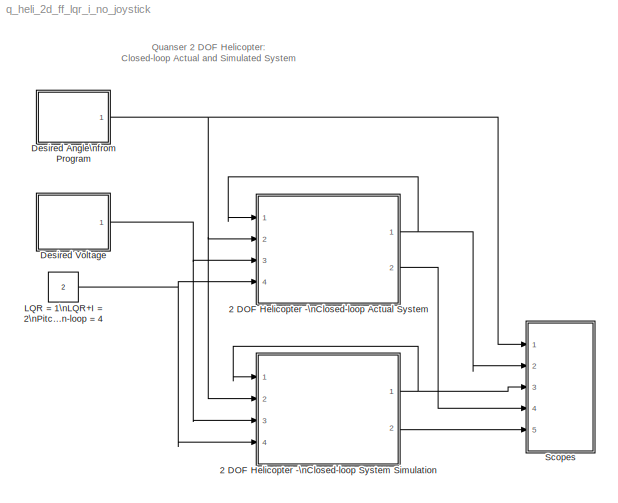
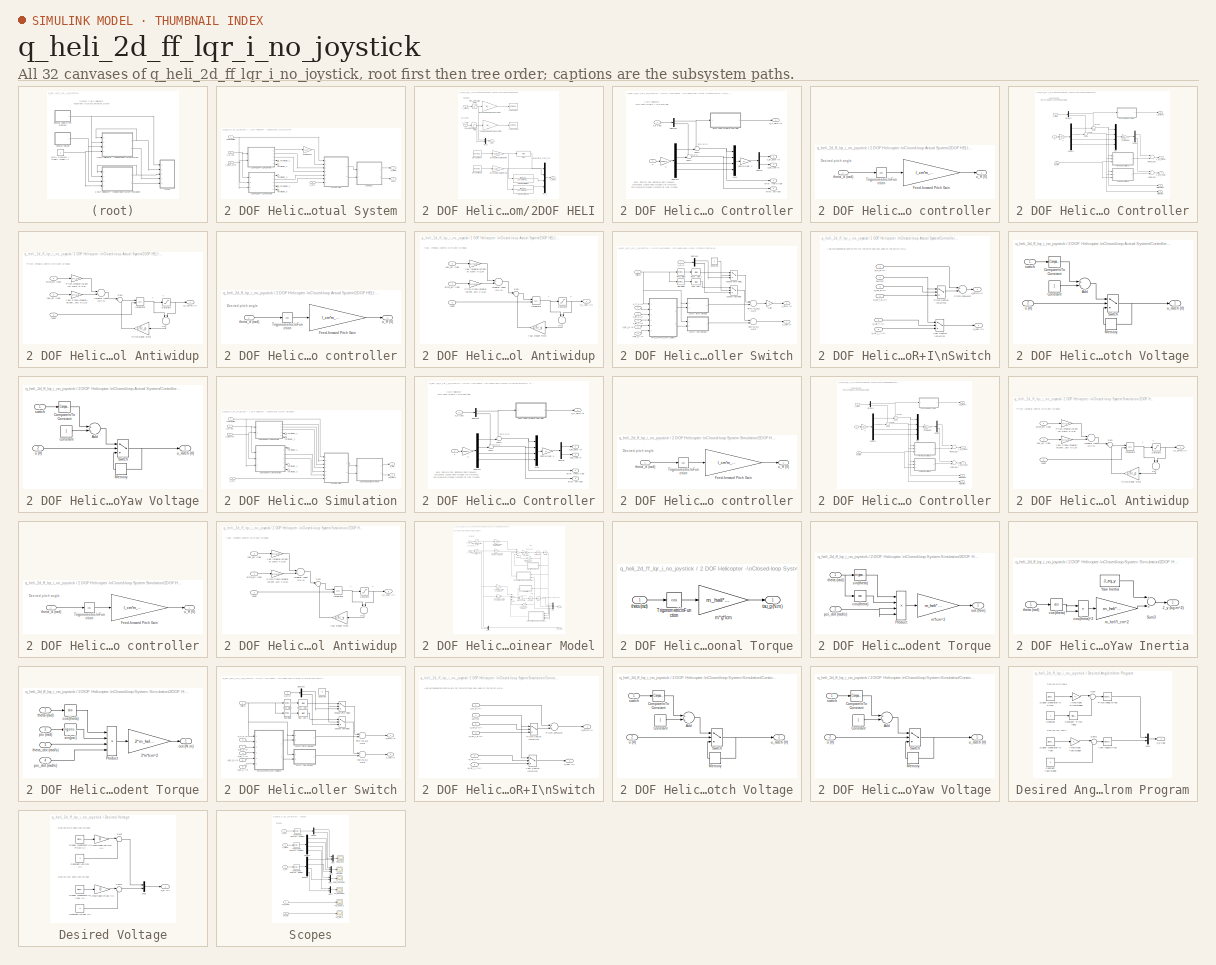
[diagram: thumbnail index - all 32 canvases of the model, root first then tree order]
MODEL q_heli_2d_ff_lqr_i_no_joystick
KIND model
BLOCK [SubSystem] 2 DOF Helicopter -\nClosed-loop Actual System
  Ports = [4, 2]
  RequestExecContextInheritance = off
  SID = 1
  Variant = off
BLOCK [SubSystem] 2 DOF Helicopter -\nClosed-loop Actual System/2DOF HELI
  Ports = [2, 2]
  RequestExecContextInheritance = off
  SID = 6
  Variant = off
BLOCK [Reference] 2 DOF Helicopter -\nClosed-loop Actual System/2DOF HELI/Analog Output  REF=sldrtlib/Analog Output
  AttributesFormatString = Quanser\\nMultiQ-PCI [auto]
  Channels = 1
  DrvAddress = 4294967295
  DrvName = Quanser/MultiQ-PCI
  DrvOptions = zeros(1,0)
  FinalValue = 0
  InitialValue = 0
  MaxMissedTicks = 10
  Ports = [1]
  RangeMode = 1
  SID = 440
  SampleTime = 1e-3
  ShowMissedTicks = off
  SourceBlock = sldrtlib/Analog Output
  SourceType = Simulink Desktop Real-Time Analog Output
  VoltRange = 1
  YieldWhenWaiting = off
BLOCK [Reference] 2 DOF Helicopter -\nClosed-loop Actual System/2DOF HELI/Analog Output1  REF=sldrtlib/Analog Output
  AttributesFormatString = Quanser\\nMultiQ-PCI [auto]
  Channels = 2
  DrvAddress = 4294967295
  DrvName = Quanser/MultiQ-PCI
  DrvOptions = zeros(1,0)
  FinalValue = 0
  InitialValue = 0
  MaxMissedTicks = 10
  Ports = [1]
  RangeMode = 1
  SID = 441
  SampleTime = 1e-3
  ShowMissedTicks = off
  SourceBlock = sldrtlib/Analog Output
  SourceType = Simulink Desktop Real-Time Analog Output
  VoltRange = 1
  YieldWhenWaiting = off
BLOCK [Bias] 2 DOF Helicopter -\nClosed-loop Actual System/2DOF HELI/Bias
  Bias = theta_0
  SID = 10
  SaturateOnIntegerOverflow = off
BLOCK [TransferFcn] 2 DOF Helicopter -\nClosed-loop Actual System/2DOF HELI/Derivative Filter: Pitch
  Denominator = [1 2*zetaf*wcf wcf^2]
  Numerator = [wcf^2 0 ]
  SID = 11
BLOCK [TransferFcn] 2 DOF Helicopter -\nClosed-loop Actual System/2DOF HELI/Derivative Filter: Yaw
  Denominator = [1 2*zetaf*wcf wcf^2]
  Numerator = [wcf^2 0]
  SID = 12
BLOCK [Reference] 2 DOF Helicopter -\nClosed-loop Actual System/2DOF HELI/Encoder Input  REF=sldrtlib/Encoder Input
  AttributesFormatString = Quanser\\nMultiQ-PCI [auto]
  Channels = 1
  DataType = 1
  DrvAddress = 4294967295
  DrvName = Quanser/MultiQ-PCI
  DrvOptions = zeros(1,0)
  IndexPulse = 2
  InputFilter = Inf
  MaxMissedTicks = 10
  Ports = [0, 1]
  QuadMode = 3
  SID = 442
  SampleTime = 1e-3
  ShowMissedTicks = off
  SourceBlock = sldrtlib/Encoder Input
  SourceType = Simulink Desktop Real-Time Encoder Input
  YieldWhenWaiting = off
BLOCK [Reference] 2 DOF Helicopter -\nClosed-loop Actual System/2DOF HELI/Encoder Input1  REF=sldrtlib/Encoder Input
  AttributesFormatString = Quanser\\nMultiQ-PCI [auto]
  Channels = 2
  DataType = 1
  DrvAddress = 4294967295
  DrvName = Quanser/MultiQ-PCI
  DrvOptions = zeros(1,0)
  IndexPulse = 2
  InputFilter = Inf
  MaxMissedTicks = 10
  Ports = [0, 1]
  QuadMode = 3
  SID = 443
  SampleTime = 1e-3
  ShowMissedTicks = off
  SourceBlock = sldrtlib/Encoder Input
  SourceType = Simulink Desktop Real-Time Encoder Input
  YieldWhenWaiting = off
BLOCK [Gain] 2 DOF Helicopter -\nClosed-loop Actual System/2DOF HELI/Encoder Resolution:\nPitch 
  Gain = K_EC_P
  OutDataTypeStr = Inherit: Inherit via internal rule
  ParamDataTypeStr = Inherit: Inherit via internal rule
  SID = 13
  SaturateOnIntegerOverflow = off
BLOCK [Gain] 2 DOF Helicopter -\nClosed-loop Actual System/2DOF HELI/Encoder Resolution:\nYaw
  Gain = K_EC_Y
  OutDataTypeStr = Inherit: Inherit via internal rule
  ParamDataTypeStr = Inherit: Inherit via internal rule
  SID = 14
  SaturateOnIntegerOverflow = off
BLOCK [Mux] 2 DOF Helicopter -\nClosed-loop Actual System/2DOF HELI/Mux1
  DisplayOption = bar
  Ports = [4, 1]
  SID = 19
BLOCK [Mux] 2 DOF Helicopter -\nClosed-loop Actual System/2DOF HELI/Mux2
  DisplayOption = bar
  Inputs = 2
  Ports = [2, 1]
  SID = 20
BLOCK [Saturate] 2 DOF Helicopter -\nClosed-loop Actual System/2DOF HELI/Pitch AMP\nVoltage Limit
  InputPortMap = u0
  LowerLimit = - VMAX_AMP_P
  Ports = [1, 1]
  SID = 21
  UpperLimit = VMAX_AMP_P
BLOCK [Gain] 2 DOF Helicopter -\nClosed-loop Actual System/2DOF HELI/Pitch amp Gain\nPre-Compensation
  Gain = 1 / K_AMP
  SID = 22
BLOCK [Outport] 2 DOF Helicopter -\nClosed-loop Actual System/2DOF HELI/Vm (V)
  IconDisplay = Port number
  Port = 2
  SID = 26
BLOCK [Outport] 2 DOF Helicopter -\nClosed-loop Actual System/2DOF HELI/X_meas
  IconDisplay = Port number
  SID = 25
BLOCK [Saturate] 2 DOF Helicopter -\nClosed-loop Actual System/2DOF HELI/Yaw AMP\nVoltage Limit
  InputPortMap = u0
  LowerLimit = - VMAX_AMP_Y
  Ports = [1, 1]
  SID = 23
  UpperLimit = VMAX_AMP_Y
BLOCK [Gain] 2 DOF Helicopter -\nClosed-loop Actual System/2DOF HELI/Yaw amp Gain\nPre-Compensation
  Gain = 1 / K_AMP
  SID = 24
BLOCK [Inport] 2 DOF Helicopter -\nClosed-loop Actual System/2DOF HELI/u_pitch (V)
  IconDisplay = Port number
  SID = 7
BLOCK [Inport] 2 DOF Helicopter -\nClosed-loop Actual System/2DOF HELI/u_yaw (V)
  IconDisplay = Port number
  Port = 2
  SID = 8
BLOCK [SubSystem] 2 DOF Helicopter -\nClosed-loop Actual System/2DOF HELI:\nFF+LQR Controller
  Ports = [2, 5]
  RequestExecContextInheritance = off
  SID = 27
  Variant = off
BLOCK [Gain] 2 DOF Helicopter -\nClosed-loop Actual System/2DOF HELI:\nFF+LQR Controller/-X
  Gain = -eye(4,4)
  Multiplication = Matrix(K*u)
  OutDataTypeStr = Inherit: Inherit via internal rule
  ParamDataTypeStr = Inherit: Inherit via internal rule
  SID = 30
  SaturateOnIntegerOverflow = off
BLOCK [Gain] 2 DOF Helicopter -\nClosed-loop Actual System/2DOF HELI:\nFF+LQR Controller/Control Gain: K
  Gain = K
  Multiplication = Matrix(K*u)
  OutDataTypeStr = Inherit: Inherit via internal rule
  ParamDataTypeStr = Inherit: Inherit via internal rule
  SID = 31
  SaturateOnIntegerOverflow = off
BLOCK [Demux] 2 DOF Helicopter -\nClosed-loop Actual System/2DOF HELI:\nFF+LQR Controller/Demux
  DisplayOption = bar
  Outputs = 2
  Ports = [1, 2]
  SID = 32
BLOCK [Demux] 2 DOF Helicopter -\nClosed-loop Actual System/2DOF HELI:\nFF+LQR Controller/Demux1
  DisplayOption = bar
  Ports = [1, 4]
  SID = 33
BLOCK [Demux] 2 DOF Helicopter -\nClosed-loop Actual System/2DOF HELI:\nFF+LQR Controller/Demux2
  DisplayOption = bar
  Outputs = 2
  Ports = [1, 2]
  SID = 34
BLOCK [Mux] 2 DOF Helicopter -\nClosed-loop Actual System/2DOF HELI:\nFF+LQR Controller/Mux
  DisplayOption = bar
  Ports = [4, 1]
  SID = 35
BLOCK [SubSystem] 2 DOF Helicopter -\nClosed-loop Actual System/2DOF HELI:\nFF+LQR Controller/Pitch feed-forward controller
  Ports = [1, 1]
  RequestExecContextInheritance = off
  SID = 36
  Variant = off
BLOCK [Gain] 2 DOF Helicopter -\nClosed-loop Actual System/2DOF HELI:\nFF+LQR Controller/Pitch feed-forward controller/Feed-forward Pitch Gain
  Gain = l_cm*m_heli*g / K_pp
  OutDataTypeStr = Inherit: Inherit via internal rule
  ParamDataTypeStr = Inherit: Inherit via internal rule
  SID = 38
  SaturateOnIntegerOverflow = off
BLOCK [Trigonometry] 2 DOF Helicopter -\nClosed-loop Actual System/2DOF HELI:\nFF+LQR Controller/Pitch feed-forward controller/Trigonometric\nFunction
  Operator = cos
  OutputSignalType = real
  Ports = [1, 1]
  SID = 39
BLOCK [Inport] 2 DOF Helicopter -\nClosed-loop Actual System/2DOF HELI:\nFF+LQR Controller/Pitch feed-forward controller/theta_d (rad)
  IconDisplay = Port number
  SID = 37
BLOCK [Outport] 2 DOF Helicopter -\nClosed-loop Actual System/2DOF HELI:\nFF+LQR Controller/Pitch feed-forward controller/u_ff (V)
  IconDisplay = Port number
  SID = 40
BLOCK [Sum] 2 DOF Helicopter -\nClosed-loop Actual System/2DOF HELI:\nFF+LQR Controller/Sum1
  IconShape = round
  InputSameDT = off
  Inputs = ++|
  OutDataTypeStr = Inherit: Inherit via internal rule
  Ports = [2, 1]
  SID = 41
  SaturateOnIntegerOverflow = off
BLOCK [Sum] 2 DOF Helicopter -\nClosed-loop Actual System/2DOF HELI:\nFF+LQR Controller/Sum2
  IconShape = round
  InputSameDT = off
  Inputs = ++|
  OutDataTypeStr = Inherit: Inherit via internal rule
  Ports = [2, 1]
  SID = 42
  SaturateOnIntegerOverflow = off
BLOCK [Inport] 2 DOF Helicopter -\nClosed-loop Actual System/2DOF HELI:\nFF+LQR Controller/X
  IconDisplay = Port number
  Port = 2
  SID = 29
BLOCK [Inport] 2 DOF Helicopter -\nClosed-loop Actual System/2DOF HELI:\nFF+LQR Controller/X_d (rad)
  IconDisplay = Port number
  SID = 28
BLOCK [Outport] 2 DOF Helicopter -\nClosed-loop Actual System/2DOF HELI:\nFF+LQR Controller/error: psi (rad)
  IconDisplay = Port number
  Port = 5
  SID = 47
BLOCK [Outport] 2 DOF Helicopter -\nClosed-loop Actual System/2DOF HELI:\nFF+LQR Controller/error: theta (rad)
  IconDisplay = Port number
  Port = 4
  SID = 46
BLOCK [Outport] 2 DOF Helicopter -\nClosed-loop Actual System/2DOF HELI:\nFF+LQR Controller/u_ff_pitch (V)
  IconDisplay = Port number
  SID = 43
BLOCK [Outport] 2 DOF Helicopter -\nClosed-loop Actual System/2DOF HELI:\nFF+LQR Controller/u_lqr_pitch (V)
  IconDisplay = Port number
  Port = 2
  SID = 44
BLOCK [Outport] 2 DOF Helicopter -\nClosed-loop Actual System/2DOF HELI:\nFF+LQR Controller/u_lqr_yaw (V)
  IconDisplay = Port number
  Port = 3
  SID = 45
BLOCK [SubSystem] 2 DOF Helicopter -\nClosed-loop Actual System/2DOF HELI:\nFF+LQR+I Controller
  Ports = [3, 5]
  RequestExecContextInheritance = off
  SID = 48
  Variant = off
BLOCK [Gain] 2 DOF Helicopter -\nClosed-loop Actual System/2DOF HELI:\nFF+LQR+I Controller/-X
  Gain = -eye(4,4)
  Multiplication = Matrix(K*u)
  OutDataTypeStr = Inherit: Inherit via internal rule
  ParamDataTypeStr = Inherit: Inherit via internal rule
  SID = 52
  SaturateOnIntegerOverflow = off
BLOCK [Gain] 2 DOF Helicopter -\nClosed-loop Actual System/2DOF HELI:\nFF+LQR+I Controller/Control Gain: K
  Gain = Ki(:,1:4)
  Multiplication = Matrix(K*u)
  OutDataTypeStr = Inherit: Inherit via internal rule
  ParamDataTypeStr = Inherit: Inherit via internal rule
  SID = 53
  SaturateOnIntegerOverflow = off
BLOCK [Demux] 2 DOF Helicopter -\nClosed-loop Actual System/2DOF HELI:\nFF+LQR+I Controller/Demux
  DisplayOption = bar
  Outputs = 2
  Ports = [1, 2]
  SID = 54
BLOCK [Demux] 2 DOF Helicopter -\nClosed-loop Actual System/2DOF HELI:\nFF+LQR+I Controller/Demux1
  DisplayOption = bar
  Ports = [1, 4]
  SID = 55
BLOCK [Demux] 2 DOF Helicopter -\nClosed-loop Actual System/2DOF HELI:\nFF+LQR+I Controller/Demux2
  DisplayOption = bar
  Outputs = 2
  Ports = [1, 2]
  SID = 56
BLOCK [Mux] 2 DOF Helicopter -\nClosed-loop Actual System/2DOF HELI:\nFF+LQR+I Controller/Mux
  DisplayOption = bar
  Ports = [4, 1]
  SID = 57
BLOCK [SubSystem] 2 DOF Helicopter -\nClosed-loop Actual System/2DOF HELI:\nFF+LQR+I Controller/Pitch Integral Antiwidup
  Ports = [3, 1]
  RequestExecContextInheritance = off
  SID = 58
  Variant = off
BLOCK [Sum] 2 DOF Helicopter -\nClosed-loop Actual System/2DOF HELI:\nFF+LQR+I Controller/Pitch Integral Antiwidup/Integral Input \n(V//s)
  InputSameDT = off
  OutDataTypeStr = Inherit: Inherit via internal rule
  Ports = [2, 1]
  SID = 62
  SaturateOnIntegerOverflow = off
BLOCK [Integrator] 2 DOF Helicopter -\nClosed-loop Actual System/2DOF HELI:\nFF+LQR+I Controller/Pitch Integral Antiwidup/Integrator
  ExternalReset = rising
  Ports = [2, 1]
  SID = 63
BLOCK [Gain] 2 DOF Helicopter -\nClosed-loop Actual System/2DOF HELI:\nFF+LQR+I Controller/Pitch Integral Antiwidup/Pitch Integral\nControl Gain: K(1,5)
  Gain = Ki(1,5)
  Multiplication = Matrix(K*u)
  OutDataTypeStr = Inherit: Inherit via internal rule
  ParamDataTypeStr = Inherit: Inherit via internal rule
  SID = 64
  SaturateOnIntegerOverflow = off
BLOCK [Gain] 2 DOF Helicopter -\nClosed-loop Actual System/2DOF HELI:\nFF+LQR+I Controller/Pitch Integral Antiwidup/Pitch Reset Time
  Gain = 1/Tr_p
  OutDataTypeStr = Inherit: Inherit via internal rule
  ParamDataTypeStr = Inherit: Inherit via internal rule
  SID = 65
  SaturateOnIntegerOverflow = off
BLOCK [Saturate] 2 DOF Helicopter -\nClosed-loop Actual System/2DOF HELI:\nFF+LQR+I Controller/Pitch Integral Antiwidup/Saturate
  InputPortMap = u0
  LowerLimit = -SAT_INT_ERR_PITCH
  Ports = [1, 1]
  SID = 66
  UpperLimit = SAT_INT_ERR_PITCH
BLOCK [Sum] 2 DOF Helicopter -\nClosed-loop Actual System/2DOF HELI:\nFF+LQR+I Controller/Pitch Integral Antiwidup/Sum
  IconShape = round
  InputSameDT = off
  Inputs = |++
  OutDataTypeStr = Inherit: Inherit via internal rule
  Ports = [2, 1]
  SID = 67
  SaturateOnIntegerOverflow = off
BLOCK [Gain] 2 DOF Helicopter -\nClosed-loop Actual System/2DOF HELI:\nFF+LQR+I Controller/Pitch Integral Antiwidup/Yaw Cross-Integral\nControl Gain: K(1,6)
  Gain = Ki(1,6)
  Multiplication = Matrix(K*u)
  OutDataTypeStr = Inherit: Inherit via internal rule
  ParamDataTypeStr = Inherit: Inherit via internal rule
  SID = 68
  SaturateOnIntegerOverflow = off
BLOCK [Inport] 2 DOF Helicopter -\nClosed-loop Actual System/2DOF HELI:\nFF+LQR+I Controller/Pitch Integral Antiwidup/pitch_err (rad)
  IconDisplay = Port number
  SID = 59
BLOCK [Inport] 2 DOF Helicopter -\nClosed-loop Actual System/2DOF HELI:\nFF+LQR+I Controller/Pitch Integral Antiwidup/reset
  IconDisplay = Port number
  Port = 3
  SID = 61
BLOCK [Sum] 2 DOF Helicopter -\nClosed-loop Actual System/2DOF HELI:\nFF+LQR+I Controller/Pitch Integral Antiwidup/u-v
  InputSameDT = off
  Inputs = -+
  OutDataTypeStr = Inherit: Inherit via internal rule
  Ports = [2, 1]
  SID = 69
  SaturateOnIntegerOverflow = off
BLOCK [Outport] 2 DOF Helicopter -\nClosed-loop Actual System/2DOF HELI:\nFF+LQR+I Controller/Pitch Integral Antiwidup/u_i_pitch (V)
  IconDisplay = Port number
  SID = 70
BLOCK [Inport] 2 DOF Helicopter -\nClosed-loop Actual System/2DOF HELI:\nFF+LQR+I Controller/Pitch Integral Antiwidup/yaw_err (rad)
  IconDisplay = Port number
  Port = 2
  SID = 60
BLOCK [SubSystem] 2 DOF Helicopter -\nClosed-loop Actual System/2DOF HELI:\nFF+LQR+I Controller/Pitch feed-forward controller
  Ports = [1, 1]
  RequestExecContextInheritance = off
  SID = 71
  Variant = off
BLOCK [Gain] 2 DOF Helicopter -\nClosed-loop Actual System/2DOF HELI:\nFF+LQR+I Controller/Pitch feed-forward controller/Feed-forward Pitch Gain
  Gain = l_cm*m_heli*g / K_pp
  OutDataTypeStr = Inherit: Inherit via internal rule
  ParamDataTypeStr = Inherit: Inherit via internal rule
  SID = 73
  SaturateOnIntegerOverflow = off
BLOCK [Trigonometry] 2 DOF Helicopter -\nClosed-loop Actual System/2DOF HELI:\nFF+LQR+I Controller/Pitch feed-forward controller/Trigonometric\nFunction
  Operator = cos
  OutputSignalType = real
  Ports = [1, 1]
  SID = 74
BLOCK [Inport] 2 DOF Helicopter -\nClosed-loop Actual System/2DOF HELI:\nFF+LQR+I Controller/Pitch feed-forward controller/theta_d (rad)
  IconDisplay = Port number
  SID = 72
BLOCK [Outport] 2 DOF Helicopter -\nClosed-loop Actual System/2DOF HELI:\nFF+LQR+I Controller/Pitch feed-forward controller/u_ff (V)
  IconDisplay = Port number
  SID = 75
BLOCK [Sum] 2 DOF Helicopter -\nClosed-loop Actual System/2DOF HELI:\nFF+LQR+I Controller/Pitch:\nLQR+I
  InputSameDT = off
  OutDataTypeStr = Inherit: Inherit via internal rule
  Ports = [2, 1]
  SID = 76
  SaturateOnIntegerOverflow = off
BLOCK [Sum] 2 DOF Helicopter -\nClosed-loop Actual System/2DOF HELI:\nFF+LQR+I Controller/Sum1
  IconShape = round
  InputSameDT = off
  Inputs = ++|
  OutDataTypeStr = Inherit: Inherit via internal rule
  Ports = [2, 1]
  SID = 77
  SaturateOnIntegerOverflow = off
BLOCK [Sum] 2 DOF Helicopter -\nClosed-loop Actual System/2DOF HELI:\nFF+LQR+I Controller/Sum2
  IconShape = round
  InputSameDT = off
  Inputs = ++|
  OutDataTypeStr = Inherit: Inherit via internal rule
  Ports = [2, 1]
  SID = 78
  SaturateOnIntegerOverflow = off
BLOCK [Inport] 2 DOF Helicopter -\nClosed-loop Actual System/2DOF HELI:\nFF+LQR+I Controller/X
  IconDisplay = Port number
  Port = 2
  SID = 50
BLOCK [Inport] 2 DOF Helicopter -\nClosed-loop Actual System/2DOF HELI:\nFF+LQR+I Controller/X_d (rad)
  IconDisplay = Port number
  SID = 49
BLOCK [SubSystem] 2 DOF Helicopter -\nClosed-loop Actual System/2DOF HELI:\nFF+LQR+I Controller/Yaw Integral Antiwidup
  Ports = [3, 1]
  RequestExecContextInheritance = off
  SID = 79
  Variant = off
BLOCK [Sum] 2 DOF Helicopter -\nClosed-loop Actual System/2DOF HELI:\nFF+LQR+I Controller/Yaw Integral Antiwidup/Integral Input \n(V//s)
  InputSameDT = off
  OutDataTypeStr = Inherit: Inherit via internal rule
  Ports = [2, 1]
  SID = 83
  SaturateOnIntegerOverflow = off
BLOCK [Integrator] 2 DOF Helicopter -\nClosed-loop Actual System/2DOF HELI:\nFF+LQR+I Controller/Yaw Integral Antiwidup/Integrator
  ExternalReset = rising
  Ports = [2, 1]
  SID = 84
BLOCK [Gain] 2 DOF Helicopter -\nClosed-loop Actual System/2DOF HELI:\nFF+LQR+I Controller/Yaw Integral Antiwidup/Pitch Cross-Integral\nControl Gain: K(2,5)
  Gain = Ki(2,5)
  Multiplication = Matrix(K*u)
  OutDataTypeStr = Inherit: Inherit via internal rule
  ParamDataTypeStr = Inherit: Inherit via internal rule
  SID = 85
  SaturateOnIntegerOverflow = off
BLOCK [Saturate] 2 DOF Helicopter -\nClosed-loop Actual System/2DOF HELI:\nFF+LQR+I Controller/Yaw Integral Antiwidup/Saturate
  InputPortMap = u0
  LowerLimit = -SAT_INT_ERR_YAW
  Ports = [1, 1]
  SID = 86
  UpperLimit = SAT_INT_ERR_YAW
BLOCK [Sum] 2 DOF Helicopter -\nClosed-loop Actual System/2DOF HELI:\nFF+LQR+I Controller/Yaw Integral Antiwidup/Sum
  IconShape = round
  InputSameDT = off
  Inputs = |++
  OutDataTypeStr = Inherit: Inherit via internal rule
  Ports = [2, 1]
  SID = 87
  SaturateOnIntegerOverflow = off
BLOCK [Gain] 2 DOF Helicopter -\nClosed-loop Actual System/2DOF HELI:\nFF+LQR+I Controller/Yaw Integral Antiwidup/Yaw Integral\nControl Gain: K(2,6)
  Gain = Ki(2,6)
  Multiplication = Matrix(K*u)
  OutDataTypeStr = Inherit: Inherit via internal rule
  ParamDataTypeStr = Inherit: Inherit via internal rule
  SID = 88
  SaturateOnIntegerOverflow = off
BLOCK [Gain] 2 DOF Helicopter -\nClosed-loop Actual System/2DOF HELI:\nFF+LQR+I Controller/Yaw Integral Antiwidup/Yaw Reset Time
  Gain = 1/Tr_y
  OutDataTypeStr = Inherit: Inherit via internal rule
  ParamDataTypeStr = Inherit: Inherit via internal rule
  SID = 89
  SaturateOnIntegerOverflow = off
BLOCK [Inport] 2 DOF Helicopter -\nClosed-loop Actual System/2DOF HELI:\nFF+LQR+I Controller/Yaw Integral Antiwidup/pitch_err (rad)
  IconDisplay = Port number
  SID = 80
BLOCK [Inport] 2 DOF Helicopter -\nClosed-loop Actual System/2DOF HELI:\nFF+LQR+I Controller/Yaw Integral Antiwidup/reset
  IconDisplay = Port number
  Port = 3
  SID = 82
BLOCK [Sum] 2 DOF Helicopter -\nClosed-loop Actual System/2DOF HELI:\nFF+LQR+I Controller/Yaw Integral Antiwidup/u-v
  InputSameDT = off
  Inputs = -+
  OutDataTypeStr = Inherit: Inherit via internal rule
  Ports = [2, 1]
  SID = 90
  SaturateOnIntegerOverflow = off
BLOCK [Outport] 2 DOF Helicopter -\nClosed-loop Actual System/2DOF HELI:\nFF+LQR+I Controller/Yaw Integral Antiwidup/u_i_yaw (V)
  IconDisplay = Port number
  SID = 91
BLOCK [Inport] 2 DOF Helicopter -\nClosed-loop Actual System/2DOF HELI:\nFF+LQR+I Controller/Yaw Integral Antiwidup/yaw_err (rad)
  IconDisplay = Port number
  Port = 2
  SID = 81
BLOCK [Sum] 2 DOF Helicopter -\nClosed-loop Actual System/2DOF HELI:\nFF+LQR+I Controller/Yaw:\nLQR+I
  InputSameDT = off
  OutDataTypeStr = Inherit: Inherit via internal rule
  Ports = [2, 1]
  SID = 92
  SaturateOnIntegerOverflow = off
BLOCK [Outport] 2 DOF Helicopter -\nClosed-loop Actual System/2DOF HELI:\nFF+LQR+I Controller/error: psi (rad)
  IconDisplay = Port number
  Port = 5
  SID = 97
BLOCK [Outport] 2 DOF Helicopter -\nClosed-loop Actual System/2DOF HELI:\nFF+LQR+I Controller/error: theta (rad)
  IconDisplay = Port number
  Port = 4
  SID = 96
BLOCK [Inport] 2 DOF Helicopter -\nClosed-loop Actual System/2DOF HELI:\nFF+LQR+I Controller/reset int
  IconDisplay = Port number
  Port = 3
  SID = 51
BLOCK [Outport] 2 DOF Helicopter -\nClosed-loop Actual System/2DOF HELI:\nFF+LQR+I Controller/u_ff_pitch (V)
  IconDisplay = Port number
  SID = 93
BLOCK [Outport] 2 DOF Helicopter -\nClosed-loop Actual System/2DOF HELI:\nFF+LQR+I Controller/u_lqr_i_pitch (V)
  IconDisplay = Port number
  Port = 2
  SID = 94
BLOCK [Outport] 2 DOF Helicopter -\nClosed-loop Actual System/2DOF HELI:\nFF+LQR+I Controller/u_lqr_i_yaw (V)
  IconDisplay = Port number
  Port = 3
  SID = 95
BLOCK [Inport] 2 DOF Helicopter -\nClosed-loop Actual System/Control Switch
  IconDisplay = Port number
  Port = 4
  SID = 5
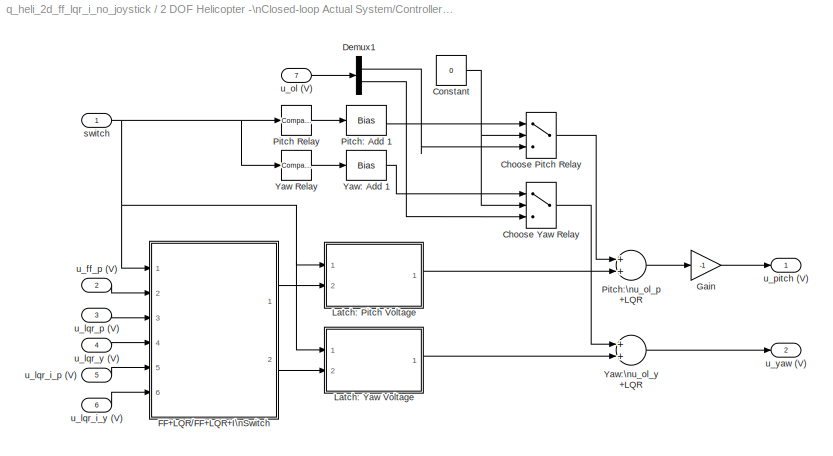
BLOCK [SubSystem] 2 DOF Helicopter -\nClosed-loop Actual System/Controller Switch
  Ports = [7, 2]
  RequestExecContextInheritance = off
  SID = 98
  Variant = off
BLOCK [MultiPortSwitch] 2 DOF Helicopter -\nClosed-loop Actual System/Controller Switch/Choose Pitch Relay
  InputSameDT = off
  Inputs = 2
  Ports = [3, 1]
  SID = 106
  SaturateOnIntegerOverflow = off
BLOCK [MultiPortSwitch] 2 DOF Helicopter -\nClosed-loop Actual System/Controller Switch/Choose Yaw Relay
  InputSameDT = off
  Inputs = 2
  Ports = [3, 1]
  SID = 107
  SaturateOnIntegerOverflow = off
BLOCK [Constant] 2 DOF Helicopter -\nClosed-loop Actual System/Controller Switch/Constant
  SID = 108
  Value = 0
BLOCK [Demux] 2 DOF Helicopter -\nClosed-loop Actual System/Controller Switch/Demux1
  DisplayOption = bar
  Outputs = 2
  Ports = [1, 2]
  SID = 109
BLOCK [SubSystem] 2 DOF Helicopter -\nClosed-loop Actual System/Controller Switch/FF+LQR//FF+LQR+I\nSwitch
  Ports = [6, 2]
  RequestExecContextInheritance = off
  SID = 110
  Variant = off
BLOCK [MultiPortSwitch] 2 DOF Helicopter -\nClosed-loop Actual System/Controller Switch/FF+LQR//FF+LQR+I\nSwitch/Pitch Control \nSwitch
  InputSameDT = off
  Inputs = 2
  Ports = [3, 1]
  SID = 117
  SaturateOnIntegerOverflow = off
BLOCK [Sum] 2 DOF Helicopter -\nClosed-loop Actual System/Controller Switch/FF+LQR//FF+LQR+I\nSwitch/Pitch:\nFF+LQR
  InputSameDT = off
  OutDataTypeStr = Inherit: Inherit via internal rule
  Ports = [2, 1]
  SID = 118
  SaturateOnIntegerOverflow = off
BLOCK [MultiPortSwitch] 2 DOF Helicopter -\nClosed-loop Actual System/Controller Switch/FF+LQR//FF+LQR+I\nSwitch/Yaw Control \nSwitch
  InputSameDT = off
  Inputs = 2
  Ports = [3, 1]
  SID = 119
  SaturateOnIntegerOverflow = off
BLOCK [Inport] 2 DOF Helicopter -\nClosed-loop Actual System/Controller Switch/FF+LQR//FF+LQR+I\nSwitch/switch
  IconDisplay = Port number
  SID = 111
BLOCK [Inport] 2 DOF Helicopter -\nClosed-loop Actual System/Controller Switch/FF+LQR//FF+LQR+I\nSwitch/u_ff_p (V)
  IconDisplay = Port number
  Port = 2
  SID = 112
BLOCK [Inport] 2 DOF Helicopter -\nClosed-loop Actual System/Controller Switch/FF+LQR//FF+LQR+I\nSwitch/u_lqr_i_p (V)
  IconDisplay = Port number
  Port = 5
  SID = 115
BLOCK [Inport] 2 DOF Helicopter -\nClosed-loop Actual System/Controller Switch/FF+LQR//FF+LQR+I\nSwitch/u_lqr_i_y (V)
  IconDisplay = Port number
  Port = 6
  SID = 116
BLOCK [Inport] 2 DOF Helicopter -\nClosed-loop Actual System/Controller Switch/FF+LQR//FF+LQR+I\nSwitch/u_lqr_p (V)
  IconDisplay = Port number
  Port = 3
  SID = 113
BLOCK [Inport] 2 DOF Helicopter -\nClosed-loop Actual System/Controller Switch/FF+LQR//FF+LQR+I\nSwitch/u_lqr_y (V)
  IconDisplay = Port number
  Port = 4
  SID = 114
BLOCK [Outport] 2 DOF Helicopter -\nClosed-loop Actual System/Controller Switch/FF+LQR//FF+LQR+I\nSwitch/u_pitch (V)
  IconDisplay = Port number
  SID = 120
BLOCK [Outport] 2 DOF Helicopter -\nClosed-loop Actual System/Controller Switch/FF+LQR//FF+LQR+I\nSwitch/u_yaw (V)
  IconDisplay = Port number
  Port = 2
  SID = 121
BLOCK [Gain] 2 DOF Helicopter -\nClosed-loop Actual System/Controller Switch/Gain
  Gain = -1
  OutDataTypeStr = Inherit: Inherit via internal rule
  ParamDataTypeStr = Inherit: Inherit via internal rule
  SID = 444
  SaturateOnIntegerOverflow = off
BLOCK [SubSystem] 2 DOF Helicopter -\nClosed-loop Actual System/Controller Switch/Latch: Pitch Voltage
  Ports = [2, 1]
  RequestExecContextInheritance = off
  SID = 122
  Variant = off
BLOCK [Sum] 2 DOF Helicopter -\nClosed-loop Actual System/Controller Switch/Latch: Pitch Voltage/Add
  InputSameDT = off
  OutDataTypeStr = Inherit: Inherit via internal rule
  Ports = [2, 1]
  SID = 125
  SaturateOnIntegerOverflow = off
BLOCK [Reference] 2 DOF Helicopter -\nClosed-loop Actual System/Controller Switch/Latch: Pitch Voltage/Compare\nTo Constant  REF=simulink/Logic and Bit\nOperations/Compare\nTo Constant
  OutDataTypeStr = uint8
  Ports = [1, 1]
  SID = 126
  SourceBlock = simulink/Logic and Bit\nOperations/Compare\nTo Constant
  SourceType = Compare To Constant
  ZeroCross = off
  const = 3.0
  relop = >=
BLOCK [Constant] 2 DOF Helicopter -\nClosed-loop Actual System/Controller Switch/Latch: Pitch Voltage/Constant
  SID = 127
BLOCK [Memory] 2 DOF Helicopter -\nClosed-loop Actual System/Controller Switch/Latch: Pitch Voltage/Memory
  SID = 128
BLOCK [MultiPortSwitch] 2 DOF Helicopter -\nClosed-loop Actual System/Controller Switch/Latch: Pitch Voltage/Switch
  InputSameDT = off
  Inputs = 2
  Ports = [3, 1]
  SID = 129
  SaturateOnIntegerOverflow = off
BLOCK [Inport] 2 DOF Helicopter -\nClosed-loop Actual System/Controller Switch/Latch: Pitch Voltage/switch
  IconDisplay = Port number
  SID = 123
BLOCK [Inport] 2 DOF Helicopter -\nClosed-loop Actual System/Controller Switch/Latch: Pitch Voltage/u (V)
  IconDisplay = Port number
  Port = 2
  SID = 124
BLOCK [Outport] 2 DOF Helicopter -\nClosed-loop Actual System/Controller Switch/Latch: Pitch Voltage/u_latch (V)
  IconDisplay = Port number
  SID = 130
BLOCK [SubSystem] 2 DOF Helicopter -\nClosed-loop Actual System/Controller Switch/Latch: Yaw Voltage
  Ports = [2, 1]
  RequestExecContextInheritance = off
  SID = 131
  Variant = off
BLOCK [Sum] 2 DOF Helicopter -\nClosed-loop Actual System/Controller Switch/Latch: Yaw Voltage/Add
  InputSameDT = off
  OutDataTypeStr = Inherit: Inherit via internal rule
  Ports = [2, 1]
  SID = 134
  SaturateOnIntegerOverflow = off
BLOCK [Reference] 2 DOF Helicopter -\nClosed-loop Actual System/Controller Switch/Latch: Yaw Voltage/Compare\nTo Constant  REF=simulink/Logic and Bit\nOperations/Compare\nTo Constant
  OutDataTypeStr = uint8
  Ports = [1, 1]
  SID = 135
  SourceBlock = simulink/Logic and Bit\nOperations/Compare\nTo Constant
  SourceType = Compare To Constant
  ZeroCross = off
  const = 3.0
  relop = >=
BLOCK [Constant] 2 DOF Helicopter -\nClosed-loop Actual System/Controller Switch/Latch: Yaw Voltage/Constant
  SID = 136
BLOCK [Memory] 2 DOF Helicopter -\nClosed-loop Actual System/Controller Switch/Latch: Yaw Voltage/Memory
  SID = 137
BLOCK [MultiPortSwitch] 2 DOF Helicopter -\nClosed-loop Actual System/Controller Switch/Latch: Yaw Voltage/Switch
  InputSameDT = off
  Inputs = 2
  Ports = [3, 1]
  SID = 138
  SaturateOnIntegerOverflow = off
BLOCK [Inport] 2 DOF Helicopter -\nClosed-loop Actual System/Controller Switch/Latch: Yaw Voltage/switch
  IconDisplay = Port number
  SID = 132
BLOCK [Inport] 2 DOF Helicopter -\nClosed-loop Actual System/Controller Switch/Latch: Yaw Voltage/u (V)
  IconDisplay = Port number
  Port = 2
  SID = 133
BLOCK [Outport] 2 DOF Helicopter -\nClosed-loop Actual System/Controller Switch/Latch: Yaw Voltage/u_latch (V)
  IconDisplay = Port number
  SID = 139
BLOCK [Reference] 2 DOF Helicopter -\nClosed-loop Actual System/Controller Switch/Pitch Relay  REF=simulink/Logic and Bit\nOperations/Compare\nTo Constant
  OutDataTypeStr = uint8
  Ports = [1, 1]
  SID = 140
  SourceBlock = simulink/Logic and Bit\nOperations/Compare\nTo Constant
  SourceType = Compare To Constant
  ZeroCross = off
  const = 3.0
  relop = ==
BLOCK [Bias] 2 DOF Helicopter -\nClosed-loop Actual System/Controller Switch/Pitch: Add 1
  Bias = 1
  SID = 142
  SaturateOnIntegerOverflow = off
BLOCK [Sum] 2 DOF Helicopter -\nClosed-loop Actual System/Controller Switch/Pitch:\nu_ol_p +LQR
  InputSameDT = off
  OutDataTypeStr = Inherit: Inherit via internal rule
  Ports = [2, 1]
  SID = 141
  SaturateOnIntegerOverflow = off
BLOCK [Reference] 2 DOF Helicopter -\nClosed-loop Actual System/Controller Switch/Yaw Relay  REF=simulink/Logic and Bit\nOperations/Compare\nTo Constant
  OutDataTypeStr = uint8
  Ports = [1, 1]
  SID = 143
  SourceBlock = simulink/Logic and Bit\nOperations/Compare\nTo Constant
  SourceType = Compare To Constant
  ZeroCross = off
  const = 4
  relop = ==
BLOCK [Bias] 2 DOF Helicopter -\nClosed-loop Actual System/Controller Switch/Yaw: Add 1
  Bias = 1
  SID = 145
  SaturateOnIntegerOverflow = off
BLOCK [Sum] 2 DOF Helicopter -\nClosed-loop Actual System/Controller Switch/Yaw:\nu_ol_y +LQR
  InputSameDT = off
  OutDataTypeStr = Inherit: Inherit via internal rule
  Ports = [2, 1]
  SID = 144
  SaturateOnIntegerOverflow = off
BLOCK [Inport] 2 DOF Helicopter -\nClosed-loop Actual System/Controller Switch/switch
  IconDisplay = Port number
  SID = 99
BLOCK [Inport] 2 DOF Helicopter -\nClosed-loop Actual System/Controller Switch/u_ff_p (V)
  IconDisplay = Port number
  Port = 2
  SID = 100
BLOCK [Inport] 2 DOF Helicopter -\nClosed-loop Actual System/Controller Switch/u_lqr_i_p (V)
  IconDisplay = Port number
  Port = 5
  SID = 103
BLOCK [Inport] 2 DOF Helicopter -\nClosed-loop Actual System/Controller Switch/u_lqr_i_y (V)
  IconDisplay = Port number
  Port = 6
  SID = 104
BLOCK [Inport] 2 DOF Helicopter -\nClosed-loop Actual System/Controller Switch/u_lqr_p (V)
  IconDisplay = Port number
  Port = 3
  SID = 101
BLOCK [Inport] 2 DOF Helicopter -\nClosed-loop Actual System/Controller Switch/u_lqr_y (V)
  IconDisplay = Port number
  Port = 4
  SID = 102
BLOCK [Inport] 2 DOF Helicopter -\nClosed-loop Actual System/Controller Switch/u_ol (V)
  IconDisplay = Port number
  Port = 7
  SID = 105
BLOCK [Outport] 2 DOF Helicopter -\nClosed-loop Actual System/Controller Switch/u_pitch (V)
  IconDisplay = Port number
  SID = 146
BLOCK [Outport] 2 DOF Helicopter -\nClosed-loop Actual System/Controller Switch/u_yaw (V)
  IconDisplay = Port number
  Port = 2
  SID = 147
BLOCK [Gain] 2 DOF Helicopter -\nClosed-loop Actual System/FF Gain\nAdj.
  Gain = K_ff
  OutDataTypeStr = Inherit: Inherit via internal rule
  ParamDataTypeStr = Inherit: Inherit via internal rule
  SID = 148
  SaturateOnIntegerOverflow = off
BLOCK [Terminator] 2 DOF Helicopter -\nClosed-loop Actual System/Terminator_1
  SID = 149
BLOCK [Terminator] 2 DOF Helicopter -\nClosed-loop Actual System/Terminator_2
  SID = 150
BLOCK [Terminator] 2 DOF Helicopter -\nClosed-loop Actual System/Terminator_3
  SID = 151
BLOCK [Terminator] 2 DOF Helicopter -\nClosed-loop Actual System/Terminator_4
  SID = 152
BLOCK [Terminator] 2 DOF Helicopter -\nClosed-loop Actual System/Terminator_5
  SID = 153
BLOCK [Outport] 2 DOF Helicopter -\nClosed-loop Actual System/Vm (V)
  IconDisplay = Port number
  Port = 2
  SID = 155
BLOCK [Outport] 2 DOF Helicopter -\nClosed-loop Actual System/X_Meas
  IconDisplay = Port number
  SID = 154
BLOCK [Inport] 2 DOF Helicopter -\nClosed-loop Actual System/X_meas_prev
  IconDisplay = Port number
  SID = 2
BLOCK [Inport] 2 DOF Helicopter -\nClosed-loop Actual System/u_ol (V)
  IconDisplay = Port number
  Port = 3
  SID = 4
BLOCK [Inport] 2 DOF Helicopter -\nClosed-loop Actual System/x_d (rad)
  IconDisplay = Port number
  Port = 2
  SID = 3
BLOCK [SubSystem] 2 DOF Helicopter -\nClosed-loop System Simulation
  Ports = [4, 2]
  RequestExecContextInheritance = off
  SID = 156
  Variant = off
BLOCK [SubSystem] 2 DOF Helicopter -\nClosed-loop System Simulation/2DOF HELI:\nFF+LQR Controller
  Ports = [2, 5]
  RequestExecContextInheritance = off
  SID = 161
  Variant = off
BLOCK [Gain] 2 DOF Helicopter -\nClosed-loop System Simulation/2DOF HELI:\nFF+LQR Controller/-X
  Gain = -eye(4,4)
  Multiplication = Matrix(K*u)
  OutDataTypeStr = Inherit: Inherit via internal rule
  ParamDataTypeStr = Inherit: Inherit via internal rule
  SID = 164
  SaturateOnIntegerOverflow = off
BLOCK [Gain] 2 DOF Helicopter -\nClosed-loop System Simulation/2DOF HELI:\nFF+LQR Controller/Control Gain: K
  Gain = K
  Multiplication = Matrix(K*u)
  OutDataTypeStr = Inherit: Inherit via internal rule
  ParamDataTypeStr = Inherit: Inherit via internal rule
  SID = 165
  SaturateOnIntegerOverflow = off
BLOCK [Demux] 2 DOF Helicopter -\nClosed-loop System Simulation/2DOF HELI:\nFF+LQR Controller/Demux
  DisplayOption = bar
  Outputs = 2
  Ports = [1, 2]
  SID = 166
BLOCK [Demux] 2 DOF Helicopter -\nClosed-loop System Simulation/2DOF HELI:\nFF+LQR Controller/Demux1
  DisplayOption = bar
  Ports = [1, 4]
  SID = 167
BLOCK [Demux] 2 DOF Helicopter -\nClosed-loop System Simulation/2DOF HELI:\nFF+LQR Controller/Demux2
  DisplayOption = bar
  Outputs = 2
  Ports = [1, 2]
  SID = 168
BLOCK [Mux] 2 DOF Helicopter -\nClosed-loop System Simulation/2DOF HELI:\nFF+LQR Controller/Mux
  DisplayOption = bar
  Ports = [4, 1]
  SID = 169
BLOCK [SubSystem] 2 DOF Helicopter -\nClosed-loop System Simulation/2DOF HELI:\nFF+LQR Controller/Pitch feed-forward controller
  Ports = [1, 1]
  RequestExecContextInheritance = off
  SID = 170
  Variant = off
BLOCK [Gain] 2 DOF Helicopter -\nClosed-loop System Simulation/2DOF HELI:\nFF+LQR Controller/Pitch feed-forward controller/Feed-forward Pitch Gain
  Gain = l_cm*m_heli*g / K_pp
  OutDataTypeStr = Inherit: Inherit via internal rule
  ParamDataTypeStr = Inherit: Inherit via internal rule
  SID = 172
  SaturateOnIntegerOverflow = off
BLOCK [Trigonometry] 2 DOF Helicopter -\nClosed-loop System Simulation/2DOF HELI:\nFF+LQR Controller/Pitch feed-forward controller/Trigonometric\nFunction
  Operator = cos
  OutputSignalType = real
  Ports = [1, 1]
  SID = 173
BLOCK [Inport] 2 DOF Helicopter -\nClosed-loop System Simulation/2DOF HELI:\nFF+LQR Controller/Pitch feed-forward controller/theta_d (rad)
  IconDisplay = Port number
  SID = 171
BLOCK [Outport] 2 DOF Helicopter -\nClosed-loop System Simulation/2DOF HELI:\nFF+LQR Controller/Pitch feed-forward controller/u_ff (V)
  IconDisplay = Port number
  SID = 174
BLOCK [Sum] 2 DOF Helicopter -\nClosed-loop System Simulation/2DOF HELI:\nFF+LQR Controller/Sum1
  IconShape = round
  InputSameDT = off
  Inputs = ++|
  OutDataTypeStr = Inherit: Inherit via internal rule
  Ports = [2, 1]
  SID = 175
  SaturateOnIntegerOverflow = off
BLOCK [Sum] 2 DOF Helicopter -\nClosed-loop System Simulation/2DOF HELI:\nFF+LQR Controller/Sum2
  IconShape = round
  InputSameDT = off
  Inputs = ++|
  OutDataTypeStr = Inherit: Inherit via internal rule
  Ports = [2, 1]
  SID = 176
  SaturateOnIntegerOverflow = off
BLOCK [Inport] 2 DOF Helicopter -\nClosed-loop System Simulation/2DOF HELI:\nFF+LQR Controller/X
  IconDisplay = Port number
  Port = 2
  SID = 163
BLOCK [Inport] 2 DOF Helicopter -\nClosed-loop System Simulation/2DOF HELI:\nFF+LQR Controller/X_d (rad)
  IconDisplay = Port number
  SID = 162
BLOCK [Outport] 2 DOF Helicopter -\nClosed-loop System Simulation/2DOF HELI:\nFF+LQR Controller/error: psi (rad)
  IconDisplay = Port number
  Port = 5
  SID = 181
BLOCK [Outport] 2 DOF Helicopter -\nClosed-loop System Simulation/2DOF HELI:\nFF+LQR Controller/error: theta (rad)
  IconDisplay = Port number
  Port = 4
  SID = 180
BLOCK [Outport] 2 DOF Helicopter -\nClosed-loop System Simulation/2DOF HELI:\nFF+LQR Controller/u_ff_pitch (V)
  IconDisplay = Port number
  SID = 177
BLOCK [Outport] 2 DOF Helicopter -\nClosed-loop System Simulation/2DOF HELI:\nFF+LQR Controller/u_lqr_pitch (V)
  IconDisplay = Port number
  Port = 2
  SID = 178
BLOCK [Outport] 2 DOF Helicopter -\nClosed-loop System Simulation/2DOF HELI:\nFF+LQR Controller/u_lqr_yaw (V)
  IconDisplay = Port number
  Port = 3
  SID = 179
BLOCK [SubSystem] 2 DOF Helicopter -\nClosed-loop System Simulation/2DOF HELI:\nFF+LQR+I Controller
  Ports = [3, 5]
  RequestExecContextInheritance = off
  SID = 182
  Variant = off
BLOCK [Gain] 2 DOF Helicopter -\nClosed-loop System Simulation/2DOF HELI:\nFF+LQR+I Controller/-X
  Gain = -eye(4,4)
  Multiplication = Matrix(K*u)
  OutDataTypeStr = Inherit: Inherit via internal rule
  ParamDataTypeStr = Inherit: Inherit via internal rule
  SID = 186
  SaturateOnIntegerOverflow = off
BLOCK [Gain] 2 DOF Helicopter -\nClosed-loop System Simulation/2DOF HELI:\nFF+LQR+I Controller/Control Gain: K
  Gain = Ki(:,1:4)
  Multiplication = Matrix(K*u)
  OutDataTypeStr = Inherit: Inherit via internal rule
  ParamDataTypeStr = Inherit: Inherit via internal rule
  SID = 187
  SaturateOnIntegerOverflow = off
BLOCK [Demux] 2 DOF Helicopter -\nClosed-loop System Simulation/2DOF HELI:\nFF+LQR+I Controller/Demux
  DisplayOption = bar
  Outputs = 2
  Ports = [1, 2]
  SID = 188
BLOCK [Demux] 2 DOF Helicopter -\nClosed-loop System Simulation/2DOF HELI:\nFF+LQR+I Controller/Demux1
  DisplayOption = bar
  Ports = [1, 4]
  SID = 189
BLOCK [Demux] 2 DOF Helicopter -\nClosed-loop System Simulation/2DOF HELI:\nFF+LQR+I Controller/Demux2
  DisplayOption = bar
  Outputs = 2
  Ports = [1, 2]
  SID = 190
BLOCK [Mux] 2 DOF Helicopter -\nClosed-loop System Simulation/2DOF HELI:\nFF+LQR+I Controller/Mux
  DisplayOption = bar
  Ports = [4, 1]
  SID = 191
BLOCK [SubSystem] 2 DOF Helicopter -\nClosed-loop System Simulation/2DOF HELI:\nFF+LQR+I Controller/Pitch Integral Antiwidup
  Ports = [3, 1]
  RequestExecContextInheritance = off
  SID = 192
  Variant = off
BLOCK [Sum] 2 DOF Helicopter -\nClosed-loop System Simulation/2DOF HELI:\nFF+LQR+I Controller/Pitch Integral Antiwidup/Integral Input \n(V//s)
  InputSameDT = off
  OutDataTypeStr = Inherit: Inherit via internal rule
  Ports = [2, 1]
  SID = 196
  SaturateOnIntegerOverflow = off
BLOCK [Integrator] 2 DOF Helicopter -\nClosed-loop System Simulation/2DOF HELI:\nFF+LQR+I Controller/Pitch Integral Antiwidup/Integrator
  ExternalReset = rising
  Ports = [2, 1]
  SID = 197
BLOCK [Gain] 2 DOF Helicopter -\nClosed-loop System Simulation/2DOF HELI:\nFF+LQR+I Controller/Pitch Integral Antiwidup/Pitch Integral\nControl Gain: K(1,5)
  Gain = Ki(1,5)
  Multiplication = Matrix(K*u)
  OutDataTypeStr = Inherit: Inherit via internal rule
  ParamDataTypeStr = Inherit: Inherit via internal rule
  SID = 198
  SaturateOnIntegerOverflow = off
BLOCK [Gain] 2 DOF Helicopter -\nClosed-loop System Simulation/2DOF HELI:\nFF+LQR+I Controller/Pitch Integral Antiwidup/Pitch Reset Time
  Gain = 1/Tr_p
  OutDataTypeStr = Inherit: Inherit via internal rule
  ParamDataTypeStr = Inherit: Inherit via internal rule
  SID = 199
  SaturateOnIntegerOverflow = off
BLOCK [Saturate] 2 DOF Helicopter -\nClosed-loop System Simulation/2DOF HELI:\nFF+LQR+I Controller/Pitch Integral Antiwidup/Saturate
  InputPortMap = u0
  LowerLimit = -SAT_INT_ERR_PITCH
  Ports = [1, 1]
  SID = 200
  UpperLimit = SAT_INT_ERR_PITCH
BLOCK [Sum] 2 DOF Helicopter -\nClosed-loop System Simulation/2DOF HELI:\nFF+LQR+I Controller/Pitch Integral Antiwidup/Sum
  IconShape = round
  InputSameDT = off
  Inputs = |++
  OutDataTypeStr = Inherit: Inherit via internal rule
  Ports = [2, 1]
  SID = 201
  SaturateOnIntegerOverflow = off
BLOCK [Gain] 2 DOF Helicopter -\nClosed-loop System Simulation/2DOF HELI:\nFF+LQR+I Controller/Pitch Integral Antiwidup/Yaw Cross-Integral\nControl Gain: K(1,6)
  Gain = Ki(1,6)
  Multiplication = Matrix(K*u)
  OutDataTypeStr = Inherit: Inherit via internal rule
  ParamDataTypeStr = Inherit: Inherit via internal rule
  SID = 202
  SaturateOnIntegerOverflow = off
BLOCK [Inport] 2 DOF Helicopter -\nClosed-loop System Simulation/2DOF HELI:\nFF+LQR+I Controller/Pitch Integral Antiwidup/pitch_err (rad)
  IconDisplay = Port number
  SID = 193
BLOCK [Inport] 2 DOF Helicopter -\nClosed-loop System Simulation/2DOF HELI:\nFF+LQR+I Controller/Pitch Integral Antiwidup/reset
  IconDisplay = Port number
  Port = 3
  SID = 195
BLOCK [Sum] 2 DOF Helicopter -\nClosed-loop System Simulation/2DOF HELI:\nFF+LQR+I Controller/Pitch Integral Antiwidup/u-v
  InputSameDT = off
  Inputs = -+
  OutDataTypeStr = Inherit: Inherit via internal rule
  Ports = [2, 1]
  SID = 203
  SaturateOnIntegerOverflow = off
BLOCK [Outport] 2 DOF Helicopter -\nClosed-loop System Simulation/2DOF HELI:\nFF+LQR+I Controller/Pitch Integral Antiwidup/u_i_pitch (V)
  IconDisplay = Port number
  SID = 204
BLOCK [Inport] 2 DOF Helicopter -\nClosed-loop System Simulation/2DOF HELI:\nFF+LQR+I Controller/Pitch Integral Antiwidup/yaw_err (rad)
  IconDisplay = Port number
  Port = 2
  SID = 194
BLOCK [SubSystem] 2 DOF Helicopter -\nClosed-loop System Simulation/2DOF HELI:\nFF+LQR+I Controller/Pitch feed-forward controller
  Ports = [1, 1]
  RequestExecContextInheritance = off
  SID = 205
  Variant = off
BLOCK [Gain] 2 DOF Helicopter -\nClosed-loop System Simulation/2DOF HELI:\nFF+LQR+I Controller/Pitch feed-forward controller/Feed-forward Pitch Gain
  Gain = l_cm*m_heli*g / K_pp
  OutDataTypeStr = Inherit: Inherit via internal rule
  ParamDataTypeStr = Inherit: Inherit via internal rule
  SID = 207
  SaturateOnIntegerOverflow = off
BLOCK [Trigonometry] 2 DOF Helicopter -\nClosed-loop System Simulation/2DOF HELI:\nFF+LQR+I Controller/Pitch feed-forward controller/Trigonometric\nFunction
  Operator = cos
  OutputSignalType = real
  Ports = [1, 1]
  SID = 208
BLOCK [Inport] 2 DOF Helicopter -\nClosed-loop System Simulation/2DOF HELI:\nFF+LQR+I Controller/Pitch feed-forward controller/theta_d (rad)
  IconDisplay = Port number
  SID = 206
BLOCK [Outport] 2 DOF Helicopter -\nClosed-loop System Simulation/2DOF HELI:\nFF+LQR+I Controller/Pitch feed-forward controller/u_ff (V)
  IconDisplay = Port number
  SID = 209
BLOCK [Sum] 2 DOF Helicopter -\nClosed-loop System Simulation/2DOF HELI:\nFF+LQR+I Controller/Pitch:\nLQR+I
  InputSameDT = off
  OutDataTypeStr = Inherit: Inherit via internal rule
  Ports = [2, 1]
  SID = 210
  SaturateOnIntegerOverflow = off
BLOCK [Sum] 2 DOF Helicopter -\nClosed-loop System Simulation/2DOF HELI:\nFF+LQR+I Controller/Sum1
  IconShape = round
  InputSameDT = off
  Inputs = ++|
  OutDataTypeStr = Inherit: Inherit via internal rule
  Ports = [2, 1]
  SID = 211
  SaturateOnIntegerOverflow = off
BLOCK [Sum] 2 DOF Helicopter -\nClosed-loop System Simulation/2DOF HELI:\nFF+LQR+I Controller/Sum2
  IconShape = round
  InputSameDT = off
  Inputs = ++|
  OutDataTypeStr = Inherit: Inherit via internal rule
  Ports = [2, 1]
  SID = 212
  SaturateOnIntegerOverflow = off
BLOCK [Inport] 2 DOF Helicopter -\nClosed-loop System Simulation/2DOF HELI:\nFF+LQR+I Controller/X
  IconDisplay = Port number
  Port = 2
  SID = 184
BLOCK [Inport] 2 DOF Helicopter -\nClosed-loop System Simulation/2DOF HELI:\nFF+LQR+I Controller/X_d (rad)
  IconDisplay = Port number
  SID = 183
BLOCK [SubSystem] 2 DOF Helicopter -\nClosed-loop System Simulation/2DOF HELI:\nFF+LQR+I Controller/Yaw Integral Antiwidup
  Ports = [3, 1]
  RequestExecContextInheritance = off
  SID = 213
  Variant = off
BLOCK [Sum] 2 DOF Helicopter -\nClosed-loop System Simulation/2DOF HELI:\nFF+LQR+I Controller/Yaw Integral Antiwidup/Integral Input \n(V//s)
  InputSameDT = off
  OutDataTypeStr = Inherit: Inherit via internal rule
  Ports = [2, 1]
  SID = 217
  SaturateOnIntegerOverflow = off
BLOCK [Integrator] 2 DOF Helicopter -\nClosed-loop System Simulation/2DOF HELI:\nFF+LQR+I Controller/Yaw Integral Antiwidup/Integrator
  ExternalReset = rising
  Ports = [2, 1]
  SID = 218
BLOCK [Gain] 2 DOF Helicopter -\nClosed-loop System Simulation/2DOF HELI:\nFF+LQR+I Controller/Yaw Integral Antiwidup/Pitch Cross-Integral\nControl Gain: K(2,5)
  Gain = Ki(2,5)
  Multiplication = Matrix(K*u)
  OutDataTypeStr = Inherit: Inherit via internal rule
  ParamDataTypeStr = Inherit: Inherit via internal rule
  SID = 219
  SaturateOnIntegerOverflow = off
BLOCK [Saturate] 2 DOF Helicopter -\nClosed-loop System Simulation/2DOF HELI:\nFF+LQR+I Controller/Yaw Integral Antiwidup/Saturate
  InputPortMap = u0
  LowerLimit = -SAT_INT_ERR_YAW
  Ports = [1, 1]
  SID = 220
  UpperLimit = SAT_INT_ERR_YAW
BLOCK [Sum] 2 DOF Helicopter -\nClosed-loop System Simulation/2DOF HELI:\nFF+LQR+I Controller/Yaw Integral Antiwidup/Sum
  IconShape = round
  InputSameDT = off
  Inputs = |++
  OutDataTypeStr = Inherit: Inherit via internal rule
  Ports = [2, 1]
  SID = 221
  SaturateOnIntegerOverflow = off
BLOCK [Gain] 2 DOF Helicopter -\nClosed-loop System Simulation/2DOF HELI:\nFF+LQR+I Controller/Yaw Integral Antiwidup/Yaw Integral\nControl Gain: K(2,6)
  Gain = Ki(2,6)
  Multiplication = Matrix(K*u)
  OutDataTypeStr = Inherit: Inherit via internal rule
  ParamDataTypeStr = Inherit: Inherit via internal rule
  SID = 222
  SaturateOnIntegerOverflow = off
BLOCK [Gain] 2 DOF Helicopter -\nClosed-loop System Simulation/2DOF HELI:\nFF+LQR+I Controller/Yaw Integral Antiwidup/Yaw Reset Time
  Gain = 1/Tr_y
  OutDataTypeStr = Inherit: Inherit via internal rule
  ParamDataTypeStr = Inherit: Inherit via internal rule
  SID = 223
  SaturateOnIntegerOverflow = off
BLOCK [Inport] 2 DOF Helicopter -\nClosed-loop System Simulation/2DOF HELI:\nFF+LQR+I Controller/Yaw Integral Antiwidup/pitch_err (rad)
  IconDisplay = Port number
  SID = 214
BLOCK [Inport] 2 DOF Helicopter -\nClosed-loop System Simulation/2DOF HELI:\nFF+LQR+I Controller/Yaw Integral Antiwidup/reset
  IconDisplay = Port number
  Port = 3
  SID = 216
BLOCK [Sum] 2 DOF Helicopter -\nClosed-loop System Simulation/2DOF HELI:\nFF+LQR+I Controller/Yaw Integral Antiwidup/u-v
  InputSameDT = off
  Inputs = -+
  OutDataTypeStr = Inherit: Inherit via internal rule
  Ports = [2, 1]
  SID = 224
  SaturateOnIntegerOverflow = off
BLOCK [Outport] 2 DOF Helicopter -\nClosed-loop System Simulation/2DOF HELI:\nFF+LQR+I Controller/Yaw Integral Antiwidup/u_i_yaw (V)
  IconDisplay = Port number
  SID = 225
BLOCK [Inport] 2 DOF Helicopter -\nClosed-loop System Simulation/2DOF HELI:\nFF+LQR+I Controller/Yaw Integral Antiwidup/yaw_err (rad)
  IconDisplay = Port number
  Port = 2
  SID = 215
BLOCK [Sum] 2 DOF Helicopter -\nClosed-loop System Simulation/2DOF HELI:\nFF+LQR+I Controller/Yaw:\nLQR+I
  InputSameDT = off
  OutDataTypeStr = Inherit: Inherit via internal rule
  Ports = [2, 1]
  SID = 226
  SaturateOnIntegerOverflow = off
BLOCK [Outport] 2 DOF Helicopter -\nClosed-loop System Simulation/2DOF HELI:\nFF+LQR+I Controller/error: psi (rad)
  IconDisplay = Port number
  Port = 5
  SID = 231
BLOCK [Outport] 2 DOF Helicopter -\nClosed-loop System Simulation/2DOF HELI:\nFF+LQR+I Controller/error: theta (rad)
  IconDisplay = Port number
  Port = 4
  SID = 230
BLOCK [Inport] 2 DOF Helicopter -\nClosed-loop System Simulation/2DOF HELI:\nFF+LQR+I Controller/reset int
  IconDisplay = Port number
  Port = 3
  SID = 185
BLOCK [Outport] 2 DOF Helicopter -\nClosed-loop System Simulation/2DOF HELI:\nFF+LQR+I Controller/u_ff_pitch (V)
  IconDisplay = Port number
  SID = 227
BLOCK [Outport] 2 DOF Helicopter -\nClosed-loop System Simulation/2DOF HELI:\nFF+LQR+I Controller/u_lqr_i_pitch (V)
  IconDisplay = Port number
  Port = 2
  SID = 228
BLOCK [Outport] 2 DOF Helicopter -\nClosed-loop System Simulation/2DOF HELI:\nFF+LQR+I Controller/u_lqr_i_yaw (V)
  IconDisplay = Port number
  Port = 3
  SID = 229
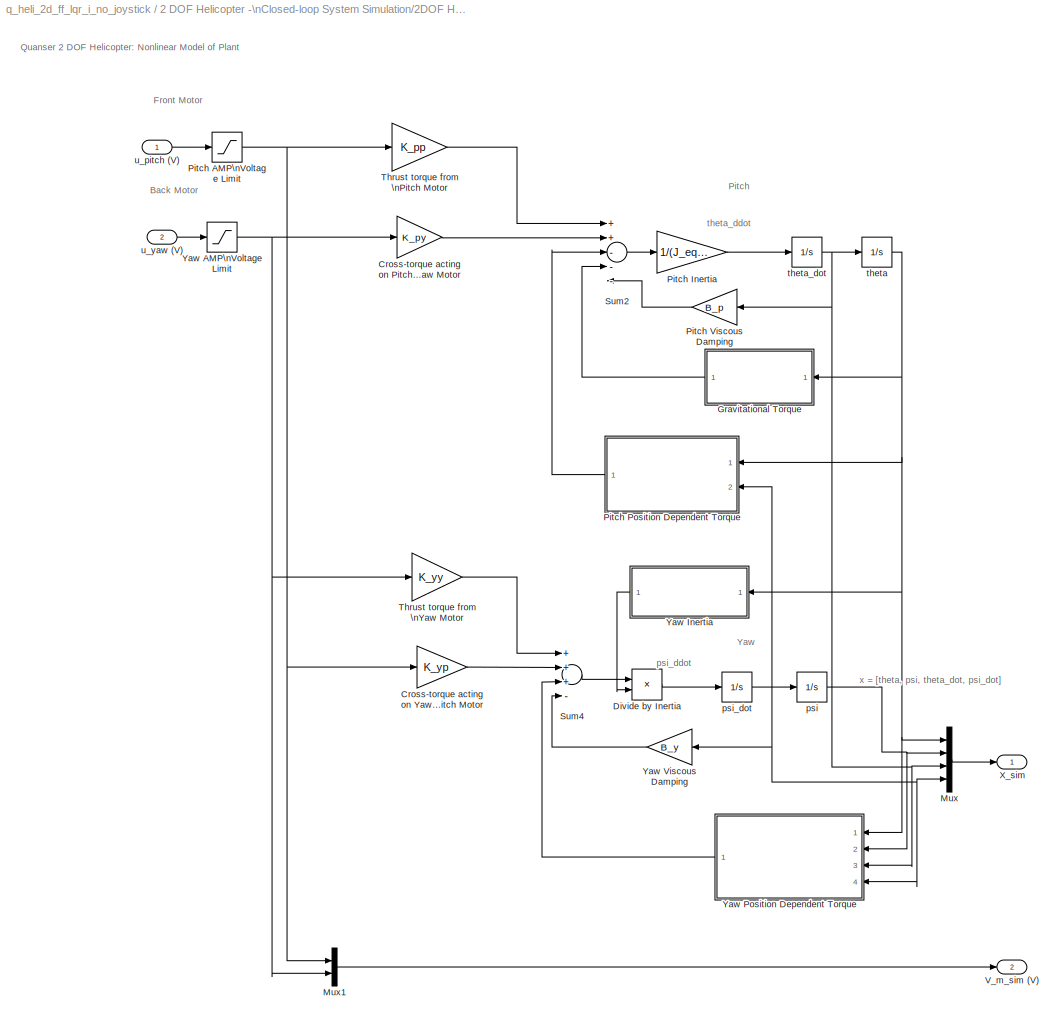
BLOCK [SubSystem] 2 DOF Helicopter -\nClosed-loop System Simulation/2DOF HELI:\nNonlinear Model
  Ports = [2, 2]
  RequestExecContextInheritance = off
  SID = 232
  Variant = off
BLOCK [Gain] 2 DOF Helicopter -\nClosed-loop System Simulation/2DOF HELI:\nNonlinear Model/Cross-torque acting on Pitch \nfrom Yaw Motor
  Gain = K_py
  OutDataTypeStr = Inherit: Inherit via internal rule
  ParamDataTypeStr = Inherit: Inherit via internal rule
  SID = 235
  SaturateOnIntegerOverflow = off
BLOCK [Gain] 2 DOF Helicopter -\nClosed-loop System Simulation/2DOF HELI:\nNonlinear Model/Cross-torque acting on Yaw \nfrom Pitch Motor
  Gain = K_yp
  OutDataTypeStr = Inherit: Inherit via internal rule
  ParamDataTypeStr = Inherit: Inherit via internal rule
  SID = 236
  SaturateOnIntegerOverflow = off
BLOCK [Product] 2 DOF Helicopter -\nClosed-loop System Simulation/2DOF HELI:\nNonlinear Model/Divide by Inertia
  InputSameDT = off
  Inputs = */
  OutDataTypeStr = Inherit: Inherit via internal rule
  Ports = [2, 1]
  RndMeth = Floor
  SID = 237
  SaturateOnIntegerOverflow = off
BLOCK [SubSystem] 2 DOF Helicopter -\nClosed-loop System Simulation/2DOF HELI:\nNonlinear Model/Gravitational Torque
  Ports = [1, 1]
  RequestExecContextInheritance = off
  SID = 238
  Variant = off
BLOCK [Trigonometry] 2 DOF Helicopter -\nClosed-loop System Simulation/2DOF HELI:\nNonlinear Model/Gravitational Torque/Trigonometric\nFunction
  Operator = cos
  OutputSignalType = real
  Ports = [1, 1]
  SID = 240
BLOCK [Gain] 2 DOF Helicopter -\nClosed-loop System Simulation/2DOF HELI:\nNonlinear Model/Gravitational Torque/m*g*lcm
  Gain = m_heli*g*l_cm
  OutDataTypeStr = Inherit: Inherit via internal rule
  ParamDataTypeStr = Inherit: Inherit via internal rule
  SID = 241
  SaturateOnIntegerOverflow = off
BLOCK [Outport] 2 DOF Helicopter -\nClosed-loop System Simulation/2DOF HELI:\nNonlinear Model/Gravitational Torque/tau_g (N.m)
  IconDisplay = Port number
  SID = 242
BLOCK [Inport] 2 DOF Helicopter -\nClosed-loop System Simulation/2DOF HELI:\nNonlinear Model/Gravitational Torque/theta (rad)
  IconDisplay = Port number
  SID = 239
BLOCK [Mux] 2 DOF Helicopter -\nClosed-loop System Simulation/2DOF HELI:\nNonlinear Model/Mux
  DisplayOption = bar
  Ports = [4, 1]
  SID = 243
BLOCK [Mux] 2 DOF Helicopter -\nClosed-loop System Simulation/2DOF HELI:\nNonlinear Model/Mux1
  DisplayOption = bar
  Inputs = 2
  Ports = [2, 1]
  SID = 244
BLOCK [Saturate] 2 DOF Helicopter -\nClosed-loop System Simulation/2DOF HELI:\nNonlinear Model/Pitch AMP\nVoltage Limit
  InputPortMap = u0
  LowerLimit = - VMAX_AMP_P
  Ports = [1, 1]
  SID = 245
  UpperLimit = VMAX_AMP_P
BLOCK [Gain] 2 DOF Helicopter -\nClosed-loop System Simulation/2DOF HELI:\nNonlinear Model/Pitch Inertia
  Gain = 1/(J_eq_p+m_heli*l_cm^2)
  OutDataTypeStr = Inherit: Inherit via internal rule
  ParamDataTypeStr = Inherit: Inherit via internal rule
  SID = 246
  SaturateOnIntegerOverflow = off
BLOCK [SubSystem] 2 DOF Helicopter -\nClosed-loop System Simulation/2DOF HELI:\nNonlinear Model/Pitch Position Dependent Torque
  Ports = [2, 1]
  RequestExecContextInheritance = off
  SID = 247
  Variant = off
BLOCK [Product] 2 DOF Helicopter -\nClosed-loop System Simulation/2DOF HELI:\nNonlinear Model/Pitch Position Dependent Torque/Product
  InputSameDT = off
  Inputs = 4
  OutDataTypeStr = Inherit: Inherit via internal rule
  Ports = [4, 1]
  SID = 250
  SaturateOnIntegerOverflow = off
BLOCK [Trigonometry] 2 DOF Helicopter -\nClosed-loop System Simulation/2DOF HELI:\nNonlinear Model/Pitch Position Dependent Torque/cos(theta)
  Operator = cos
  OutputSignalType = real
  Ports = [1, 1]
  SID = 251
BLOCK [Gain] 2 DOF Helicopter -\nClosed-loop System Simulation/2DOF HELI:\nNonlinear Model/Pitch Position Dependent Torque/m*lcm^2
  Gain = m_heli*l_cm^2
  OutDataTypeStr = Inherit: Inherit via internal rule
  ParamDataTypeStr = Inherit: Inherit via internal rule
  SID = 252
  SaturateOnIntegerOverflow = off
BLOCK [Outport] 2 DOF Helicopter -\nClosed-loop System Simulation/2DOF HELI:\nNonlinear Model/Pitch Position Dependent Torque/out (N.m)
  IconDisplay = Port number
  SID = 254
BLOCK [Inport] 2 DOF Helicopter -\nClosed-loop System Simulation/2DOF HELI:\nNonlinear Model/Pitch Position Dependent Torque/psi_dot (rad//s)
  IconDisplay = Port number
  Port = 2
  SID = 249
BLOCK [Trigonometry] 2 DOF Helicopter -\nClosed-loop System Simulation/2DOF HELI:\nNonlinear Model/Pitch Position Dependent Torque/sin(theta)
  OutputSignalType = real
  Ports = [1, 1]
  SID = 253
BLOCK [Inport] 2 DOF Helicopter -\nClosed-loop System Simulation/2DOF HELI:\nNonlinear Model/Pitch Position Dependent Torque/theta (rad)
  IconDisplay = Port number
  SID = 248
BLOCK [Gain] 2 DOF Helicopter -\nClosed-loop System Simulation/2DOF HELI:\nNonlinear Model/Pitch Viscous Damping
  Gain = B_p
  OutDataTypeStr = Inherit: Inherit via internal rule
  ParamDataTypeStr = Inherit: Inherit via internal rule
  SID = 255
  SaturateOnIntegerOverflow = off
BLOCK [Sum] 2 DOF Helicopter -\nClosed-loop System Simulation/2DOF HELI:\nNonlinear Model/Sum2
  InputSameDT = off
  Inputs = ++---
  OutDataTypeStr = Inherit: Inherit via internal rule
  Ports = [5, 1]
  SID = 256
  SaturateOnIntegerOverflow = off
BLOCK [Sum] 2 DOF Helicopter -\nClosed-loop System Simulation/2DOF HELI:\nNonlinear Model/Sum4
  InputSameDT = off
  Inputs = +++-
  OutDataTypeStr = Inherit: Inherit via internal rule
  Ports = [4, 1]
  SID = 257
  SaturateOnIntegerOverflow = off
BLOCK [Gain] 2 DOF Helicopter -\nClosed-loop System Simulation/2DOF HELI:\nNonlinear Model/Thrust torque from \nPitch Motor
  Gain = K_pp
  OutDataTypeStr = Inherit: Inherit via internal rule
  ParamDataTypeStr = Inherit: Inherit via internal rule
  SID = 258
  SaturateOnIntegerOverflow = off
BLOCK [Gain] 2 DOF Helicopter -\nClosed-loop System Simulation/2DOF HELI:\nNonlinear Model/Thrust torque from \nYaw Motor
  Gain = K_yy
  OutDataTypeStr = Inherit: Inherit via internal rule
  ParamDataTypeStr = Inherit: Inherit via internal rule
  SID = 259
  SaturateOnIntegerOverflow = off
BLOCK [Outport] 2 DOF Helicopter -\nClosed-loop System Simulation/2DOF HELI:\nNonlinear Model/V_m_sim (V)
  IconDisplay = Port number
  Port = 2
  SID = 285
BLOCK [Outport] 2 DOF Helicopter -\nClosed-loop System Simulation/2DOF HELI:\nNonlinear Model/X_sim
  IconDisplay = Port number
  SID = 284
BLOCK [Saturate] 2 DOF Helicopter -\nClosed-loop System Simulation/2DOF HELI:\nNonlinear Model/Yaw AMP\nVoltage Limit
  InputPortMap = u0
  LowerLimit = - VMAX_AMP_Y
  Ports = [1, 1]
  SID = 260
  UpperLimit = VMAX_AMP_Y
BLOCK [SubSystem] 2 DOF Helicopter -\nClosed-loop System Simulation/2DOF HELI:\nNonlinear Model/Yaw Inertia
  Ports = [1, 1]
  RequestExecContextInheritance = off
  SID = 261
  Variant = off
BLOCK [Outport] 2 DOF Helicopter -\nClosed-loop System Simulation/2DOF HELI:\nNonlinear Model/Yaw Inertia/J_y (kg.m^2)
  IconDisplay = Port number
  SID = 268
BLOCK [Sum] 2 DOF Helicopter -\nClosed-loop System Simulation/2DOF HELI:\nNonlinear Model/Yaw Inertia/Sum3
  InputSameDT = off
  OutDataTypeStr = Inherit: Inherit via internal rule
  Ports = [2, 1]
  SID = 263
  SaturateOnIntegerOverflow = off
BLOCK [Constant] 2 DOF Helicopter -\nClosed-loop System Simulation/2DOF HELI:\nNonlinear Model/Yaw Inertia/Yaw Inertia
  SID = 264
  Value = J_eq_y
BLOCK [Trigonometry] 2 DOF Helicopter -\nClosed-loop System Simulation/2DOF HELI:\nNonlinear Model/Yaw Inertia/cos(theta)
  Operator = cos
  OutputSignalType = real
  Ports = [1, 1]
  SID = 265
BLOCK [Product] 2 DOF Helicopter -\nClosed-loop System Simulation/2DOF HELI:\nNonlinear Model/Yaw Inertia/cos(theta)^2
  InputSameDT = off
  OutDataTypeStr = Inherit: Inherit via internal rule
  Ports = [2, 1]
  SID = 266
  SaturateOnIntegerOverflow = off
BLOCK [Gain] 2 DOF Helicopter -\nClosed-loop System Simulation/2DOF HELI:\nNonlinear Model/Yaw Inertia/m_heli*l_cm^2
  Gain = m_heli*l_cm^2
  OutDataTypeStr = Inherit: Inherit via internal rule
  ParamDataTypeStr = Inherit: Inherit via internal rule
  SID = 267
  SaturateOnIntegerOverflow = off
BLOCK [Inport] 2 DOF Helicopter -\nClosed-loop System Simulation/2DOF HELI:\nNonlinear Model/Yaw Inertia/theta (rad)
  IconDisplay = Port number
  SID = 262
BLOCK [SubSystem] 2 DOF Helicopter -\nClosed-loop System Simulation/2DOF HELI:\nNonlinear Model/Yaw Position Dependent Torque
  Ports = [4, 1]
  RequestExecContextInheritance = off
  SID = 269
  Variant = off
BLOCK [Gain] 2 DOF Helicopter -\nClosed-loop System Simulation/2DOF HELI:\nNonlinear Model/Yaw Position Dependent Torque/2*m*lcm^2
  Gain = 2*m_heli*l_cm^2
  OutDataTypeStr = Inherit: Inherit via internal rule
  ParamDataTypeStr = Inherit: Inherit via internal rule
  SID = 274
  SaturateOnIntegerOverflow = off
BLOCK [Product] 2 DOF Helicopter -\nClosed-loop System Simulation/2DOF HELI:\nNonlinear Model/Yaw Position Dependent Torque/Product
  InputSameDT = off
  Inputs = 4
  OutDataTypeStr = Inherit: Inherit via internal rule
  Ports = [4, 1]
  SID = 275
  SaturateOnIntegerOverflow = off
BLOCK [Trigonometry] 2 DOF Helicopter -\nClosed-loop System Simulation/2DOF HELI:\nNonlinear Model/Yaw Position Dependent Torque/cos(theta)
  Operator = cos
  OutputSignalType = real
  Ports = [1, 1]
  SID = 276
BLOCK [Outport] 2 DOF Helicopter -\nClosed-loop System Simulation/2DOF HELI:\nNonlinear Model/Yaw Position Dependent Torque/out (N.m)
  IconDisplay = Port number
  SID = 278
BLOCK [Inport] 2 DOF Helicopter -\nClosed-loop System Simulation/2DOF HELI:\nNonlinear Model/Yaw Position Dependent Torque/psi (rad)
  IconDisplay = Port number
  Port = 2
  SID = 271
BLOCK [Inport] 2 DOF Helicopter -\nClosed-loop System Simulation/2DOF HELI:\nNonlinear Model/Yaw Position Dependent Torque/psi_dot (rad//s)
  IconDisplay = Port number
  Port = 4
  SID = 273
BLOCK [Trigonometry] 2 DOF Helicopter -\nClosed-loop System Simulation/2DOF HELI:\nNonlinear Model/Yaw Position Dependent Torque/sin(psi)
  OutputSignalType = real
  Ports = [1, 1]
  SID = 277
BLOCK [Inport] 2 DOF Helicopter -\nClosed-loop System Simulation/2DOF HELI:\nNonlinear Model/Yaw Position Dependent Torque/theta (rad)
  IconDisplay = Port number
  SID = 270
BLOCK [Inport] 2 DOF Helicopter -\nClosed-loop System Simulation/2DOF HELI:\nNonlinear Model/Yaw Position Dependent Torque/theta_dot (rad//s)
  IconDisplay = Port number
  Port = 3
  SID = 272
BLOCK [Gain] 2 DOF Helicopter -\nClosed-loop System Simulation/2DOF HELI:\nNonlinear Model/Yaw Viscous Damping
  Gain = B_y
  OutDataTypeStr = Inherit: Inherit via internal rule
  ParamDataTypeStr = Inherit: Inherit via internal rule
  SID = 279
  SaturateOnIntegerOverflow = off
BLOCK [Integrator] 2 DOF Helicopter -\nClosed-loop System Simulation/2DOF HELI:\nNonlinear Model/psi
  Ports = [1, 1]
  SID = 280
BLOCK [Integrator] 2 DOF Helicopter -\nClosed-loop System Simulation/2DOF HELI:\nNonlinear Model/psi_dot
  Ports = [1, 1]
  SID = 281
BLOCK [Integrator] 2 DOF Helicopter -\nClosed-loop System Simulation/2DOF HELI:\nNonlinear Model/theta
  InitialCondition = theta_0
  LimitOutput = on
  LowerSaturationLimit = theta_0
  Ports = [1, 1]
  SID = 282
  UpperSaturationLimit = -theta_0
BLOCK [Integrator] 2 DOF Helicopter -\nClosed-loop System Simulation/2DOF HELI:\nNonlinear Model/theta_dot
  Ports = [1, 1]
  SID = 283
BLOCK [Inport] 2 DOF Helicopter -\nClosed-loop System Simulation/2DOF HELI:\nNonlinear Model/u_pitch (V)
  IconDisplay = Port number
  SID = 233
BLOCK [Inport] 2 DOF Helicopter -\nClosed-loop System Simulation/2DOF HELI:\nNonlinear Model/u_yaw (V)
  IconDisplay = Port number
  Port = 2
  SID = 234
BLOCK [SubSystem] 2 DOF Helicopter -\nClosed-loop System Simulation/Controller Switch
  Ports = [7, 2]
  RequestExecContextInheritance = off
  SID = 286
  Variant = off
BLOCK [MultiPortSwitch] 2 DOF Helicopter -\nClosed-loop System Simulation/Controller Switch/Choose Pitch Relay
  InputSameDT = off
  Inputs = 2
  Ports = [3, 1]
  SID = 294
  SaturateOnIntegerOverflow = off
BLOCK [MultiPortSwitch] 2 DOF Helicopter -\nClosed-loop System Simulation/Controller Switch/Choose Yaw Relay
  InputSameDT = off
  Inputs = 2
  Ports = [3, 1]
  SID = 295
  SaturateOnIntegerOverflow = off
BLOCK [Constant] 2 DOF Helicopter -\nClosed-loop System Simulation/Controller Switch/Constant
  SID = 296
  Value = 0
BLOCK [Demux] 2 DOF Helicopter -\nClosed-loop System Simulation/Controller Switch/Demux1
  DisplayOption = bar
  Outputs = 2
  Ports = [1, 2]
  SID = 297
BLOCK [SubSystem] 2 DOF Helicopter -\nClosed-loop System Simulation/Controller Switch/FF+LQR//FF+LQR+I\nSwitch
  Ports = [6, 2]
  RequestExecContextInheritance = off
  SID = 298
  Variant = off
BLOCK [MultiPortSwitch] 2 DOF Helicopter -\nClosed-loop System Simulation/Controller Switch/FF+LQR//FF+LQR+I\nSwitch/Pitch Control \nSwitch
  InputSameDT = off
  Inputs = 2
  Ports = [3, 1]
  SID = 305
  SaturateOnIntegerOverflow = off
BLOCK [Sum] 2 DOF Helicopter -\nClosed-loop System Simulation/Controller Switch/FF+LQR//FF+LQR+I\nSwitch/Pitch:\nFF+LQR
  InputSameDT = off
  OutDataTypeStr = Inherit: Inherit via internal rule
  Ports = [2, 1]
  SID = 306
  SaturateOnIntegerOverflow = off
BLOCK [MultiPortSwitch] 2 DOF Helicopter -\nClosed-loop System Simulation/Controller Switch/FF+LQR//FF+LQR+I\nSwitch/Yaw Control \nSwitch
  InputSameDT = off
  Inputs = 2
  Ports = [3, 1]
  SID = 307
  SaturateOnIntegerOverflow = off
BLOCK [Inport] 2 DOF Helicopter -\nClosed-loop System Simulation/Controller Switch/FF+LQR//FF+LQR+I\nSwitch/switch
  IconDisplay = Port number
  SID = 299
BLOCK [Inport] 2 DOF Helicopter -\nClosed-loop System Simulation/Controller Switch/FF+LQR//FF+LQR+I\nSwitch/u_ff_p (V)
  IconDisplay = Port number
  Port = 2
  SID = 300
BLOCK [Inport] 2 DOF Helicopter -\nClosed-loop System Simulation/Controller Switch/FF+LQR//FF+LQR+I\nSwitch/u_lqr_i_p (V)
  IconDisplay = Port number
  Port = 5
  SID = 303
BLOCK [Inport] 2 DOF Helicopter -\nClosed-loop System Simulation/Controller Switch/FF+LQR//FF+LQR+I\nSwitch/u_lqr_i_y (V)
  IconDisplay = Port number
  Port = 6
  SID = 304
BLOCK [Inport] 2 DOF Helicopter -\nClosed-loop System Simulation/Controller Switch/FF+LQR//FF+LQR+I\nSwitch/u_lqr_p (V)
  IconDisplay = Port number
  Port = 3
  SID = 301
BLOCK [Inport] 2 DOF Helicopter -\nClosed-loop System Simulation/Controller Switch/FF+LQR//FF+LQR+I\nSwitch/u_lqr_y (V)
  IconDisplay = Port number
  Port = 4
  SID = 302
BLOCK [Outport] 2 DOF Helicopter -\nClosed-loop System Simulation/Controller Switch/FF+LQR//FF+LQR+I\nSwitch/u_pitch (V)
  IconDisplay = Port number
  SID = 308
BLOCK [Outport] 2 DOF Helicopter -\nClosed-loop System Simulation/Controller Switch/FF+LQR//FF+LQR+I\nSwitch/u_yaw (V)
  IconDisplay = Port number
  Port = 2
  SID = 309
BLOCK [SubSystem] 2 DOF Helicopter -\nClosed-loop System Simulation/Controller Switch/Latch: Pitch Voltage
  Ports = [2, 1]
  RequestExecContextInheritance = off
  SID = 310
  Variant = off
BLOCK [Sum] 2 DOF Helicopter -\nClosed-loop System Simulation/Controller Switch/Latch: Pitch Voltage/Add
  InputSameDT = off
  OutDataTypeStr = Inherit: Inherit via internal rule
  Ports = [2, 1]
  SID = 313
  SaturateOnIntegerOverflow = off
BLOCK [Reference] 2 DOF Helicopter -\nClosed-loop System Simulation/Controller Switch/Latch: Pitch Voltage/Compare\nTo Constant  REF=simulink/Logic and Bit\nOperations/Compare\nTo Constant
  OutDataTypeStr = uint8
  Ports = [1, 1]
  SID = 314
  SourceBlock = simulink/Logic and Bit\nOperations/Compare\nTo Constant
  SourceType = Compare To Constant
  ZeroCross = off
  const = 3.0
  relop = >=
BLOCK [Constant] 2 DOF Helicopter -\nClosed-loop System Simulation/Controller Switch/Latch: Pitch Voltage/Constant
  SID = 315
BLOCK [Memory] 2 DOF Helicopter -\nClosed-loop System Simulation/Controller Switch/Latch: Pitch Voltage/Memory
  SID = 316
BLOCK [MultiPortSwitch] 2 DOF Helicopter -\nClosed-loop System Simulation/Controller Switch/Latch: Pitch Voltage/Switch
  InputSameDT = off
  Inputs = 2
  Ports = [3, 1]
  SID = 317
  SaturateOnIntegerOverflow = off
BLOCK [Inport] 2 DOF Helicopter -\nClosed-loop System Simulation/Controller Switch/Latch: Pitch Voltage/switch
  IconDisplay = Port number
  SID = 311
BLOCK [Inport] 2 DOF Helicopter -\nClosed-loop System Simulation/Controller Switch/Latch: Pitch Voltage/u (V)
  IconDisplay = Port number
  Port = 2
  SID = 312
BLOCK [Outport] 2 DOF Helicopter -\nClosed-loop System Simulation/Controller Switch/Latch: Pitch Voltage/u_latch (V)
  IconDisplay = Port number
  SID = 318
BLOCK [SubSystem] 2 DOF Helicopter -\nClosed-loop System Simulation/Controller Switch/Latch: Yaw Voltage
  Ports = [2, 1]
  RequestExecContextInheritance = off
  SID = 319
  Variant = off
BLOCK [Sum] 2 DOF Helicopter -\nClosed-loop System Simulation/Controller Switch/Latch: Yaw Voltage/Add
  InputSameDT = off
  OutDataTypeStr = Inherit: Inherit via internal rule
  Ports = [2, 1]
  SID = 322
  SaturateOnIntegerOverflow = off
BLOCK [Reference] 2 DOF Helicopter -\nClosed-loop System Simulation/Controller Switch/Latch: Yaw Voltage/Compare\nTo Constant  REF=simulink/Logic and Bit\nOperations/Compare\nTo Constant
  OutDataTypeStr = uint8
  Ports = [1, 1]
  SID = 323
  SourceBlock = simulink/Logic and Bit\nOperations/Compare\nTo Constant
  SourceType = Compare To Constant
  ZeroCross = off
  const = 3.0
  relop = >=
BLOCK [Constant] 2 DOF Helicopter -\nClosed-loop System Simulation/Controller Switch/Latch: Yaw Voltage/Constant
  SID = 324
BLOCK [Memory] 2 DOF Helicopter -\nClosed-loop System Simulation/Controller Switch/Latch: Yaw Voltage/Memory
  SID = 325
BLOCK [MultiPortSwitch] 2 DOF Helicopter -\nClosed-loop System Simulation/Controller Switch/Latch: Yaw Voltage/Switch
  InputSameDT = off
  Inputs = 2
  Ports = [3, 1]
  SID = 326
  SaturateOnIntegerOverflow = off
BLOCK [Inport] 2 DOF Helicopter -\nClosed-loop System Simulation/Controller Switch/Latch: Yaw Voltage/switch
  IconDisplay = Port number
  SID = 320
BLOCK [Inport] 2 DOF Helicopter -\nClosed-loop System Simulation/Controller Switch/Latch: Yaw Voltage/u (V)
  IconDisplay = Port number
  Port = 2
  SID = 321
BLOCK [Outport] 2 DOF Helicopter -\nClosed-loop System Simulation/Controller Switch/Latch: Yaw Voltage/u_latch (V)
  IconDisplay = Port number
  SID = 327
BLOCK [Reference] 2 DOF Helicopter -\nClosed-loop System Simulation/Controller Switch/Pitch Relay  REF=simulink/Logic and Bit\nOperations/Compare\nTo Constant
  OutDataTypeStr = uint8
  Ports = [1, 1]
  SID = 328
  SourceBlock = simulink/Logic and Bit\nOperations/Compare\nTo Constant
  SourceType = Compare To Constant
  ZeroCross = off
  const = 3.0
  relop = ==
BLOCK [Bias] 2 DOF Helicopter -\nClosed-loop System Simulation/Controller Switch/Pitch: Add 1
  Bias = 1
  SID = 330
  SaturateOnIntegerOverflow = off
BLOCK [Sum] 2 DOF Helicopter -\nClosed-loop System Simulation/Controller Switch/Pitch:\nu_ol_p +LQR
  InputSameDT = off
  OutDataTypeStr = Inherit: Inherit via internal rule
  Ports = [2, 1]
  SID = 329
  SaturateOnIntegerOverflow = off
BLOCK [Reference] 2 DOF Helicopter -\nClosed-loop System Simulation/Controller Switch/Yaw Relay  REF=simulink/Logic and Bit\nOperations/Compare\nTo Constant
  OutDataTypeStr = uint8
  Ports = [1, 1]
  SID = 331
  SourceBlock = simulink/Logic and Bit\nOperations/Compare\nTo Constant
  SourceType = Compare To Constant
  ZeroCross = off
  const = 4
  relop = ==
BLOCK [Bias] 2 DOF Helicopter -\nClosed-loop System Simulation/Controller Switch/Yaw: Add 1
  Bias = 1
  SID = 333
  SaturateOnIntegerOverflow = off
BLOCK [Sum] 2 DOF Helicopter -\nClosed-loop System Simulation/Controller Switch/Yaw:\nu_ol_y +LQR
  InputSameDT = off
  OutDataTypeStr = Inherit: Inherit via internal rule
  Ports = [2, 1]
  SID = 332
  SaturateOnIntegerOverflow = off
BLOCK [Inport] 2 DOF Helicopter -\nClosed-loop System Simulation/Controller Switch/switch
  IconDisplay = Port number
  SID = 287
BLOCK [Inport] 2 DOF Helicopter -\nClosed-loop System Simulation/Controller Switch/u_ff_p (V)
  IconDisplay = Port number
  Port = 2
  SID = 288
BLOCK [Inport] 2 DOF Helicopter -\nClosed-loop System Simulation/Controller Switch/u_lqr_i_p (V)
  IconDisplay = Port number
  Port = 5
  SID = 291
BLOCK [Inport] 2 DOF Helicopter -\nClosed-loop System Simulation/Controller Switch/u_lqr_i_y (V)
  IconDisplay = Port number
  Port = 6
  SID = 292
BLOCK [Inport] 2 DOF Helicopter -\nClosed-loop System Simulation/Controller Switch/u_lqr_p (V)
  IconDisplay = Port number
  Port = 3
  SID = 289
BLOCK [Inport] 2 DOF Helicopter -\nClosed-loop System Simulation/Controller Switch/u_lqr_y (V)
  IconDisplay = Port number
  Port = 4
  SID = 290
BLOCK [Inport] 2 DOF Helicopter -\nClosed-loop System Simulation/Controller Switch/u_ol (V)
  IconDisplay = Port number
  Port = 7
  SID = 293
BLOCK [Outport] 2 DOF Helicopter -\nClosed-loop System Simulation/Controller Switch/u_pitch (V)
  IconDisplay = Port number
  SID = 334
BLOCK [Outport] 2 DOF Helicopter -\nClosed-loop System Simulation/Controller Switch/u_yaw (V)
  IconDisplay = Port number
  Port = 2
  SID = 335
BLOCK [Terminator] 2 DOF Helicopter -\nClosed-loop System Simulation/Terminator_1
  SID = 336
BLOCK [Terminator] 2 DOF Helicopter -\nClosed-loop System Simulation/Terminator_2
  SID = 337
BLOCK [Terminator] 2 DOF Helicopter -\nClosed-loop System Simulation/Terminator_3
  SID = 338
BLOCK [Terminator] 2 DOF Helicopter -\nClosed-loop System Simulation/Terminator_4
  SID = 339
BLOCK [Terminator] 2 DOF Helicopter -\nClosed-loop System Simulation/Terminator_5
  SID = 340
BLOCK [Outport] 2 DOF Helicopter -\nClosed-loop System Simulation/Vm_sim (V)
  IconDisplay = Port number
  Port = 2
  SID = 342
BLOCK [Outport] 2 DOF Helicopter -\nClosed-loop System Simulation/X_sim
  IconDisplay = Port number
  SID = 341
BLOCK [Inport] 2 DOF Helicopter -\nClosed-loop System Simulation/X_sim_prev
  IconDisplay = Port number
  SID = 157
BLOCK [Inport] 2 DOF Helicopter -\nClosed-loop System Simulation/control switch
  IconDisplay = Port number
  Port = 4
  SID = 160
BLOCK [Inport] 2 DOF Helicopter -\nClosed-loop System Simulation/u_ol (V)
  IconDisplay = Port number
  Port = 3
  SID = 159
BLOCK [Inport] 2 DOF Helicopter -\nClosed-loop System Simulation/x_d (rad)
  IconDisplay = Port number
  Port = 2
  SID = 158
BLOCK [SubSystem] Desired Angle\nfrom Program
  Ports = [0, 1]
  RequestExecContextInheritance = off
  SID = 343
  Variant = off
BLOCK [Gain] Desired Angle\nfrom Program/Amplitude: Pitch\n(deg)
  OutDataTypeStr = Inherit: Inherit via internal rule
  ParamDataTypeStr = Inherit: Inherit via internal rule
  SID = 344
  SaturateOnIntegerOverflow = off
BLOCK [Gain] Desired Angle\nfrom Program/Amplitude: Yaw\n(deg)
  OutDataTypeStr = Inherit: Inherit via internal rule
  ParamDataTypeStr = Inherit: Inherit via internal rule
  SID = 345
  SaturateOnIntegerOverflow = off
BLOCK [Constant] Desired Angle\nfrom Program/Constant
  SID = 346
BLOCK [Reference] Desired Angle\nfrom Program/Constant: Pitch (deg)  REF=simulink/Math\nOperations/Slider\nGain
  Ports = [1, 1]
  SID = 347
  SourceBlock = simulink/Math\nOperations/Slider\nGain
  SourceType = Slider Gain
  gain = 0
  high = 25
  low = -50
BLOCK [Constant] Desired Angle\nfrom Program/Constant: Yaw\n(deg)
  SID = 348
  Value = 0
BLOCK [Mux] Desired Angle\nfrom Program/Mux
  DisplayOption = bar
  Inputs = 2
  Ports = [2, 1]
  SID = 349
BLOCK [Reference] Desired Angle\nfrom Program/Pitch:\ndeg to rad  REF=simulink_extras/Transformations/Degrees to\nRadians
  Ports = [1, 1]
  SID = 350
  SourceBlock = simulink_extras/Transformations/Degrees to\nRadians
  SourceType = DegreesToRadians
BLOCK [SignalGenerator] Desired Angle\nfrom Program/Signal Generator:\nPitch
  Amplitude = 20
  Frequency = 0.05
  Ports = [0, 1]
  SID = 351
  WaveForm = square
BLOCK [SignalGenerator] Desired Angle\nfrom Program/Signal Generator:\nYaw
  Amplitude = 45
  Frequency = 0.05
  Ports = [0, 1]
  SID = 352
  WaveForm = square
BLOCK [Sum] Desired Angle\nfrom Program/Sum
  IconShape = round
  InputSameDT = off
  Inputs = |++
  OutDataTypeStr = Inherit: Inherit via internal rule
  Ports = [2, 1]
  SID = 353
  SaturateOnIntegerOverflow = off
BLOCK [Sum] Desired Angle\nfrom Program/Sum1
  IconShape = round
  InputSameDT = off
  Inputs = |++
  OutDataTypeStr = Inherit: Inherit via internal rule
  Ports = [2, 1]
  SID = 354
  SaturateOnIntegerOverflow = off
BLOCK [Reference] Desired Angle\nfrom Program/Yaw:\ndeg to rad  REF=simulink_extras/Transformations/Degrees to\nRadians
  Ports = [1, 1]
  SID = 355
  SourceBlock = simulink_extras/Transformations/Degrees to\nRadians
  SourceType = DegreesToRadians
BLOCK [Outport] Desired Angle\nfrom Program/x_d (rad)
  IconDisplay = Port number
  SID = 356
BLOCK [SubSystem] Desired Voltage
  Ports = [0, 1]
  RequestExecContextInheritance = off
  SID = 357
  Variant = off
BLOCK [Gain] Desired Voltage/Amplitude:\nPitch (V)
  Gain = 0
  OutDataTypeStr = Inherit: Inherit via internal rule
  ParamDataTypeStr = Inherit: Inherit via internal rule
  SID = 358
  SaturateOnIntegerOverflow = off
BLOCK [Gain] Desired Voltage/Amplitude:\nYaw (V)
  Gain = 0
  OutDataTypeStr = Inherit: Inherit via internal rule
  ParamDataTypeStr = Inherit: Inherit via internal rule
  SID = 359
  SaturateOnIntegerOverflow = off
BLOCK [Constant] Desired Voltage/Constant:\nPitch (V)
  SID = 360
  Value = 0
BLOCK [Constant] Desired Voltage/Constant:\nYaw (V)
  SID = 361
  Value = 0
BLOCK [Mux] Desired Voltage/Mux
  DisplayOption = bar
  Inputs = 2
  Ports = [2, 1]
  SID = 362
BLOCK [SignalGenerator] Desired Voltage/Signal Generator:\nPitch (V)
  Frequency = 0.4
  Ports = [0, 1]
  SID = 363
  WaveForm = square
BLOCK [SignalGenerator] Desired Voltage/Signal Generator:\nYaw (V)
  Frequency = 0.01
  Ports = [0, 1]
  SID = 364
  WaveForm = square
BLOCK [Sum] Desired Voltage/Sum
  IconShape = round
  InputSameDT = off
  Inputs = |++
  OutDataTypeStr = Inherit: Inherit via internal rule
  Ports = [2, 1]
  SID = 365
  SaturateOnIntegerOverflow = off
BLOCK [Sum] Desired Voltage/Sum1
  IconShape = round
  InputSameDT = off
  Inputs = |++
  OutDataTypeStr = Inherit: Inherit via internal rule
  Ports = [2, 1]
  SID = 366
  SaturateOnIntegerOverflow = off
BLOCK [Outport] Desired Voltage/u_ol (V)
  IconDisplay = Port number
  SID = 367
BLOCK [Constant] LQR = 1\nLQR+I = 2\nPitch open-loop  = 3\nYaw open-loop = 4
  SID = 368
  Value = 2
BLOCK [SubSystem] Scopes
  Ports = [5]
  RequestExecContextInheritance = off
  SID = 369
  Variant = off
BLOCK [Demux] Scopes/Demux
  DisplayOption = bar
  Outputs = 2
  Ports = [1, 2]
  SID = 375
BLOCK [Demux] Scopes/Demux1
  DisplayOption = bar
  Ports = [1, 4]
  SID = 376
BLOCK [Demux] Scopes/Demux2
  DisplayOption = bar
  Ports = [1, 4]
  SID = 377
BLOCK [Mux] Scopes/Mux
  DisplayOption = bar
  Inputs = 3
  Ports = [3, 1]
  SID = 378
BLOCK [Mux] Scopes/Mux1
  DisplayOption = bar
  Inputs = 3
  Ports = [3, 1]
  SID = 379
BLOCK [Mux] Scopes/Mux2
  DisplayOption = bar
  Inputs = 2
  Ports = [2, 1]
  SID = 380
BLOCK [Mux] Scopes/Mux3
  DisplayOption = bar
  Inputs = 2
  Ports = [2, 1]
  SID = 381
BLOCK [Reference] Scopes/Radians\nto Degree -\nSim States  REF=simulink_extras/Transformations/Radians\nto Degrees
  Ports = [1, 1]
  SID = 382
  SourceBlock = simulink_extras/Transformations/Radians\nto Degrees
  SourceType = RadiansToDegrees
BLOCK [Reference] Scopes/Radians\nto Degrees -\nDes. States  REF=simulink_extras/Transformations/Radians\nto Degrees
  Ports = [1, 1]
  SID = 383
  SourceBlock = simulink_extras/Transformations/Radians\nto Degrees
  SourceType = RadiansToDegrees
BLOCK [Reference] Scopes/Radians\nto Degrees -\nMeas. States  REF=simulink_extras/Transformations/Radians\nto Degrees
  Ports = [1, 1]
  SID = 384
  SourceBlock = simulink_extras/Transformations/Radians\nto Degrees
  SourceType = RadiansToDegrees
BLOCK [Inport] Scopes/Vm_actual
  IconDisplay = Port number
  Port = 4
  SID = 373
BLOCK [Scope] Scopes/Vm_actual (V)
  NumInputPorts = 1
  Ports = [1]
  SID = 385
  ScopeSpecificationString = Simulink.scopes.TimeScopeBlockCfg('CurrentConfiguration', extmgr.ConfigurationSet(extmgr.Configuration('Core','General UI',true),extmgr.Configuration('Core','Source UI',true),extmgr.Configuration('Sources','WiredSimulink',true,'DataLoggingVariableName','ScopeData4','DataLoggingSaveFormat','Array','DataLoggingLimitDataPoints',true,'DataLoggingDecimation','1','DataLoggingDecimateData',true),extmgr.C...<+1800ch>
BLOCK [Inport] Scopes/Vm_sim
  IconDisplay = Port number
  Port = 5
  SID = 374
BLOCK [Scope] Scopes/Vm_sim (V)
  NumInputPorts = 1
  Ports = [1]
  SID = 386
  ScopeSpecificationString = Simulink.scopes.TimeScopeBlockCfg('CurrentConfiguration', extmgr.ConfigurationSet(extmgr.Configuration('Core','General UI',true),extmgr.Configuration('Core','Source UI',true),extmgr.Configuration('Sources','WiredSimulink',true,'DataLoggingVariableName','ScopeData5','DataLoggingSaveFormat','Array','DataLoggingLimitDataPoints',true,'DataLoggingDecimation','1','DataLoggingDecimateData',true),extmgr.C...<+1744ch>
BLOCK [Inport] Scopes/X_des
  IconDisplay = Port number
  SID = 370
BLOCK [Inport] Scopes/X_meas
  IconDisplay = Port number
  Port = 2
  SID = 371
BLOCK [Inport] Scopes/X_sim
  IconDisplay = Port number
  Port = 3
  SID = 372
BLOCK [Scope] Scopes/psi (deg)
  NumInputPorts = 1
  Ports = [1]
  SID = 387
  ScopeSpecificationString = Simulink.scopes.TimeScopeBlockCfg('CurrentConfiguration', extmgr.ConfigurationSet(extmgr.Configuration('Core','General UI',true),extmgr.Configuration('Core','Source UI',true),extmgr.Configuration('Sources','WiredSimulink',true,'DataLoggingVariableName','ScopeData1','DataLoggingSaveFormat','Array','DataLoggingDecimation','1','DataLoggingDecimateData',true),extmgr.Configuration('Visuals','Time Domai...<+1796ch>
BLOCK [Scope] Scopes/psi_dot (deg//s)
  NumInputPorts = 1
  Ports = [1]
  SID = 388
  ScopeSpecificationString = C++SS(StrPVP('Location','[498, 392, 1275, 924]'),StrPVP('Open','off'),StrPVP('TickLabels','on'),MxPVP('AxesTitles',24,'struct(''axes1'',''%<SignalLabel>'')'),StrPVP('TimeRange','1.000000'),StrPVP('YMin','-250'),StrPVP('YMax','250'),StrPVP('SaveName','ScopeData3'),StrPVP('DataFormat','Array'),StrPVP('BlockParamSampleTime','0'),StrPVP('LimitDataPoints','on'),StrPVP('Decimation','1'),StrPVP('BlockPar...<+22ch>
BLOCK [Scope] Scopes/theta (deg)
  NumInputPorts = 1
  Ports = [1]
  SID = 389
  ScopeSpecificationString = Simulink.scopes.TimeScopeBlockCfg('CurrentConfiguration', extmgr.ConfigurationSet(extmgr.Configuration('Core','General UI',true),extmgr.Configuration('Core','Source UI',true),extmgr.Configuration('Sources','WiredSimulink',true,'DataLoggingSaveFormat','Array','DataLoggingDecimation','1','DataLoggingDecimateData',true),extmgr.Configuration('Visuals','Time Domain',true,'TimeAxisLabels','All','Seriali...<+1762ch>
BLOCK [Scope] Scopes/theta_dot (deg//s)
  NumInputPorts = 1
  Ports = [1]
  SID = 390
  ScopeSpecificationString = C++SS(StrPVP('Location','[498, 392, 1275, 924]'),StrPVP('Open','off'),StrPVP('TickLabels','on'),MxPVP('AxesTitles',24,'struct(''axes1'',''%<SignalLabel>'')'),StrPVP('TimeRange','1.000000'),StrPVP('YMin','-250'),StrPVP('YMax','250'),StrPVP('SaveName','ScopeData2'),StrPVP('DataFormat','Array'),StrPVP('BlockParamSampleTime','0'),StrPVP('LimitDataPoints','on'),StrPVP('Decimation','1'),StrPVP('BlockPar...<+22ch>
ANNOTATION (root): Quanser 2 DOF Helicopter:\nClosed-loop Actual and Simulated System
ANNOTATION 2 DOF Helicopter -\nClosed-loop Actual System/2DOF HELI: Back Motor
ANNOTATION 2 DOF Helicopter -\nClosed-loop Actual System/2DOF HELI: Front Motor
ANNOTATION 2 DOF Helicopter -\nClosed-loop Actual System/2DOF HELI: x = [theta, psi, theta_dot, psi_dot]
ANNOTATION 2 DOF Helicopter -\nClosed-loop Actual System/2DOF HELI:\nFF+LQR Controller: 2 DOF Helicopter:\nPitch Feed-forward + LQR Controller
ANNOTATION 2 DOF Helicopter -\nClosed-loop Actual System/2DOF HELI:\nFF+LQR Controller: Note: Discrete filter eliminates high-frequency\ncomponent caused when modulus the reference\nand measured modulus functions hit their crossing.
ANNOTATION 2 DOF Helicopter -\nClosed-loop Actual System/2DOF HELI:\nFF+LQR Controller: pitch error
ANNOTATION 2 DOF Helicopter -\nClosed-loop Actual System/2DOF HELI:\nFF+LQR Controller: yaw error
ANNOTATION 2 DOF Helicopter -\nClosed-loop Actual System/2DOF HELI:\nFF+LQR Controller/Pitch feed-forward controller: Desired pitch angle
ANNOTATION 2 DOF Helicopter -\nClosed-loop Actual System/2DOF HELI:\nFF+LQR+I Controller: 2 DOF Helicopter:\nPitch Feed-forward + LQR + Integrator Controller
ANNOTATION 2 DOF Helicopter -\nClosed-loop Actual System/2DOF HELI:\nFF+LQR+I Controller: pitch error
ANNOTATION 2 DOF Helicopter -\nClosed-loop Actual System/2DOF HELI:\nFF+LQR+I Controller: yaw error
ANNOTATION 2 DOF Helicopter -\nClosed-loop Actual System/2DOF HELI:\nFF+LQR+I Controller/Pitch Integral Antiwidup: Pitch: Integral control with anti-windup.
ANNOTATION 2 DOF Helicopter -\nClosed-loop Actual System/2DOF HELI:\nFF+LQR+I Controller/Pitch Integral Antiwidup: u
ANNOTATION 2 DOF Helicopter -\nClosed-loop Actual System/2DOF HELI:\nFF+LQR+I Controller/Pitch Integral Antiwidup: v
ANNOTATION 2 DOF Helicopter -\nClosed-loop Actual System/2DOF HELI:\nFF+LQR+I Controller/Pitch feed-forward controller: Desired pitch angle
ANNOTATION 2 DOF Helicopter -\nClosed-loop Actual System/2DOF HELI:\nFF+LQR+I Controller/Yaw Integral Antiwidup: Yaw: Integral control with anti-windup.
ANNOTATION 2 DOF Helicopter -\nClosed-loop Actual System/2DOF HELI:\nFF+LQR+I Controller/Yaw Integral Antiwidup: u
ANNOTATION 2 DOF Helicopter -\nClosed-loop Actual System/2DOF HELI:\nFF+LQR+I Controller/Yaw Integral Antiwidup: v
ANNOTATION 2 DOF Helicopter -\nClosed-loop Actual System/Controller Switch/FF+LQR//FF+LQR+I\nSwitch: Add corresponding controllers for the pitch and yaw axes of the 2DOF HELI.
ANNOTATION 2 DOF Helicopter -\nClosed-loop System Simulation/2DOF HELI:\nFF+LQR Controller: 2 DOF Helicopter:\nPitch Feed-forward + LQR Controller
ANNOTATION 2 DOF Helicopter -\nClosed-loop System Simulation/2DOF HELI:\nFF+LQR Controller: Note: Discrete filter eliminates high-frequency\ncomponent caused when modulus the reference\nand measured modulus functions hit their crossing.
ANNOTATION 2 DOF Helicopter -\nClosed-loop System Simulation/2DOF HELI:\nFF+LQR Controller: pitch error
ANNOTATION 2 DOF Helicopter -\nClosed-loop System Simulation/2DOF HELI:\nFF+LQR Controller: yaw error
ANNOTATION 2 DOF Helicopter -\nClosed-loop System Simulation/2DOF HELI:\nFF+LQR Controller/Pitch feed-forward controller: Desired pitch angle
ANNOTATION 2 DOF Helicopter -\nClosed-loop System Simulation/2DOF HELI:\nFF+LQR+I Controller: 2 DOF Helicopter:\nPitch Feed-forward + LQR + Integrator Controller
ANNOTATION 2 DOF Helicopter -\nClosed-loop System Simulation/2DOF HELI:\nFF+LQR+I Controller: pitch error
ANNOTATION 2 DOF Helicopter -\nClosed-loop System Simulation/2DOF HELI:\nFF+LQR+I Controller: yaw error
ANNOTATION 2 DOF Helicopter -\nClosed-loop System Simulation/2DOF HELI:\nFF+LQR+I Controller/Pitch Integral Antiwidup: Pitch: Integral control with anti-windup.
ANNOTATION 2 DOF Helicopter -\nClosed-loop System Simulation/2DOF HELI:\nFF+LQR+I Controller/Pitch Integral Antiwidup: u
ANNOTATION 2 DOF Helicopter -\nClosed-loop System Simulation/2DOF HELI:\nFF+LQR+I Controller/Pitch Integral Antiwidup: v
ANNOTATION 2 DOF Helicopter -\nClosed-loop System Simulation/2DOF HELI:\nFF+LQR+I Controller/Pitch feed-forward controller: Desired pitch angle
ANNOTATION 2 DOF Helicopter -\nClosed-loop System Simulation/2DOF HELI:\nFF+LQR+I Controller/Yaw Integral Antiwidup: Yaw: Integral control with anti-windup.
ANNOTATION 2 DOF Helicopter -\nClosed-loop System Simulation/2DOF HELI:\nFF+LQR+I Controller/Yaw Integral Antiwidup: u
ANNOTATION 2 DOF Helicopter -\nClosed-loop System Simulation/2DOF HELI:\nFF+LQR+I Controller/Yaw Integral Antiwidup: v
ANNOTATION 2 DOF Helicopter -\nClosed-loop System Simulation/2DOF HELI:\nNonlinear Model: Back Motor
ANNOTATION 2 DOF Helicopter -\nClosed-loop System Simulation/2DOF HELI:\nNonlinear Model: Front Motor
ANNOTATION 2 DOF Helicopter -\nClosed-loop System Simulation/2DOF HELI:\nNonlinear Model: Pitch
ANNOTATION 2 DOF Helicopter -\nClosed-loop System Simulation/2DOF HELI:\nNonlinear Model: Quanser 2 DOF Helicopter: Nonlinear Model of Plant
ANNOTATION 2 DOF Helicopter -\nClosed-loop System Simulation/2DOF HELI:\nNonlinear Model: Yaw
ANNOTATION 2 DOF Helicopter -\nClosed-loop System Simulation/2DOF HELI:\nNonlinear Model: psi_ddot
ANNOTATION 2 DOF Helicopter -\nClosed-loop System Simulation/2DOF HELI:\nNonlinear Model: theta_ddot
ANNOTATION 2 DOF Helicopter -\nClosed-loop System Simulation/2DOF HELI:\nNonlinear Model: x = [theta, psi, theta_dot, psi_dot]
ANNOTATION 2 DOF Helicopter -\nClosed-loop System Simulation/Controller Switch/FF+LQR//FF+LQR+I\nSwitch: Add corresponding controllers for the pitch and yaw axes of the 2DOF HELI.
ANNOTATION Desired Angle\nfrom Program: Desired pitch angle
ANNOTATION Desired Angle\nfrom Program: Desired yaw angle
ANNOTATION Desired Voltage: Desired pitch open-loop voltage
ANNOTATION Desired Voltage: Desired yaw open-loop voltage
ANNOTATION Scopes: Scopes
LINE 2 DOF Helicopter -\nClosed-loop Actual System/2DOF HELI/Bias:1 -> 2 DOF Helicopter -\nClosed-loop Actual System/2DOF HELI/Mux1:1
LINE 2 DOF Helicopter -\nClosed-loop Actual System/2DOF HELI/Derivative Filter: Pitch:1 -> 2 DOF Helicopter -\nClosed-loop Actual System/2DOF HELI/Mux1:3
LINE 2 DOF Helicopter -\nClosed-loop Actual System/2DOF HELI/Derivative Filter: Yaw:1 -> 2 DOF Helicopter -\nClosed-loop Actual System/2DOF HELI/Mux1:4
LINE 2 DOF Helicopter -\nClosed-loop Actual System/2DOF HELI/Encoder Input1:1 -> 2 DOF Helicopter -\nClosed-loop Actual System/2DOF HELI/Encoder Resolution:\nYaw:1
LINE 2 DOF Helicopter -\nClosed-loop Actual System/2DOF HELI/Encoder Input:1 -> 2 DOF Helicopter -\nClosed-loop Actual System/2DOF HELI/Encoder Resolution:\nPitch :1
NET 2 DOF Helicopter -\nClosed-loop Actual System/2DOF HELI/Encoder Resolution:\nPitch :1 -> 2 DOF Helicopter -\nClosed-loop Actual System/2DOF HELI/Bias:1, 2 DOF Helicopter -\nClosed-loop Actual System/2DOF HELI/Derivative Filter: Pitch:1
NET 2 DOF Helicopter -\nClosed-loop Actual System/2DOF HELI/Encoder Resolution:\nYaw:1 -> 2 DOF Helicopter -\nClosed-loop Actual System/2DOF HELI/Derivative Filter: Yaw:1, 2 DOF Helicopter -\nClosed-loop Actual System/2DOF HELI/Mux1:2
LINE 2 DOF Helicopter -\nClosed-loop Actual System/2DOF HELI/Mux1:1 -> 2 DOF Helicopter -\nClosed-loop Actual System/2DOF HELI/X_meas:1
LINE 2 DOF Helicopter -\nClosed-loop Actual System/2DOF HELI/Mux2:1 -> 2 DOF Helicopter -\nClosed-loop Actual System/2DOF HELI/Vm (V):1
NET 2 DOF Helicopter -\nClosed-loop Actual System/2DOF HELI/Pitch AMP\nVoltage Limit:1 -> 2 DOF Helicopter -\nClosed-loop Actual System/2DOF HELI/Mux2:1, 2 DOF Helicopter -\nClosed-loop Actual System/2DOF HELI/Pitch amp Gain\nPre-Compensation:1
LINE 2 DOF Helicopter -\nClosed-loop Actual System/2DOF HELI/Pitch amp Gain\nPre-Compensation:1 -> 2 DOF Helicopter -\nClosed-loop Actual System/2DOF HELI/Analog Output:1
NET 2 DOF Helicopter -\nClosed-loop Actual System/2DOF HELI/Yaw AMP\nVoltage Limit:1 -> 2 DOF Helicopter -\nClosed-loop Actual System/2DOF HELI/Mux2:2, 2 DOF Helicopter -\nClosed-loop Actual System/2DOF HELI/Yaw amp Gain\nPre-Compensation:1
LINE 2 DOF Helicopter -\nClosed-loop Actual System/2DOF HELI/Yaw amp Gain\nPre-Compensation:1 -> 2 DOF Helicopter -\nClosed-loop Actual System/2DOF HELI/Analog Output1:1
LINE 2 DOF Helicopter -\nClosed-loop Actual System/2DOF HELI/u_pitch (V):1 -> 2 DOF Helicopter -\nClosed-loop Actual System/2DOF HELI/Pitch AMP\nVoltage Limit:1
LINE 2 DOF Helicopter -\nClosed-loop Actual System/2DOF HELI/u_yaw (V):1 -> 2 DOF Helicopter -\nClosed-loop Actual System/2DOF HELI/Yaw AMP\nVoltage Limit:1
LINE 2 DOF Helicopter -\nClosed-loop Actual System/2DOF HELI:1 -> 2 DOF Helicopter -\nClosed-loop Actual System/X_Meas:1
LINE 2 DOF Helicopter -\nClosed-loop Actual System/2DOF HELI:2 -> 2 DOF Helicopter -\nClosed-loop Actual System/Vm (V):1
LINE 2 DOF Helicopter -\nClosed-loop Actual System/2DOF HELI:\nFF+LQR Controller/-X:1 -> 2 DOF Helicopter -\nClosed-loop Actual System/2DOF HELI:\nFF+LQR Controller/Demux1:1
LINE 2 DOF Helicopter -\nClosed-loop Actual System/2DOF HELI:\nFF+LQR Controller/Control Gain: K:1 -> 2 DOF Helicopter -\nClosed-loop Actual System/2DOF HELI:\nFF+LQR Controller/Demux:1
LINE 2 DOF Helicopter -\nClosed-loop Actual System/2DOF HELI:\nFF+LQR Controller/Demux1:1 -> 2 DOF Helicopter -\nClosed-loop Actual System/2DOF HELI:\nFF+LQR Controller/Sum2:2
LINE 2 DOF Helicopter -\nClosed-loop Actual System/2DOF HELI:\nFF+LQR Controller/Demux1:2 -> 2 DOF Helicopter -\nClosed-loop Actual System/2DOF HELI:\nFF+LQR Controller/Sum1:2
LINE 2 DOF Helicopter -\nClosed-loop Actual System/2DOF HELI:\nFF+LQR Controller/Demux1:3 -> 2 DOF Helicopter -\nClosed-loop Actual System/2DOF HELI:\nFF+LQR Controller/Mux:3
LINE 2 DOF Helicopter -\nClosed-loop Actual System/2DOF HELI:\nFF+LQR Controller/Demux1:4 -> 2 DOF Helicopter -\nClosed-loop Actual System/2DOF HELI:\nFF+LQR Controller/Mux:4
NET 2 DOF Helicopter -\nClosed-loop Actual System/2DOF HELI:\nFF+LQR Controller/Demux2:1 -> 2 DOF Helicopter -\nClosed-loop Actual System/2DOF HELI:\nFF+LQR Controller/Pitch feed-forward controller:1, 2 DOF Helicopter -\nClosed-loop Actual System/2DOF HELI:\nFF+LQR Controller/Sum2:1
LINE 2 DOF Helicopter -\nClosed-loop Actual System/2DOF HELI:\nFF+LQR Controller/Demux2:2 -> 2 DOF Helicopter -\nClosed-loop Actual System/2DOF HELI:\nFF+LQR Controller/Sum1:1
LINE 2 DOF Helicopter -\nClosed-loop Actual System/2DOF HELI:\nFF+LQR Controller/Demux:1 -> 2 DOF Helicopter -\nClosed-loop Actual System/2DOF HELI:\nFF+LQR Controller/u_lqr_pitch (V):1
LINE 2 DOF Helicopter -\nClosed-loop Actual System/2DOF HELI:\nFF+LQR Controller/Demux:2 -> 2 DOF Helicopter -\nClosed-loop Actual System/2DOF HELI:\nFF+LQR Controller/u_lqr_yaw (V):1
LINE 2 DOF Helicopter -\nClosed-loop Actual System/2DOF HELI:\nFF+LQR Controller/Mux:1 -> 2 DOF Helicopter -\nClosed-loop Actual System/2DOF HELI:\nFF+LQR Controller/Control Gain: K:1
LINE 2 DOF Helicopter -\nClosed-loop Actual System/2DOF HELI:\nFF+LQR Controller/Pitch feed-forward controller/Feed-forward Pitch Gain:1 -> 2 DOF Helicopter -\nClosed-loop Actual System/2DOF HELI:\nFF+LQR Controller/Pitch feed-forward controller/u_ff (V):1
LINE 2 DOF Helicopter -\nClosed-loop Actual System/2DOF HELI:\nFF+LQR Controller/Pitch feed-forward controller/Trigonometric\nFunction:1 -> 2 DOF Helicopter -\nClosed-loop Actual System/2DOF HELI:\nFF+LQR Controller/Pitch feed-forward controller/Feed-forward Pitch Gain:1
LINE 2 DOF Helicopter -\nClosed-loop Actual System/2DOF HELI:\nFF+LQR Controller/Pitch feed-forward controller/theta_d (rad):1 -> 2 DOF Helicopter -\nClosed-loop Actual System/2DOF HELI:\nFF+LQR Controller/Pitch feed-forward controller/Trigonometric\nFunction:1
LINE 2 DOF Helicopter -\nClosed-loop Actual System/2DOF HELI:\nFF+LQR Controller/Pitch feed-forward controller:1 -> 2 DOF Helicopter -\nClosed-loop Actual System/2DOF HELI:\nFF+LQR Controller/u_ff_pitch (V):1
NET 2 DOF Helicopter -\nClosed-loop Actual System/2DOF HELI:\nFF+LQR Controller/Sum1:1 -> 2 DOF Helicopter -\nClosed-loop Actual System/2DOF HELI:\nFF+LQR Controller/Mux:2, 2 DOF Helicopter -\nClosed-loop Actual System/2DOF HELI:\nFF+LQR Controller/error: psi (rad):1
NET 2 DOF Helicopter -\nClosed-loop Actual System/2DOF HELI:\nFF+LQR Controller/Sum2:1 -> 2 DOF Helicopter -\nClosed-loop Actual System/2DOF HELI:\nFF+LQR Controller/Mux:1, 2 DOF Helicopter -\nClosed-loop Actual System/2DOF HELI:\nFF+LQR Controller/error: theta (rad):1
LINE 2 DOF Helicopter -\nClosed-loop Actual System/2DOF HELI:\nFF+LQR Controller/X:1 -> 2 DOF Helicopter -\nClosed-loop Actual System/2DOF HELI:\nFF+LQR Controller/-X:1
LINE 2 DOF Helicopter -\nClosed-loop Actual System/2DOF HELI:\nFF+LQR Controller/X_d (rad):1 -> 2 DOF Helicopter -\nClosed-loop Actual System/2DOF HELI:\nFF+LQR Controller/Demux2:1
LINE 2 DOF Helicopter -\nClosed-loop Actual System/2DOF HELI:\nFF+LQR Controller:1 -> 2 DOF Helicopter -\nClosed-loop Actual System/FF Gain\nAdj.:1
LINE 2 DOF Helicopter -\nClosed-loop Actual System/2DOF HELI:\nFF+LQR Controller:2 -> 2 DOF Helicopter -\nClosed-loop Actual System/Controller Switch:3
LINE 2 DOF Helicopter -\nClosed-loop Actual System/2DOF HELI:\nFF+LQR Controller:3 -> 2 DOF Helicopter -\nClosed-loop Actual System/Controller Switch:4
LINE 2 DOF Helicopter -\nClosed-loop Actual System/2DOF HELI:\nFF+LQR Controller:4 -> 2 DOF Helicopter -\nClosed-loop Actual System/Terminator_1:1
LINE 2 DOF Helicopter -\nClosed-loop Actual System/2DOF HELI:\nFF+LQR Controller:5 -> 2 DOF Helicopter -\nClosed-loop Actual System/Terminator_2:1
LINE 2 DOF Helicopter -\nClosed-loop Actual System/2DOF HELI:\nFF+LQR+I Controller/-X:1 -> 2 DOF Helicopter -\nClosed-loop Actual System/2DOF HELI:\nFF+LQR+I Controller/Demux1:1
LINE 2 DOF Helicopter -\nClosed-loop Actual System/2DOF HELI:\nFF+LQR+I Controller/Control Gain: K:1 -> 2 DOF Helicopter -\nClosed-loop Actual System/2DOF HELI:\nFF+LQR+I Controller/Demux:1
LINE 2 DOF Helicopter -\nClosed-loop Actual System/2DOF HELI:\nFF+LQR+I Controller/Demux1:1 -> 2 DOF Helicopter -\nClosed-loop Actual System/2DOF HELI:\nFF+LQR+I Controller/Sum2:2
LINE 2 DOF Helicopter -\nClosed-loop Actual System/2DOF HELI:\nFF+LQR+I Controller/Demux1:2 -> 2 DOF Helicopter -\nClosed-loop Actual System/2DOF HELI:\nFF+LQR+I Controller/Sum1:2
LINE 2 DOF Helicopter -\nClosed-loop Actual System/2DOF HELI:\nFF+LQR+I Controller/Demux1:3 -> 2 DOF Helicopter -\nClosed-loop Actual System/2DOF HELI:\nFF+LQR+I Controller/Mux:3
LINE 2 DOF Helicopter -\nClosed-loop Actual System/2DOF HELI:\nFF+LQR+I Controller/Demux1:4 -> 2 DOF Helicopter -\nClosed-loop Actual System/2DOF HELI:\nFF+LQR+I Controller/Mux:4
NET 2 DOF Helicopter -\nClosed-loop Actual System/2DOF HELI:\nFF+LQR+I Controller/Demux2:1 -> 2 DOF Helicopter -\nClosed-loop Actual System/2DOF HELI:\nFF+LQR+I Controller/Pitch feed-forward controller:1, 2 DOF Helicopter -\nClosed-loop Actual System/2DOF HELI:\nFF+LQR+I Controller/Sum2:1
LINE 2 DOF Helicopter -\nClosed-loop Actual System/2DOF HELI:\nFF+LQR+I Controller/Demux2:2 -> 2 DOF Helicopter -\nClosed-loop Actual System/2DOF HELI:\nFF+LQR+I Controller/Sum1:1
LINE 2 DOF Helicopter -\nClosed-loop Actual System/2DOF HELI:\nFF+LQR+I Controller/Demux:1 -> 2 DOF Helicopter -\nClosed-loop Actual System/2DOF HELI:\nFF+LQR+I Controller/Pitch:\nLQR+I:1
LINE 2 DOF Helicopter -\nClosed-loop Actual System/2DOF HELI:\nFF+LQR+I Controller/Demux:2 -> 2 DOF Helicopter -\nClosed-loop Actual System/2DOF HELI:\nFF+LQR+I Controller/Yaw:\nLQR+I:1
LINE 2 DOF Helicopter -\nClosed-loop Actual System/2DOF HELI:\nFF+LQR+I Controller/Mux:1 -> 2 DOF Helicopter -\nClosed-loop Actual System/2DOF HELI:\nFF+LQR+I Controller/Control Gain: K:1
LINE 2 DOF Helicopter -\nClosed-loop Actual System/2DOF HELI:\nFF+LQR+I Controller/Pitch Integral Antiwidup/Integral Input \n(V//s):1 -> 2 DOF Helicopter -\nClosed-loop Actual System/2DOF HELI:\nFF+LQR+I Controller/Pitch Integral Antiwidup/Sum:1
NET 2 DOF Helicopter -\nClosed-loop Actual System/2DOF HELI:\nFF+LQR+I Controller/Pitch Integral Antiwidup/Integrator:1 -> 2 DOF Helicopter -\nClosed-loop Actual System/2DOF HELI:\nFF+LQR+I Controller/Pitch Integral Antiwidup/Saturate:1, 2 DOF Helicopter -\nClosed-loop Actual System/2DOF HELI:\nFF+LQR+I Controller/Pitch Integral Antiwidup/u-v:1
LINE 2 DOF Helicopter -\nClosed-loop Actual System/2DOF HELI:\nFF+LQR+I Controller/Pitch Integral Antiwidup/Pitch Integral\nControl Gain: K(1,5):1 -> 2 DOF Helicopter -\nClosed-loop Actual System/2DOF HELI:\nFF+LQR+I Controller/Pitch Integral Antiwidup/Integral Input \n(V//s):1
LINE 2 DOF Helicopter -\nClosed-loop Actual System/2DOF HELI:\nFF+LQR+I Controller/Pitch Integral Antiwidup/Pitch Reset Time:1 -> 2 DOF Helicopter -\nClosed-loop Actual System/2DOF HELI:\nFF+LQR+I Controller/Pitch Integral Antiwidup/Sum:2
NET 2 DOF Helicopter -\nClosed-loop Actual System/2DOF HELI:\nFF+LQR+I Controller/Pitch Integral Antiwidup/Saturate:1 -> 2 DOF Helicopter -\nClosed-loop Actual System/2DOF HELI:\nFF+LQR+I Controller/Pitch Integral Antiwidup/u-v:2, 2 DOF Helicopter -\nClosed-loop Actual System/2DOF HELI:\nFF+LQR+I Controller/Pitch Integral Antiwidup/u_i_pitch (V):1
LINE 2 DOF Helicopter -\nClosed-loop Actual System/2DOF HELI:\nFF+LQR+I Controller/Pitch Integral Antiwidup/Sum:1 -> 2 DOF Helicopter -\nClosed-loop Actual System/2DOF HELI:\nFF+LQR+I Controller/Pitch Integral Antiwidup/Integrator:1
LINE 2 DOF Helicopter -\nClosed-loop Actual System/2DOF HELI:\nFF+LQR+I Controller/Pitch Integral Antiwidup/Yaw Cross-Integral\nControl Gain: K(1,6):1 -> 2 DOF Helicopter -\nClosed-loop Actual System/2DOF HELI:\nFF+LQR+I Controller/Pitch Integral Antiwidup/Integral Input \n(V//s):2
LINE 2 DOF Helicopter -\nClosed-loop Actual System/2DOF HELI:\nFF+LQR+I Controller/Pitch Integral Antiwidup/pitch_err (rad):1 -> 2 DOF Helicopter -\nClosed-loop Actual System/2DOF HELI:\nFF+LQR+I Controller/Pitch Integral Antiwidup/Pitch Integral\nControl Gain: K(1,5):1
LINE 2 DOF Helicopter -\nClosed-loop Actual System/2DOF HELI:\nFF+LQR+I Controller/Pitch Integral Antiwidup/reset:1 -> 2 DOF Helicopter -\nClosed-loop Actual System/2DOF HELI:\nFF+LQR+I Controller/Pitch Integral Antiwidup/Integrator:2
LINE 2 DOF Helicopter -\nClosed-loop Actual System/2DOF HELI:\nFF+LQR+I Controller/Pitch Integral Antiwidup/u-v:1 -> 2 DOF Helicopter -\nClosed-loop Actual System/2DOF HELI:\nFF+LQR+I Controller/Pitch Integral Antiwidup/Pitch Reset Time:1
LINE 2 DOF Helicopter -\nClosed-loop Actual System/2DOF HELI:\nFF+LQR+I Controller/Pitch Integral Antiwidup/yaw_err (rad):1 -> 2 DOF Helicopter -\nClosed-loop Actual System/2DOF HELI:\nFF+LQR+I Controller/Pitch Integral Antiwidup/Yaw Cross-Integral\nControl Gain: K(1,6):1
LINE 2 DOF Helicopter -\nClosed-loop Actual System/2DOF HELI:\nFF+LQR+I Controller/Pitch Integral Antiwidup:1 -> 2 DOF Helicopter -\nClosed-loop Actual System/2DOF HELI:\nFF+LQR+I Controller/Pitch:\nLQR+I:2
LINE 2 DOF Helicopter -\nClosed-loop Actual System/2DOF HELI:\nFF+LQR+I Controller/Pitch feed-forward controller/Feed-forward Pitch Gain:1 -> 2 DOF Helicopter -\nClosed-loop Actual System/2DOF HELI:\nFF+LQR+I Controller/Pitch feed-forward controller/u_ff (V):1
LINE 2 DOF Helicopter -\nClosed-loop Actual System/2DOF HELI:\nFF+LQR+I Controller/Pitch feed-forward controller/Trigonometric\nFunction:1 -> 2 DOF Helicopter -\nClosed-loop Actual System/2DOF HELI:\nFF+LQR+I Controller/Pitch feed-forward controller/Feed-forward Pitch Gain:1
LINE 2 DOF Helicopter -\nClosed-loop Actual System/2DOF HELI:\nFF+LQR+I Controller/Pitch feed-forward controller/theta_d (rad):1 -> 2 DOF Helicopter -\nClosed-loop Actual System/2DOF HELI:\nFF+LQR+I Controller/Pitch feed-forward controller/Trigonometric\nFunction:1
LINE 2 DOF Helicopter -\nClosed-loop Actual System/2DOF HELI:\nFF+LQR+I Controller/Pitch feed-forward controller:1 -> 2 DOF Helicopter -\nClosed-loop Actual System/2DOF HELI:\nFF+LQR+I Controller/u_ff_pitch (V):1
LINE 2 DOF Helicopter -\nClosed-loop Actual System/2DOF HELI:\nFF+LQR+I Controller/Pitch:\nLQR+I:1 -> 2 DOF Helicopter -\nClosed-loop Actual System/2DOF HELI:\nFF+LQR+I Controller/u_lqr_i_pitch (V):1
NET 2 DOF Helicopter -\nClosed-loop Actual System/2DOF HELI:\nFF+LQR+I Controller/Sum1:1 -> 2 DOF Helicopter -\nClosed-loop Actual System/2DOF HELI:\nFF+LQR+I Controller/Mux:2, 2 DOF Helicopter -\nClosed-loop Actual System/2DOF HELI:\nFF+LQR+I Controller/Pitch Integral Antiwidup:2, 2 DOF Helicopter -\nClosed-loop Actual System/2DOF HELI:\nFF+LQR+I Controller/Yaw Integral Antiwidup:2, 2 DOF Helicopter -\nClosed-loop Actual System/2DOF HELI:\nFF+LQR+I Controller/error: psi (rad):1
NET 2 DOF Helicopter -\nClosed-loop Actual System/2DOF HELI:\nFF+LQR+I Controller/Sum2:1 -> 2 DOF Helicopter -\nClosed-loop Actual System/2DOF HELI:\nFF+LQR+I Controller/Mux:1, 2 DOF Helicopter -\nClosed-loop Actual System/2DOF HELI:\nFF+LQR+I Controller/Pitch Integral Antiwidup:1, 2 DOF Helicopter -\nClosed-loop Actual System/2DOF HELI:\nFF+LQR+I Controller/Yaw Integral Antiwidup:1, 2 DOF Helicopter -\nClosed-loop Actual System/2DOF HELI:\nFF+LQR+I Controller/error: theta (rad):1
LINE 2 DOF Helicopter -\nClosed-loop Actual System/2DOF HELI:\nFF+LQR+I Controller/X:1 -> 2 DOF Helicopter -\nClosed-loop Actual System/2DOF HELI:\nFF+LQR+I Controller/-X:1
LINE 2 DOF Helicopter -\nClosed-loop Actual System/2DOF HELI:\nFF+LQR+I Controller/X_d (rad):1 -> 2 DOF Helicopter -\nClosed-loop Actual System/2DOF HELI:\nFF+LQR+I Controller/Demux2:1
LINE 2 DOF Helicopter -\nClosed-loop Actual System/2DOF HELI:\nFF+LQR+I Controller/Yaw Integral Antiwidup/Integral Input \n(V//s):1 -> 2 DOF Helicopter -\nClosed-loop Actual System/2DOF HELI:\nFF+LQR+I Controller/Yaw Integral Antiwidup/Sum:1
NET 2 DOF Helicopter -\nClosed-loop Actual System/2DOF HELI:\nFF+LQR+I Controller/Yaw Integral Antiwidup/Integrator:1 -> 2 DOF Helicopter -\nClosed-loop Actual System/2DOF HELI:\nFF+LQR+I Controller/Yaw Integral Antiwidup/Saturate:1, 2 DOF Helicopter -\nClosed-loop Actual System/2DOF HELI:\nFF+LQR+I Controller/Yaw Integral Antiwidup/u-v:1
LINE 2 DOF Helicopter -\nClosed-loop Actual System/2DOF HELI:\nFF+LQR+I Controller/Yaw Integral Antiwidup/Pitch Cross-Integral\nControl Gain: K(2,5):1 -> 2 DOF Helicopter -\nClosed-loop Actual System/2DOF HELI:\nFF+LQR+I Controller/Yaw Integral Antiwidup/Integral Input \n(V//s):2
NET 2 DOF Helicopter -\nClosed-loop Actual System/2DOF HELI:\nFF+LQR+I Controller/Yaw Integral Antiwidup/Saturate:1 -> 2 DOF Helicopter -\nClosed-loop Actual System/2DOF HELI:\nFF+LQR+I Controller/Yaw Integral Antiwidup/u-v:2, 2 DOF Helicopter -\nClosed-loop Actual System/2DOF HELI:\nFF+LQR+I Controller/Yaw Integral Antiwidup/u_i_yaw (V):1
LINE 2 DOF Helicopter -\nClosed-loop Actual System/2DOF HELI:\nFF+LQR+I Controller/Yaw Integral Antiwidup/Sum:1 -> 2 DOF Helicopter -\nClosed-loop Actual System/2DOF HELI:\nFF+LQR+I Controller/Yaw Integral Antiwidup/Integrator:1
LINE 2 DOF Helicopter -\nClosed-loop Actual System/2DOF HELI:\nFF+LQR+I Controller/Yaw Integral Antiwidup/Yaw Integral\nControl Gain: K(2,6):1 -> 2 DOF Helicopter -\nClosed-loop Actual System/2DOF HELI:\nFF+LQR+I Controller/Yaw Integral Antiwidup/Integral Input \n(V//s):1
LINE 2 DOF Helicopter -\nClosed-loop Actual System/2DOF HELI:\nFF+LQR+I Controller/Yaw Integral Antiwidup/Yaw Reset Time:1 -> 2 DOF Helicopter -\nClosed-loop Actual System/2DOF HELI:\nFF+LQR+I Controller/Yaw Integral Antiwidup/Sum:2
LINE 2 DOF Helicopter -\nClosed-loop Actual System/2DOF HELI:\nFF+LQR+I Controller/Yaw Integral Antiwidup/pitch_err (rad):1 -> 2 DOF Helicopter -\nClosed-loop Actual System/2DOF HELI:\nFF+LQR+I Controller/Yaw Integral Antiwidup/Pitch Cross-Integral\nControl Gain: K(2,5):1
LINE 2 DOF Helicopter -\nClosed-loop Actual System/2DOF HELI:\nFF+LQR+I Controller/Yaw Integral Antiwidup/reset:1 -> 2 DOF Helicopter -\nClosed-loop Actual System/2DOF HELI:\nFF+LQR+I Controller/Yaw Integral Antiwidup/Integrator:2
LINE 2 DOF Helicopter -\nClosed-loop Actual System/2DOF HELI:\nFF+LQR+I Controller/Yaw Integral Antiwidup/u-v:1 -> 2 DOF Helicopter -\nClosed-loop Actual System/2DOF HELI:\nFF+LQR+I Controller/Yaw Integral Antiwidup/Yaw Reset Time:1
LINE 2 DOF Helicopter -\nClosed-loop Actual System/2DOF HELI:\nFF+LQR+I Controller/Yaw Integral Antiwidup/yaw_err (rad):1 -> 2 DOF Helicopter -\nClosed-loop Actual System/2DOF HELI:\nFF+LQR+I Controller/Yaw Integral Antiwidup/Yaw Integral\nControl Gain: K(2,6):1
LINE 2 DOF Helicopter -\nClosed-loop Actual System/2DOF HELI:\nFF+LQR+I Controller/Yaw Integral Antiwidup:1 -> 2 DOF Helicopter -\nClosed-loop Actual System/2DOF HELI:\nFF+LQR+I Controller/Yaw:\nLQR+I:2
LINE 2 DOF Helicopter -\nClosed-loop Actual System/2DOF HELI:\nFF+LQR+I Controller/Yaw:\nLQR+I:1 -> 2 DOF Helicopter -\nClosed-loop Actual System/2DOF HELI:\nFF+LQR+I Controller/u_lqr_i_yaw (V):1
NET 2 DOF Helicopter -\nClosed-loop Actual System/2DOF HELI:\nFF+LQR+I Controller/reset int:1 -> 2 DOF Helicopter -\nClosed-loop Actual System/2DOF HELI:\nFF+LQR+I Controller/Pitch Integral Antiwidup:3, 2 DOF Helicopter -\nClosed-loop Actual System/2DOF HELI:\nFF+LQR+I Controller/Yaw Integral Antiwidup:3
LINE 2 DOF Helicopter -\nClosed-loop Actual System/2DOF HELI:\nFF+LQR+I Controller:1 -> 2 DOF Helicopter -\nClosed-loop Actual System/Terminator_3:1
LINE 2 DOF Helicopter -\nClosed-loop Actual System/2DOF HELI:\nFF+LQR+I Controller:2 -> 2 DOF Helicopter -\nClosed-loop Actual System/Controller Switch:5
LINE 2 DOF Helicopter -\nClosed-loop Actual System/2DOF HELI:\nFF+LQR+I Controller:3 -> 2 DOF Helicopter -\nClosed-loop Actual System/Controller Switch:6
LINE 2 DOF Helicopter -\nClosed-loop Actual System/2DOF HELI:\nFF+LQR+I Controller:4 -> 2 DOF Helicopter -\nClosed-loop Actual System/Terminator_4:1
LINE 2 DOF Helicopter -\nClosed-loop Actual System/2DOF HELI:\nFF+LQR+I Controller:5 -> 2 DOF Helicopter -\nClosed-loop Actual System/Terminator_5:1
NET 2 DOF Helicopter -\nClosed-loop Actual System/Control Switch:1 -> 2 DOF Helicopter -\nClosed-loop Actual System/2DOF HELI:\nFF+LQR+I Controller:3, 2 DOF Helicopter -\nClosed-loop Actual System/Controller Switch:1
LINE 2 DOF Helicopter -\nClosed-loop Actual System/Controller Switch/Choose Pitch Relay:1 -> 2 DOF Helicopter -\nClosed-loop Actual System/Controller Switch/Pitch:\nu_ol_p +LQR:1
LINE 2 DOF Helicopter -\nClosed-loop Actual System/Controller Switch/Choose Yaw Relay:1 -> 2 DOF Helicopter -\nClosed-loop Actual System/Controller Switch/Yaw:\nu_ol_y +LQR:1
NET 2 DOF Helicopter -\nClosed-loop Actual System/Controller Switch/Constant:1 -> 2 DOF Helicopter -\nClosed-loop Actual System/Controller Switch/Choose Pitch Relay:2, 2 DOF Helicopter -\nClosed-loop Actual System/Controller Switch/Choose Yaw Relay:2
LINE 2 DOF Helicopter -\nClosed-loop Actual System/Controller Switch/Demux1:1 -> 2 DOF Helicopter -\nClosed-loop Actual System/Controller Switch/Choose Pitch Relay:3
LINE 2 DOF Helicopter -\nClosed-loop Actual System/Controller Switch/Demux1:2 -> 2 DOF Helicopter -\nClosed-loop Actual System/Controller Switch/Choose Yaw Relay:3
LINE 2 DOF Helicopter -\nClosed-loop Actual System/Controller Switch/FF+LQR//FF+LQR+I\nSwitch/Pitch Control \nSwitch:1 -> 2 DOF Helicopter -\nClosed-loop Actual System/Controller Switch/FF+LQR//FF+LQR+I\nSwitch/Pitch:\nFF+LQR:2
LINE 2 DOF Helicopter -\nClosed-loop Actual System/Controller Switch/FF+LQR//FF+LQR+I\nSwitch/Pitch:\nFF+LQR:1 -> 2 DOF Helicopter -\nClosed-loop Actual System/Controller Switch/FF+LQR//FF+LQR+I\nSwitch/u_pitch (V):1
LINE 2 DOF Helicopter -\nClosed-loop Actual System/Controller Switch/FF+LQR//FF+LQR+I\nSwitch/Yaw Control \nSwitch:1 -> 2 DOF Helicopter -\nClosed-loop Actual System/Controller Switch/FF+LQR//FF+LQR+I\nSwitch/u_yaw (V):1
NET 2 DOF Helicopter -\nClosed-loop Actual System/Controller Switch/FF+LQR//FF+LQR+I\nSwitch/switch:1 -> 2 DOF Helicopter -\nClosed-loop Actual System/Controller Switch/FF+LQR//FF+LQR+I\nSwitch/Pitch Control \nSwitch:1, 2 DOF Helicopter -\nClosed-loop Actual System/Controller Switch/FF+LQR//FF+LQR+I\nSwitch/Yaw Control \nSwitch:1
LINE 2 DOF Helicopter -\nClosed-loop Actual System/Controller Switch/FF+LQR//FF+LQR+I\nSwitch/u_ff_p (V):1 -> 2 DOF Helicopter -\nClosed-loop Actual System/Controller Switch/FF+LQR//FF+LQR+I\nSwitch/Pitch:\nFF+LQR:1
LINE 2 DOF Helicopter -\nClosed-loop Actual System/Controller Switch/FF+LQR//FF+LQR+I\nSwitch/u_lqr_i_p (V):1 -> 2 DOF Helicopter -\nClosed-loop Actual System/Controller Switch/FF+LQR//FF+LQR+I\nSwitch/Pitch Control \nSwitch:3
LINE 2 DOF Helicopter -\nClosed-loop Actual System/Controller Switch/FF+LQR//FF+LQR+I\nSwitch/u_lqr_i_y (V):1 -> 2 DOF Helicopter -\nClosed-loop Actual System/Controller Switch/FF+LQR//FF+LQR+I\nSwitch/Yaw Control \nSwitch:3
LINE 2 DOF Helicopter -\nClosed-loop Actual System/Controller Switch/FF+LQR//FF+LQR+I\nSwitch/u_lqr_p (V):1 -> 2 DOF Helicopter -\nClosed-loop Actual System/Controller Switch/FF+LQR//FF+LQR+I\nSwitch/Pitch Control \nSwitch:2
LINE 2 DOF Helicopter -\nClosed-loop Actual System/Controller Switch/FF+LQR//FF+LQR+I\nSwitch/u_lqr_y (V):1 -> 2 DOF Helicopter -\nClosed-loop Actual System/Controller Switch/FF+LQR//FF+LQR+I\nSwitch/Yaw Control \nSwitch:2
LINE 2 DOF Helicopter -\nClosed-loop Actual System/Controller Switch/FF+LQR//FF+LQR+I\nSwitch:1 -> 2 DOF Helicopter -\nClosed-loop Actual System/Controller Switch/Latch: Pitch Voltage:2
LINE 2 DOF Helicopter -\nClosed-loop Actual System/Controller Switch/FF+LQR//FF+LQR+I\nSwitch:2 -> 2 DOF Helicopter -\nClosed-loop Actual System/Controller Switch/Latch: Yaw Voltage:2
LINE 2 DOF Helicopter -\nClosed-loop Actual System/Controller Switch/Gain:1 -> 2 DOF Helicopter -\nClosed-loop Actual System/Controller Switch/u_pitch (V):1
LINE 2 DOF Helicopter -\nClosed-loop Actual System/Controller Switch/Latch: Pitch Voltage/Add:1 -> 2 DOF Helicopter -\nClosed-loop Actual System/Controller Switch/Latch: Pitch Voltage/Switch:1
LINE 2 DOF Helicopter -\nClosed-loop Actual System/Controller Switch/Latch: Pitch Voltage/Compare\nTo Constant:1 -> 2 DOF Helicopter -\nClosed-loop Actual System/Controller Switch/Latch: Pitch Voltage/Add:1
LINE 2 DOF Helicopter -\nClosed-loop Actual System/Controller Switch/Latch: Pitch Voltage/Constant:1 -> 2 DOF Helicopter -\nClosed-loop Actual System/Controller Switch/Latch: Pitch Voltage/Add:2
LINE 2 DOF Helicopter -\nClosed-loop Actual System/Controller Switch/Latch: Pitch Voltage/Memory:1 -> 2 DOF Helicopter -\nClosed-loop Actual System/Controller Switch/Latch: Pitch Voltage/Switch:3
NET 2 DOF Helicopter -\nClosed-loop Actual System/Controller Switch/Latch: Pitch Voltage/Switch:1 -> 2 DOF Helicopter -\nClosed-loop Actual System/Controller Switch/Latch: Pitch Voltage/Memory:1, 2 DOF Helicopter -\nClosed-loop Actual System/Controller Switch/Latch: Pitch Voltage/u_latch (V):1
LINE 2 DOF Helicopter -\nClosed-loop Actual System/Controller Switch/Latch: Pitch Voltage/switch:1 -> 2 DOF Helicopter -\nClosed-loop Actual System/Controller Switch/Latch: Pitch Voltage/Compare\nTo Constant:1
LINE 2 DOF Helicopter -\nClosed-loop Actual System/Controller Switch/Latch: Pitch Voltage/u (V):1 -> 2 DOF Helicopter -\nClosed-loop Actual System/Controller Switch/Latch: Pitch Voltage/Switch:2
LINE 2 DOF Helicopter -\nClosed-loop Actual System/Controller Switch/Latch: Pitch Voltage:1 -> 2 DOF Helicopter -\nClosed-loop Actual System/Controller Switch/Pitch:\nu_ol_p +LQR:2
LINE 2 DOF Helicopter -\nClosed-loop Actual System/Controller Switch/Latch: Yaw Voltage/Add:1 -> 2 DOF Helicopter -\nClosed-loop Actual System/Controller Switch/Latch: Yaw Voltage/Switch:1
LINE 2 DOF Helicopter -\nClosed-loop Actual System/Controller Switch/Latch: Yaw Voltage/Compare\nTo Constant:1 -> 2 DOF Helicopter -\nClosed-loop Actual System/Controller Switch/Latch: Yaw Voltage/Add:1
LINE 2 DOF Helicopter -\nClosed-loop Actual System/Controller Switch/Latch: Yaw Voltage/Constant:1 -> 2 DOF Helicopter -\nClosed-loop Actual System/Controller Switch/Latch: Yaw Voltage/Add:2
LINE 2 DOF Helicopter -\nClosed-loop Actual System/Controller Switch/Latch: Yaw Voltage/Memory:1 -> 2 DOF Helicopter -\nClosed-loop Actual System/Controller Switch/Latch: Yaw Voltage/Switch:3
NET 2 DOF Helicopter -\nClosed-loop Actual System/Controller Switch/Latch: Yaw Voltage/Switch:1 -> 2 DOF Helicopter -\nClosed-loop Actual System/Controller Switch/Latch: Yaw Voltage/Memory:1, 2 DOF Helicopter -\nClosed-loop Actual System/Controller Switch/Latch: Yaw Voltage/u_latch (V):1
LINE 2 DOF Helicopter -\nClosed-loop Actual System/Controller Switch/Latch: Yaw Voltage/switch:1 -> 2 DOF Helicopter -\nClosed-loop Actual System/Controller Switch/Latch: Yaw Voltage/Compare\nTo Constant:1
LINE 2 DOF Helicopter -\nClosed-loop Actual System/Controller Switch/Latch: Yaw Voltage/u (V):1 -> 2 DOF Helicopter -\nClosed-loop Actual System/Controller Switch/Latch: Yaw Voltage/Switch:2
LINE 2 DOF Helicopter -\nClosed-loop Actual System/Controller Switch/Latch: Yaw Voltage:1 -> 2 DOF Helicopter -\nClosed-loop Actual System/Controller Switch/Yaw:\nu_ol_y +LQR:2
LINE 2 DOF Helicopter -\nClosed-loop Actual System/Controller Switch/Pitch Relay:1 -> 2 DOF Helicopter -\nClosed-loop Actual System/Controller Switch/Pitch: Add 1:1
LINE 2 DOF Helicopter -\nClosed-loop Actual System/Controller Switch/Pitch: Add 1:1 -> 2 DOF Helicopter -\nClosed-loop Actual System/Controller Switch/Choose Pitch Relay:1
LINE 2 DOF Helicopter -\nClosed-loop Actual System/Controller Switch/Pitch:\nu_ol_p +LQR:1 -> 2 DOF Helicopter -\nClosed-loop Actual System/Controller Switch/Gain:1
LINE 2 DOF Helicopter -\nClosed-loop Actual System/Controller Switch/Yaw Relay:1 -> 2 DOF Helicopter -\nClosed-loop Actual System/Controller Switch/Yaw: Add 1:1
LINE 2 DOF Helicopter -\nClosed-loop Actual System/Controller Switch/Yaw: Add 1:1 -> 2 DOF Helicopter -\nClosed-loop Actual System/Controller Switch/Choose Yaw Relay:1
LINE 2 DOF Helicopter -\nClosed-loop Actual System/Controller Switch/Yaw:\nu_ol_y +LQR:1 -> 2 DOF Helicopter -\nClosed-loop Actual System/Controller Switch/u_yaw (V):1
NET 2 DOF Helicopter -\nClosed-loop Actual System/Controller Switch/switch:1 -> 2 DOF Helicopter -\nClosed-loop Actual System/Controller Switch/FF+LQR//FF+LQR+I\nSwitch:1, 2 DOF Helicopter -\nClosed-loop Actual System/Controller Switch/Latch: Pitch Voltage:1, 2 DOF Helicopter -\nClosed-loop Actual System/Controller Switch/Latch: Yaw Voltage:1, 2 DOF Helicopter -\nClosed-loop Actual System/Controller Switch/Pitch Relay:1, 2 DOF Helicopter -\nClosed-loop Actual System/Controller Switch/Yaw Relay:1
LINE 2 DOF Helicopter -\nClosed-loop Actual System/Controller Switch/u_ff_p (V):1 -> 2 DOF Helicopter -\nClosed-loop Actual System/Controller Switch/FF+LQR//FF+LQR+I\nSwitch:2
LINE 2 DOF Helicopter -\nClosed-loop Actual System/Controller Switch/u_lqr_i_p (V):1 -> 2 DOF Helicopter -\nClosed-loop Actual System/Controller Switch/FF+LQR//FF+LQR+I\nSwitch:5
LINE 2 DOF Helicopter -\nClosed-loop Actual System/Controller Switch/u_lqr_i_y (V):1 -> 2 DOF Helicopter -\nClosed-loop Actual System/Controller Switch/FF+LQR//FF+LQR+I\nSwitch:6
LINE 2 DOF Helicopter -\nClosed-loop Actual System/Controller Switch/u_lqr_p (V):1 -> 2 DOF Helicopter -\nClosed-loop Actual System/Controller Switch/FF+LQR//FF+LQR+I\nSwitch:3
LINE 2 DOF Helicopter -\nClosed-loop Actual System/Controller Switch/u_lqr_y (V):1 -> 2 DOF Helicopter -\nClosed-loop Actual System/Controller Switch/FF+LQR//FF+LQR+I\nSwitch:4
LINE 2 DOF Helicopter -\nClosed-loop Actual System/Controller Switch/u_ol (V):1 -> 2 DOF Helicopter -\nClosed-loop Actual System/Controller Switch/Demux1:1
LINE 2 DOF Helicopter -\nClosed-loop Actual System/Controller Switch:1 -> 2 DOF Helicopter -\nClosed-loop Actual System/2DOF HELI:1
LINE 2 DOF Helicopter -\nClosed-loop Actual System/Controller Switch:2 -> 2 DOF Helicopter -\nClosed-loop Actual System/2DOF HELI:2
LINE 2 DOF Helicopter -\nClosed-loop Actual System/FF Gain\nAdj.:1 -> 2 DOF Helicopter -\nClosed-loop Actual System/Controller Switch:2
NET 2 DOF Helicopter -\nClosed-loop Actual System/X_meas_prev:1 -> 2 DOF Helicopter -\nClosed-loop Actual System/2DOF HELI:\nFF+LQR Controller:2, 2 DOF Helicopter -\nClosed-loop Actual System/2DOF HELI:\nFF+LQR+I Controller:2
LINE 2 DOF Helicopter -\nClosed-loop Actual System/u_ol (V):1 -> 2 DOF Helicopter -\nClosed-loop Actual System/Controller Switch:7
NET 2 DOF Helicopter -\nClosed-loop Actual System/x_d (rad):1 -> 2 DOF Helicopter -\nClosed-loop Actual System/2DOF HELI:\nFF+LQR Controller:1, 2 DOF Helicopter -\nClosed-loop Actual System/2DOF HELI:\nFF+LQR+I Controller:1
NET 2 DOF Helicopter -\nClosed-loop Actual System:1 -> 2 DOF Helicopter -\nClosed-loop Actual System:1, Scopes:2
LINE 2 DOF Helicopter -\nClosed-loop Actual System:2 -> Scopes:4
LINE 2 DOF Helicopter -\nClosed-loop System Simulation/2DOF HELI:\nFF+LQR Controller/-X:1 -> 2 DOF Helicopter -\nClosed-loop System Simulation/2DOF HELI:\nFF+LQR Controller/Demux1:1
LINE 2 DOF Helicopter -\nClosed-loop System Simulation/2DOF HELI:\nFF+LQR Controller/Control Gain: K:1 -> 2 DOF Helicopter -\nClosed-loop System Simulation/2DOF HELI:\nFF+LQR Controller/Demux:1
LINE 2 DOF Helicopter -\nClosed-loop System Simulation/2DOF HELI:\nFF+LQR Controller/Demux1:1 -> 2 DOF Helicopter -\nClosed-loop System Simulation/2DOF HELI:\nFF+LQR Controller/Sum2:2
LINE 2 DOF Helicopter -\nClosed-loop System Simulation/2DOF HELI:\nFF+LQR Controller/Demux1:2 -> 2 DOF Helicopter -\nClosed-loop System Simulation/2DOF HELI:\nFF+LQR Controller/Sum1:2
LINE 2 DOF Helicopter -\nClosed-loop System Simulation/2DOF HELI:\nFF+LQR Controller/Demux1:3 -> 2 DOF Helicopter -\nClosed-loop System Simulation/2DOF HELI:\nFF+LQR Controller/Mux:3
LINE 2 DOF Helicopter -\nClosed-loop System Simulation/2DOF HELI:\nFF+LQR Controller/Demux1:4 -> 2 DOF Helicopter -\nClosed-loop System Simulation/2DOF HELI:\nFF+LQR Controller/Mux:4
NET 2 DOF Helicopter -\nClosed-loop System Simulation/2DOF HELI:\nFF+LQR Controller/Demux2:1 -> 2 DOF Helicopter -\nClosed-loop System Simulation/2DOF HELI:\nFF+LQR Controller/Pitch feed-forward controller:1, 2 DOF Helicopter -\nClosed-loop System Simulation/2DOF HELI:\nFF+LQR Controller/Sum2:1
LINE 2 DOF Helicopter -\nClosed-loop System Simulation/2DOF HELI:\nFF+LQR Controller/Demux2:2 -> 2 DOF Helicopter -\nClosed-loop System Simulation/2DOF HELI:\nFF+LQR Controller/Sum1:1
LINE 2 DOF Helicopter -\nClosed-loop System Simulation/2DOF HELI:\nFF+LQR Controller/Demux:1 -> 2 DOF Helicopter -\nClosed-loop System Simulation/2DOF HELI:\nFF+LQR Controller/u_lqr_pitch (V):1
LINE 2 DOF Helicopter -\nClosed-loop System Simulation/2DOF HELI:\nFF+LQR Controller/Demux:2 -> 2 DOF Helicopter -\nClosed-loop System Simulation/2DOF HELI:\nFF+LQR Controller/u_lqr_yaw (V):1
LINE 2 DOF Helicopter -\nClosed-loop System Simulation/2DOF HELI:\nFF+LQR Controller/Mux:1 -> 2 DOF Helicopter -\nClosed-loop System Simulation/2DOF HELI:\nFF+LQR Controller/Control Gain: K:1
LINE 2 DOF Helicopter -\nClosed-loop System Simulation/2DOF HELI:\nFF+LQR Controller/Pitch feed-forward controller/Feed-forward Pitch Gain:1 -> 2 DOF Helicopter -\nClosed-loop System Simulation/2DOF HELI:\nFF+LQR Controller/Pitch feed-forward controller/u_ff (V):1
LINE 2 DOF Helicopter -\nClosed-loop System Simulation/2DOF HELI:\nFF+LQR Controller/Pitch feed-forward controller/Trigonometric\nFunction:1 -> 2 DOF Helicopter -\nClosed-loop System Simulation/2DOF HELI:\nFF+LQR Controller/Pitch feed-forward controller/Feed-forward Pitch Gain:1
LINE 2 DOF Helicopter -\nClosed-loop System Simulation/2DOF HELI:\nFF+LQR Controller/Pitch feed-forward controller/theta_d (rad):1 -> 2 DOF Helicopter -\nClosed-loop System Simulation/2DOF HELI:\nFF+LQR Controller/Pitch feed-forward controller/Trigonometric\nFunction:1
LINE 2 DOF Helicopter -\nClosed-loop System Simulation/2DOF HELI:\nFF+LQR Controller/Pitch feed-forward controller:1 -> 2 DOF Helicopter -\nClosed-loop System Simulation/2DOF HELI:\nFF+LQR Controller/u_ff_pitch (V):1
NET 2 DOF Helicopter -\nClosed-loop System Simulation/2DOF HELI:\nFF+LQR Controller/Sum1:1 -> 2 DOF Helicopter -\nClosed-loop System Simulation/2DOF HELI:\nFF+LQR Controller/Mux:2, 2 DOF Helicopter -\nClosed-loop System Simulation/2DOF HELI:\nFF+LQR Controller/error: psi (rad):1
NET 2 DOF Helicopter -\nClosed-loop System Simulation/2DOF HELI:\nFF+LQR Controller/Sum2:1 -> 2 DOF Helicopter -\nClosed-loop System Simulation/2DOF HELI:\nFF+LQR Controller/Mux:1, 2 DOF Helicopter -\nClosed-loop System Simulation/2DOF HELI:\nFF+LQR Controller/error: theta (rad):1
LINE 2 DOF Helicopter -\nClosed-loop System Simulation/2DOF HELI:\nFF+LQR Controller/X:1 -> 2 DOF Helicopter -\nClosed-loop System Simulation/2DOF HELI:\nFF+LQR Controller/-X:1
LINE 2 DOF Helicopter -\nClosed-loop System Simulation/2DOF HELI:\nFF+LQR Controller/X_d (rad):1 -> 2 DOF Helicopter -\nClosed-loop System Simulation/2DOF HELI:\nFF+LQR Controller/Demux2:1
LINE 2 DOF Helicopter -\nClosed-loop System Simulation/2DOF HELI:\nFF+LQR Controller:1 -> 2 DOF Helicopter -\nClosed-loop System Simulation/Controller Switch:2
LINE 2 DOF Helicopter -\nClosed-loop System Simulation/2DOF HELI:\nFF+LQR Controller:2 -> 2 DOF Helicopter -\nClosed-loop System Simulation/Controller Switch:3
LINE 2 DOF Helicopter -\nClosed-loop System Simulation/2DOF HELI:\nFF+LQR Controller:3 -> 2 DOF Helicopter -\nClosed-loop System Simulation/Controller Switch:4
LINE 2 DOF Helicopter -\nClosed-loop System Simulation/2DOF HELI:\nFF+LQR Controller:4 -> 2 DOF Helicopter -\nClosed-loop System Simulation/Terminator_1:1
LINE 2 DOF Helicopter -\nClosed-loop System Simulation/2DOF HELI:\nFF+LQR Controller:5 -> 2 DOF Helicopter -\nClosed-loop System Simulation/Terminator_2:1
LINE 2 DOF Helicopter -\nClosed-loop System Simulation/2DOF HELI:\nFF+LQR+I Controller/-X:1 -> 2 DOF Helicopter -\nClosed-loop System Simulation/2DOF HELI:\nFF+LQR+I Controller/Demux1:1
LINE 2 DOF Helicopter -\nClosed-loop System Simulation/2DOF HELI:\nFF+LQR+I Controller/Control Gain: K:1 -> 2 DOF Helicopter -\nClosed-loop System Simulation/2DOF HELI:\nFF+LQR+I Controller/Demux:1
LINE 2 DOF Helicopter -\nClosed-loop System Simulation/2DOF HELI:\nFF+LQR+I Controller/Demux1:1 -> 2 DOF Helicopter -\nClosed-loop System Simulation/2DOF HELI:\nFF+LQR+I Controller/Sum2:2
LINE 2 DOF Helicopter -\nClosed-loop System Simulation/2DOF HELI:\nFF+LQR+I Controller/Demux1:2 -> 2 DOF Helicopter -\nClosed-loop System Simulation/2DOF HELI:\nFF+LQR+I Controller/Sum1:2
LINE 2 DOF Helicopter -\nClosed-loop System Simulation/2DOF HELI:\nFF+LQR+I Controller/Demux1:3 -> 2 DOF Helicopter -\nClosed-loop System Simulation/2DOF HELI:\nFF+LQR+I Controller/Mux:3
LINE 2 DOF Helicopter -\nClosed-loop System Simulation/2DOF HELI:\nFF+LQR+I Controller/Demux1:4 -> 2 DOF Helicopter -\nClosed-loop System Simulation/2DOF HELI:\nFF+LQR+I Controller/Mux:4
NET 2 DOF Helicopter -\nClosed-loop System Simulation/2DOF HELI:\nFF+LQR+I Controller/Demux2:1 -> 2 DOF Helicopter -\nClosed-loop System Simulation/2DOF HELI:\nFF+LQR+I Controller/Pitch feed-forward controller:1, 2 DOF Helicopter -\nClosed-loop System Simulation/2DOF HELI:\nFF+LQR+I Controller/Sum2:1
LINE 2 DOF Helicopter -\nClosed-loop System Simulation/2DOF HELI:\nFF+LQR+I Controller/Demux2:2 -> 2 DOF Helicopter -\nClosed-loop System Simulation/2DOF HELI:\nFF+LQR+I Controller/Sum1:1
LINE 2 DOF Helicopter -\nClosed-loop System Simulation/2DOF HELI:\nFF+LQR+I Controller/Demux:1 -> 2 DOF Helicopter -\nClosed-loop System Simulation/2DOF HELI:\nFF+LQR+I Controller/Pitch:\nLQR+I:1
LINE 2 DOF Helicopter -\nClosed-loop System Simulation/2DOF HELI:\nFF+LQR+I Controller/Demux:2 -> 2 DOF Helicopter -\nClosed-loop System Simulation/2DOF HELI:\nFF+LQR+I Controller/Yaw:\nLQR+I:1
LINE 2 DOF Helicopter -\nClosed-loop System Simulation/2DOF HELI:\nFF+LQR+I Controller/Mux:1 -> 2 DOF Helicopter -\nClosed-loop System Simulation/2DOF HELI:\nFF+LQR+I Controller/Control Gain: K:1
LINE 2 DOF Helicopter -\nClosed-loop System Simulation/2DOF HELI:\nFF+LQR+I Controller/Pitch Integral Antiwidup/Integral Input \n(V//s):1 -> 2 DOF Helicopter -\nClosed-loop System Simulation/2DOF HELI:\nFF+LQR+I Controller/Pitch Integral Antiwidup/Sum:1
NET 2 DOF Helicopter -\nClosed-loop System Simulation/2DOF HELI:\nFF+LQR+I Controller/Pitch Integral Antiwidup/Integrator:1 -> 2 DOF Helicopter -\nClosed-loop System Simulation/2DOF HELI:\nFF+LQR+I Controller/Pitch Integral Antiwidup/Saturate:1, 2 DOF Helicopter -\nClosed-loop System Simulation/2DOF HELI:\nFF+LQR+I Controller/Pitch Integral Antiwidup/u-v:1
LINE 2 DOF Helicopter -\nClosed-loop System Simulation/2DOF HELI:\nFF+LQR+I Controller/Pitch Integral Antiwidup/Pitch Integral\nControl Gain: K(1,5):1 -> 2 DOF Helicopter -\nClosed-loop System Simulation/2DOF HELI:\nFF+LQR+I Controller/Pitch Integral Antiwidup/Integral Input \n(V//s):1
LINE 2 DOF Helicopter -\nClosed-loop System Simulation/2DOF HELI:\nFF+LQR+I Controller/Pitch Integral Antiwidup/Pitch Reset Time:1 -> 2 DOF Helicopter -\nClosed-loop System Simulation/2DOF HELI:\nFF+LQR+I Controller/Pitch Integral Antiwidup/Sum:2
NET 2 DOF Helicopter -\nClosed-loop System Simulation/2DOF HELI:\nFF+LQR+I Controller/Pitch Integral Antiwidup/Saturate:1 -> 2 DOF Helicopter -\nClosed-loop System Simulation/2DOF HELI:\nFF+LQR+I Controller/Pitch Integral Antiwidup/u-v:2, 2 DOF Helicopter -\nClosed-loop System Simulation/2DOF HELI:\nFF+LQR+I Controller/Pitch Integral Antiwidup/u_i_pitch (V):1
LINE 2 DOF Helicopter -\nClosed-loop System Simulation/2DOF HELI:\nFF+LQR+I Controller/Pitch Integral Antiwidup/Sum:1 -> 2 DOF Helicopter -\nClosed-loop System Simulation/2DOF HELI:\nFF+LQR+I Controller/Pitch Integral Antiwidup/Integrator:1
LINE 2 DOF Helicopter -\nClosed-loop System Simulation/2DOF HELI:\nFF+LQR+I Controller/Pitch Integral Antiwidup/Yaw Cross-Integral\nControl Gain: K(1,6):1 -> 2 DOF Helicopter -\nClosed-loop System Simulation/2DOF HELI:\nFF+LQR+I Controller/Pitch Integral Antiwidup/Integral Input \n(V//s):2
LINE 2 DOF Helicopter -\nClosed-loop System Simulation/2DOF HELI:\nFF+LQR+I Controller/Pitch Integral Antiwidup/pitch_err (rad):1 -> 2 DOF Helicopter -\nClosed-loop System Simulation/2DOF HELI:\nFF+LQR+I Controller/Pitch Integral Antiwidup/Pitch Integral\nControl Gain: K(1,5):1
LINE 2 DOF Helicopter -\nClosed-loop System Simulation/2DOF HELI:\nFF+LQR+I Controller/Pitch Integral Antiwidup/reset:1 -> 2 DOF Helicopter -\nClosed-loop System Simulation/2DOF HELI:\nFF+LQR+I Controller/Pitch Integral Antiwidup/Integrator:2
LINE 2 DOF Helicopter -\nClosed-loop System Simulation/2DOF HELI:\nFF+LQR+I Controller/Pitch Integral Antiwidup/u-v:1 -> 2 DOF Helicopter -\nClosed-loop System Simulation/2DOF HELI:\nFF+LQR+I Controller/Pitch Integral Antiwidup/Pitch Reset Time:1
LINE 2 DOF Helicopter -\nClosed-loop System Simulation/2DOF HELI:\nFF+LQR+I Controller/Pitch Integral Antiwidup/yaw_err (rad):1 -> 2 DOF Helicopter -\nClosed-loop System Simulation/2DOF HELI:\nFF+LQR+I Controller/Pitch Integral Antiwidup/Yaw Cross-Integral\nControl Gain: K(1,6):1
LINE 2 DOF Helicopter -\nClosed-loop System Simulation/2DOF HELI:\nFF+LQR+I Controller/Pitch Integral Antiwidup:1 -> 2 DOF Helicopter -\nClosed-loop System Simulation/2DOF HELI:\nFF+LQR+I Controller/Pitch:\nLQR+I:2
LINE 2 DOF Helicopter -\nClosed-loop System Simulation/2DOF HELI:\nFF+LQR+I Controller/Pitch feed-forward controller/Feed-forward Pitch Gain:1 -> 2 DOF Helicopter -\nClosed-loop System Simulation/2DOF HELI:\nFF+LQR+I Controller/Pitch feed-forward controller/u_ff (V):1
LINE 2 DOF Helicopter -\nClosed-loop System Simulation/2DOF HELI:\nFF+LQR+I Controller/Pitch feed-forward controller/Trigonometric\nFunction:1 -> 2 DOF Helicopter -\nClosed-loop System Simulation/2DOF HELI:\nFF+LQR+I Controller/Pitch feed-forward controller/Feed-forward Pitch Gain:1
LINE 2 DOF Helicopter -\nClosed-loop System Simulation/2DOF HELI:\nFF+LQR+I Controller/Pitch feed-forward controller/theta_d (rad):1 -> 2 DOF Helicopter -\nClosed-loop System Simulation/2DOF HELI:\nFF+LQR+I Controller/Pitch feed-forward controller/Trigonometric\nFunction:1
LINE 2 DOF Helicopter -\nClosed-loop System Simulation/2DOF HELI:\nFF+LQR+I Controller/Pitch feed-forward controller:1 -> 2 DOF Helicopter -\nClosed-loop System Simulation/2DOF HELI:\nFF+LQR+I Controller/u_ff_pitch (V):1
LINE 2 DOF Helicopter -\nClosed-loop System Simulation/2DOF HELI:\nFF+LQR+I Controller/Pitch:\nLQR+I:1 -> 2 DOF Helicopter -\nClosed-loop System Simulation/2DOF HELI:\nFF+LQR+I Controller/u_lqr_i_pitch (V):1
NET 2 DOF Helicopter -\nClosed-loop System Simulation/2DOF HELI:\nFF+LQR+I Controller/Sum1:1 -> 2 DOF Helicopter -\nClosed-loop System Simulation/2DOF HELI:\nFF+LQR+I Controller/Mux:2, 2 DOF Helicopter -\nClosed-loop System Simulation/2DOF HELI:\nFF+LQR+I Controller/Pitch Integral Antiwidup:2, 2 DOF Helicopter -\nClosed-loop System Simulation/2DOF HELI:\nFF+LQR+I Controller/Yaw Integral Antiwidup:2, 2 DOF Helicopter -\nClosed-loop System Simulation/2DOF HELI:\nFF+LQR+I Controller/error: psi (rad):1
NET 2 DOF Helicopter -\nClosed-loop System Simulation/2DOF HELI:\nFF+LQR+I Controller/Sum2:1 -> 2 DOF Helicopter -\nClosed-loop System Simulation/2DOF HELI:\nFF+LQR+I Controller/Mux:1, 2 DOF Helicopter -\nClosed-loop System Simulation/2DOF HELI:\nFF+LQR+I Controller/Pitch Integral Antiwidup:1, 2 DOF Helicopter -\nClosed-loop System Simulation/2DOF HELI:\nFF+LQR+I Controller/Yaw Integral Antiwidup:1, 2 DOF Helicopter -\nClosed-loop System Simulation/2DOF HELI:\nFF+LQR+I Controller/error: theta (rad):1
LINE 2 DOF Helicopter -\nClosed-loop System Simulation/2DOF HELI:\nFF+LQR+I Controller/X:1 -> 2 DOF Helicopter -\nClosed-loop System Simulation/2DOF HELI:\nFF+LQR+I Controller/-X:1
LINE 2 DOF Helicopter -\nClosed-loop System Simulation/2DOF HELI:\nFF+LQR+I Controller/X_d (rad):1 -> 2 DOF Helicopter -\nClosed-loop System Simulation/2DOF HELI:\nFF+LQR+I Controller/Demux2:1
LINE 2 DOF Helicopter -\nClosed-loop System Simulation/2DOF HELI:\nFF+LQR+I Controller/Yaw Integral Antiwidup/Integral Input \n(V//s):1 -> 2 DOF Helicopter -\nClosed-loop System Simulation/2DOF HELI:\nFF+LQR+I Controller/Yaw Integral Antiwidup/Sum:1
NET 2 DOF Helicopter -\nClosed-loop System Simulation/2DOF HELI:\nFF+LQR+I Controller/Yaw Integral Antiwidup/Integrator:1 -> 2 DOF Helicopter -\nClosed-loop System Simulation/2DOF HELI:\nFF+LQR+I Controller/Yaw Integral Antiwidup/Saturate:1, 2 DOF Helicopter -\nClosed-loop System Simulation/2DOF HELI:\nFF+LQR+I Controller/Yaw Integral Antiwidup/u-v:1
LINE 2 DOF Helicopter -\nClosed-loop System Simulation/2DOF HELI:\nFF+LQR+I Controller/Yaw Integral Antiwidup/Pitch Cross-Integral\nControl Gain: K(2,5):1 -> 2 DOF Helicopter -\nClosed-loop System Simulation/2DOF HELI:\nFF+LQR+I Controller/Yaw Integral Antiwidup/Integral Input \n(V//s):2
NET 2 DOF Helicopter -\nClosed-loop System Simulation/2DOF HELI:\nFF+LQR+I Controller/Yaw Integral Antiwidup/Saturate:1 -> 2 DOF Helicopter -\nClosed-loop System Simulation/2DOF HELI:\nFF+LQR+I Controller/Yaw Integral Antiwidup/u-v:2, 2 DOF Helicopter -\nClosed-loop System Simulation/2DOF HELI:\nFF+LQR+I Controller/Yaw Integral Antiwidup/u_i_yaw (V):1
LINE 2 DOF Helicopter -\nClosed-loop System Simulation/2DOF HELI:\nFF+LQR+I Controller/Yaw Integral Antiwidup/Sum:1 -> 2 DOF Helicopter -\nClosed-loop System Simulation/2DOF HELI:\nFF+LQR+I Controller/Yaw Integral Antiwidup/Integrator:1
LINE 2 DOF Helicopter -\nClosed-loop System Simulation/2DOF HELI:\nFF+LQR+I Controller/Yaw Integral Antiwidup/Yaw Integral\nControl Gain: K(2,6):1 -> 2 DOF Helicopter -\nClosed-loop System Simulation/2DOF HELI:\nFF+LQR+I Controller/Yaw Integral Antiwidup/Integral Input \n(V//s):1
LINE 2 DOF Helicopter -\nClosed-loop System Simulation/2DOF HELI:\nFF+LQR+I Controller/Yaw Integral Antiwidup/Yaw Reset Time:1 -> 2 DOF Helicopter -\nClosed-loop System Simulation/2DOF HELI:\nFF+LQR+I Controller/Yaw Integral Antiwidup/Sum:2
LINE 2 DOF Helicopter -\nClosed-loop System Simulation/2DOF HELI:\nFF+LQR+I Controller/Yaw Integral Antiwidup/pitch_err (rad):1 -> 2 DOF Helicopter -\nClosed-loop System Simulation/2DOF HELI:\nFF+LQR+I Controller/Yaw Integral Antiwidup/Pitch Cross-Integral\nControl Gain: K(2,5):1
LINE 2 DOF Helicopter -\nClosed-loop System Simulation/2DOF HELI:\nFF+LQR+I Controller/Yaw Integral Antiwidup/reset:1 -> 2 DOF Helicopter -\nClosed-loop System Simulation/2DOF HELI:\nFF+LQR+I Controller/Yaw Integral Antiwidup/Integrator:2
LINE 2 DOF Helicopter -\nClosed-loop System Simulation/2DOF HELI:\nFF+LQR+I Controller/Yaw Integral Antiwidup/u-v:1 -> 2 DOF Helicopter -\nClosed-loop System Simulation/2DOF HELI:\nFF+LQR+I Controller/Yaw Integral Antiwidup/Yaw Reset Time:1
LINE 2 DOF Helicopter -\nClosed-loop System Simulation/2DOF HELI:\nFF+LQR+I Controller/Yaw Integral Antiwidup/yaw_err (rad):1 -> 2 DOF Helicopter -\nClosed-loop System Simulation/2DOF HELI:\nFF+LQR+I Controller/Yaw Integral Antiwidup/Yaw Integral\nControl Gain: K(2,6):1
LINE 2 DOF Helicopter -\nClosed-loop System Simulation/2DOF HELI:\nFF+LQR+I Controller/Yaw Integral Antiwidup:1 -> 2 DOF Helicopter -\nClosed-loop System Simulation/2DOF HELI:\nFF+LQR+I Controller/Yaw:\nLQR+I:2
LINE 2 DOF Helicopter -\nClosed-loop System Simulation/2DOF HELI:\nFF+LQR+I Controller/Yaw:\nLQR+I:1 -> 2 DOF Helicopter -\nClosed-loop System Simulation/2DOF HELI:\nFF+LQR+I Controller/u_lqr_i_yaw (V):1
NET 2 DOF Helicopter -\nClosed-loop System Simulation/2DOF HELI:\nFF+LQR+I Controller/reset int:1 -> 2 DOF Helicopter -\nClosed-loop System Simulation/2DOF HELI:\nFF+LQR+I Controller/Pitch Integral Antiwidup:3, 2 DOF Helicopter -\nClosed-loop System Simulation/2DOF HELI:\nFF+LQR+I Controller/Yaw Integral Antiwidup:3
LINE 2 DOF Helicopter -\nClosed-loop System Simulation/2DOF HELI:\nFF+LQR+I Controller:1 -> 2 DOF Helicopter -\nClosed-loop System Simulation/Terminator_3:1
LINE 2 DOF Helicopter -\nClosed-loop System Simulation/2DOF HELI:\nFF+LQR+I Controller:2 -> 2 DOF Helicopter -\nClosed-loop System Simulation/Controller Switch:5
LINE 2 DOF Helicopter -\nClosed-loop System Simulation/2DOF HELI:\nFF+LQR+I Controller:3 -> 2 DOF Helicopter -\nClosed-loop System Simulation/Controller Switch:6
LINE 2 DOF Helicopter -\nClosed-loop System Simulation/2DOF HELI:\nFF+LQR+I Controller:4 -> 2 DOF Helicopter -\nClosed-loop System Simulation/Terminator_4:1
LINE 2 DOF Helicopter -\nClosed-loop System Simulation/2DOF HELI:\nFF+LQR+I Controller:5 -> 2 DOF Helicopter -\nClosed-loop System Simulation/Terminator_5:1
LINE 2 DOF Helicopter -\nClosed-loop System Simulation/2DOF HELI:\nNonlinear Model/Cross-torque acting on Pitch \nfrom Yaw Motor:1 -> 2 DOF Helicopter -\nClosed-loop System Simulation/2DOF HELI:\nNonlinear Model/Sum2:2
LINE 2 DOF Helicopter -\nClosed-loop System Simulation/2DOF HELI:\nNonlinear Model/Cross-torque acting on Yaw \nfrom Pitch Motor:1 -> 2 DOF Helicopter -\nClosed-loop System Simulation/2DOF HELI:\nNonlinear Model/Sum4:2
LINE 2 DOF Helicopter -\nClosed-loop System Simulation/2DOF HELI:\nNonlinear Model/Divide by Inertia:1 -> 2 DOF Helicopter -\nClosed-loop System Simulation/2DOF HELI:\nNonlinear Model/psi_dot:1
LINE 2 DOF Helicopter -\nClosed-loop System Simulation/2DOF HELI:\nNonlinear Model/Gravitational Torque/Trigonometric\nFunction:1 -> 2 DOF Helicopter -\nClosed-loop System Simulation/2DOF HELI:\nNonlinear Model/Gravitational Torque/m*g*lcm:1
LINE 2 DOF Helicopter -\nClosed-loop System Simulation/2DOF HELI:\nNonlinear Model/Gravitational Torque/m*g*lcm:1 -> 2 DOF Helicopter -\nClosed-loop System Simulation/2DOF HELI:\nNonlinear Model/Gravitational Torque/tau_g (N.m):1
LINE 2 DOF Helicopter -\nClosed-loop System Simulation/2DOF HELI:\nNonlinear Model/Gravitational Torque/theta (rad):1 -> 2 DOF Helicopter -\nClosed-loop System Simulation/2DOF HELI:\nNonlinear Model/Gravitational Torque/Trigonometric\nFunction:1
LINE 2 DOF Helicopter -\nClosed-loop System Simulation/2DOF HELI:\nNonlinear Model/Gravitational Torque:1 -> 2 DOF Helicopter -\nClosed-loop System Simulation/2DOF HELI:\nNonlinear Model/Sum2:4
LINE 2 DOF Helicopter -\nClosed-loop System Simulation/2DOF HELI:\nNonlinear Model/Mux1:1 -> 2 DOF Helicopter -\nClosed-loop System Simulation/2DOF HELI:\nNonlinear Model/V_m_sim (V):1
LINE 2 DOF Helicopter -\nClosed-loop System Simulation/2DOF HELI:\nNonlinear Model/Mux:1 -> 2 DOF Helicopter -\nClosed-loop System Simulation/2DOF HELI:\nNonlinear Model/X_sim:1
NET 2 DOF Helicopter -\nClosed-loop System Simulation/2DOF HELI:\nNonlinear Model/Pitch AMP\nVoltage Limit:1 -> 2 DOF Helicopter -\nClosed-loop System Simulation/2DOF HELI:\nNonlinear Model/Cross-torque acting on Yaw \nfrom Pitch Motor:1, 2 DOF Helicopter -\nClosed-loop System Simulation/2DOF HELI:\nNonlinear Model/Mux1:1, 2 DOF Helicopter -\nClosed-loop System Simulation/2DOF HELI:\nNonlinear Model/Thrust torque from \nPitch Motor:1
LINE 2 DOF Helicopter -\nClosed-loop System Simulation/2DOF HELI:\nNonlinear Model/Pitch Inertia:1 -> 2 DOF Helicopter -\nClosed-loop System Simulation/2DOF HELI:\nNonlinear Model/theta_dot:1
LINE 2 DOF Helicopter -\nClosed-loop System Simulation/2DOF HELI:\nNonlinear Model/Pitch Position Dependent Torque/Product:1 -> 2 DOF Helicopter -\nClosed-loop System Simulation/2DOF HELI:\nNonlinear Model/Pitch Position Dependent Torque/m*lcm^2:1
LINE 2 DOF Helicopter -\nClosed-loop System Simulation/2DOF HELI:\nNonlinear Model/Pitch Position Dependent Torque/cos(theta):1 -> 2 DOF Helicopter -\nClosed-loop System Simulation/2DOF HELI:\nNonlinear Model/Pitch Position Dependent Torque/Product:2
LINE 2 DOF Helicopter -\nClosed-loop System Simulation/2DOF HELI:\nNonlinear Model/Pitch Position Dependent Torque/m*lcm^2:1 -> 2 DOF Helicopter -\nClosed-loop System Simulation/2DOF HELI:\nNonlinear Model/Pitch Position Dependent Torque/out (N.m):1
NET 2 DOF Helicopter -\nClosed-loop System Simulation/2DOF HELI:\nNonlinear Model/Pitch Position Dependent Torque/psi_dot (rad//s):1 -> 2 DOF Helicopter -\nClosed-loop System Simulation/2DOF HELI:\nNonlinear Model/Pitch Position Dependent Torque/Product:3, 2 DOF Helicopter -\nClosed-loop System Simulation/2DOF HELI:\nNonlinear Model/Pitch Position Dependent Torque/Product:4
LINE 2 DOF Helicopter -\nClosed-loop System Simulation/2DOF HELI:\nNonlinear Model/Pitch Position Dependent Torque/sin(theta):1 -> 2 DOF Helicopter -\nClosed-loop System Simulation/2DOF HELI:\nNonlinear Model/Pitch Position Dependent Torque/Product:1
NET 2 DOF Helicopter -\nClosed-loop System Simulation/2DOF HELI:\nNonlinear Model/Pitch Position Dependent Torque/theta (rad):1 -> 2 DOF Helicopter -\nClosed-loop System Simulation/2DOF HELI:\nNonlinear Model/Pitch Position Dependent Torque/cos(theta):1, 2 DOF Helicopter -\nClosed-loop System Simulation/2DOF HELI:\nNonlinear Model/Pitch Position Dependent Torque/sin(theta):1
LINE 2 DOF Helicopter -\nClosed-loop System Simulation/2DOF HELI:\nNonlinear Model/Pitch Position Dependent Torque:1 -> 2 DOF Helicopter -\nClosed-loop System Simulation/2DOF HELI:\nNonlinear Model/Sum2:3
LINE 2 DOF Helicopter -\nClosed-loop System Simulation/2DOF HELI:\nNonlinear Model/Pitch Viscous Damping:1 -> 2 DOF Helicopter -\nClosed-loop System Simulation/2DOF HELI:\nNonlinear Model/Sum2:5
LINE 2 DOF Helicopter -\nClosed-loop System Simulation/2DOF HELI:\nNonlinear Model/Sum2:1 -> 2 DOF Helicopter -\nClosed-loop System Simulation/2DOF HELI:\nNonlinear Model/Pitch Inertia:1
LINE 2 DOF Helicopter -\nClosed-loop System Simulation/2DOF HELI:\nNonlinear Model/Sum4:1 -> 2 DOF Helicopter -\nClosed-loop System Simulation/2DOF HELI:\nNonlinear Model/Divide by Inertia:1
LINE 2 DOF Helicopter -\nClosed-loop System Simulation/2DOF HELI:\nNonlinear Model/Thrust torque from \nPitch Motor:1 -> 2 DOF Helicopter -\nClosed-loop System Simulation/2DOF HELI:\nNonlinear Model/Sum2:1
LINE 2 DOF Helicopter -\nClosed-loop System Simulation/2DOF HELI:\nNonlinear Model/Thrust torque from \nYaw Motor:1 -> 2 DOF Helicopter -\nClosed-loop System Simulation/2DOF HELI:\nNonlinear Model/Sum4:1
NET 2 DOF Helicopter -\nClosed-loop System Simulation/2DOF HELI:\nNonlinear Model/Yaw AMP\nVoltage Limit:1 -> 2 DOF Helicopter -\nClosed-loop System Simulation/2DOF HELI:\nNonlinear Model/Cross-torque acting on Pitch \nfrom Yaw Motor:1, 2 DOF Helicopter -\nClosed-loop System Simulation/2DOF HELI:\nNonlinear Model/Mux1:2, 2 DOF Helicopter -\nClosed-loop System Simulation/2DOF HELI:\nNonlinear Model/Thrust torque from \nYaw Motor:1
LINE 2 DOF Helicopter -\nClosed-loop System Simulation/2DOF HELI:\nNonlinear Model/Yaw Inertia/Sum3:1 -> 2 DOF Helicopter -\nClosed-loop System Simulation/2DOF HELI:\nNonlinear Model/Yaw Inertia/J_y (kg.m^2):1
LINE 2 DOF Helicopter -\nClosed-loop System Simulation/2DOF HELI:\nNonlinear Model/Yaw Inertia/Yaw Inertia:1 -> 2 DOF Helicopter -\nClosed-loop System Simulation/2DOF HELI:\nNonlinear Model/Yaw Inertia/Sum3:1
NET 2 DOF Helicopter -\nClosed-loop System Simulation/2DOF HELI:\nNonlinear Model/Yaw Inertia/cos(theta):1 -> 2 DOF Helicopter -\nClosed-loop System Simulation/2DOF HELI:\nNonlinear Model/Yaw Inertia/cos(theta)^2:1, 2 DOF Helicopter -\nClosed-loop System Simulation/2DOF HELI:\nNonlinear Model/Yaw Inertia/cos(theta)^2:2
LINE 2 DOF Helicopter -\nClosed-loop System Simulation/2DOF HELI:\nNonlinear Model/Yaw Inertia/cos(theta)^2:1 -> 2 DOF Helicopter -\nClosed-loop System Simulation/2DOF HELI:\nNonlinear Model/Yaw Inertia/m_heli*l_cm^2:1
LINE 2 DOF Helicopter -\nClosed-loop System Simulation/2DOF HELI:\nNonlinear Model/Yaw Inertia/m_heli*l_cm^2:1 -> 2 DOF Helicopter -\nClosed-loop System Simulation/2DOF HELI:\nNonlinear Model/Yaw Inertia/Sum3:2
LINE 2 DOF Helicopter -\nClosed-loop System Simulation/2DOF HELI:\nNonlinear Model/Yaw Inertia/theta (rad):1 -> 2 DOF Helicopter -\nClosed-loop System Simulation/2DOF HELI:\nNonlinear Model/Yaw Inertia/cos(theta):1
LINE 2 DOF Helicopter -\nClosed-loop System Simulation/2DOF HELI:\nNonlinear Model/Yaw Inertia:1 -> 2 DOF Helicopter -\nClosed-loop System Simulation/2DOF HELI:\nNonlinear Model/Divide by Inertia:2
LINE 2 DOF Helicopter -\nClosed-loop System Simulation/2DOF HELI:\nNonlinear Model/Yaw Position Dependent Torque/2*m*lcm^2:1 -> 2 DOF Helicopter -\nClosed-loop System Simulation/2DOF HELI:\nNonlinear Model/Yaw Position Dependent Torque/out (N.m):1
LINE 2 DOF Helicopter -\nClosed-loop System Simulation/2DOF HELI:\nNonlinear Model/Yaw Position Dependent Torque/Product:1 -> 2 DOF Helicopter -\nClosed-loop System Simulation/2DOF HELI:\nNonlinear Model/Yaw Position Dependent Torque/2*m*lcm^2:1
LINE 2 DOF Helicopter -\nClosed-loop System Simulation/2DOF HELI:\nNonlinear Model/Yaw Position Dependent Torque/cos(theta):1 -> 2 DOF Helicopter -\nClosed-loop System Simulation/2DOF HELI:\nNonlinear Model/Yaw Position Dependent Torque/Product:1
LINE 2 DOF Helicopter -\nClosed-loop System Simulation/2DOF HELI:\nNonlinear Model/Yaw Position Dependent Torque/psi (rad):1 -> 2 DOF Helicopter -\nClosed-loop System Simulation/2DOF HELI:\nNonlinear Model/Yaw Position Dependent Torque/sin(psi):1
LINE 2 DOF Helicopter -\nClosed-loop System Simulation/2DOF HELI:\nNonlinear Model/Yaw Position Dependent Torque/psi_dot (rad//s):1 -> 2 DOF Helicopter -\nClosed-loop System Simulation/2DOF HELI:\nNonlinear Model/Yaw Position Dependent Torque/Product:4
LINE 2 DOF Helicopter -\nClosed-loop System Simulation/2DOF HELI:\nNonlinear Model/Yaw Position Dependent Torque/sin(psi):1 -> 2 DOF Helicopter -\nClosed-loop System Simulation/2DOF HELI:\nNonlinear Model/Yaw Position Dependent Torque/Product:2
LINE 2 DOF Helicopter -\nClosed-loop System Simulation/2DOF HELI:\nNonlinear Model/Yaw Position Dependent Torque/theta (rad):1 -> 2 DOF Helicopter -\nClosed-loop System Simulation/2DOF HELI:\nNonlinear Model/Yaw Position Dependent Torque/cos(theta):1
LINE 2 DOF Helicopter -\nClosed-loop System Simulation/2DOF HELI:\nNonlinear Model/Yaw Position Dependent Torque/theta_dot (rad//s):1 -> 2 DOF Helicopter -\nClosed-loop System Simulation/2DOF HELI:\nNonlinear Model/Yaw Position Dependent Torque/Product:3
LINE 2 DOF Helicopter -\nClosed-loop System Simulation/2DOF HELI:\nNonlinear Model/Yaw Position Dependent Torque:1 -> 2 DOF Helicopter -\nClosed-loop System Simulation/2DOF HELI:\nNonlinear Model/Sum4:3
LINE 2 DOF Helicopter -\nClosed-loop System Simulation/2DOF HELI:\nNonlinear Model/Yaw Viscous Damping:1 -> 2 DOF Helicopter -\nClosed-loop System Simulation/2DOF HELI:\nNonlinear Model/Sum4:4
NET 2 DOF Helicopter -\nClosed-loop System Simulation/2DOF HELI:\nNonlinear Model/psi:1 -> 2 DOF Helicopter -\nClosed-loop System Simulation/2DOF HELI:\nNonlinear Model/Mux:2, 2 DOF Helicopter -\nClosed-loop System Simulation/2DOF HELI:\nNonlinear Model/Yaw Position Dependent Torque:2
NET 2 DOF Helicopter -\nClosed-loop System Simulation/2DOF HELI:\nNonlinear Model/psi_dot:1 -> 2 DOF Helicopter -\nClosed-loop System Simulation/2DOF HELI:\nNonlinear Model/Mux:4, 2 DOF Helicopter -\nClosed-loop System Simulation/2DOF HELI:\nNonlinear Model/Pitch Position Dependent Torque:2, 2 DOF Helicopter -\nClosed-loop System Simulation/2DOF HELI:\nNonlinear Model/Yaw Position Dependent Torque:4, 2 DOF Helicopter -\nClosed-loop System Simulation/2DOF HELI:\nNonlinear Model/Yaw Viscous Damping:1, 2 DOF Helicopter -\nClosed-loop System Simulation/2DOF HELI:\nNonlinear Model/psi:1
NET 2 DOF Helicopter -\nClosed-loop System Simulation/2DOF HELI:\nNonlinear Model/theta:1 -> 2 DOF Helicopter -\nClosed-loop System Simulation/2DOF HELI:\nNonlinear Model/Gravitational Torque:1, 2 DOF Helicopter -\nClosed-loop System Simulation/2DOF HELI:\nNonlinear Model/Mux:1, 2 DOF Helicopter -\nClosed-loop System Simulation/2DOF HELI:\nNonlinear Model/Pitch Position Dependent Torque:1, 2 DOF Helicopter -\nClosed-loop System Simulation/2DOF HELI:\nNonlinear Model/Yaw Inertia:1, 2 DOF Helicopter -\nClosed-loop System Simulation/2DOF HELI:\nNonlinear Model/Yaw Position Dependent Torque:1
NET 2 DOF Helicopter -\nClosed-loop System Simulation/2DOF HELI:\nNonlinear Model/theta_dot:1 -> 2 DOF Helicopter -\nClosed-loop System Simulation/2DOF HELI:\nNonlinear Model/Mux:3, 2 DOF Helicopter -\nClosed-loop System Simulation/2DOF HELI:\nNonlinear Model/Pitch Viscous Damping:1, 2 DOF Helicopter -\nClosed-loop System Simulation/2DOF HELI:\nNonlinear Model/Yaw Position Dependent Torque:3, 2 DOF Helicopter -\nClosed-loop System Simulation/2DOF HELI:\nNonlinear Model/theta:1
LINE 2 DOF Helicopter -\nClosed-loop System Simulation/2DOF HELI:\nNonlinear Model/u_pitch (V):1 -> 2 DOF Helicopter -\nClosed-loop System Simulation/2DOF HELI:\nNonlinear Model/Pitch AMP\nVoltage Limit:1
LINE 2 DOF Helicopter -\nClosed-loop System Simulation/2DOF HELI:\nNonlinear Model/u_yaw (V):1 -> 2 DOF Helicopter -\nClosed-loop System Simulation/2DOF HELI:\nNonlinear Model/Yaw AMP\nVoltage Limit:1
LINE 2 DOF Helicopter -\nClosed-loop System Simulation/2DOF HELI:\nNonlinear Model:1 -> 2 DOF Helicopter -\nClosed-loop System Simulation/X_sim:1
LINE 2 DOF Helicopter -\nClosed-loop System Simulation/2DOF HELI:\nNonlinear Model:2 -> 2 DOF Helicopter -\nClosed-loop System Simulation/Vm_sim (V):1
LINE 2 DOF Helicopter -\nClosed-loop System Simulation/Controller Switch/Choose Pitch Relay:1 -> 2 DOF Helicopter -\nClosed-loop System Simulation/Controller Switch/Pitch:\nu_ol_p +LQR:1
LINE 2 DOF Helicopter -\nClosed-loop System Simulation/Controller Switch/Choose Yaw Relay:1 -> 2 DOF Helicopter -\nClosed-loop System Simulation/Controller Switch/Yaw:\nu_ol_y +LQR:1
NET 2 DOF Helicopter -\nClosed-loop System Simulation/Controller Switch/Constant:1 -> 2 DOF Helicopter -\nClosed-loop System Simulation/Controller Switch/Choose Pitch Relay:2, 2 DOF Helicopter -\nClosed-loop System Simulation/Controller Switch/Choose Yaw Relay:2
LINE 2 DOF Helicopter -\nClosed-loop System Simulation/Controller Switch/Demux1:1 -> 2 DOF Helicopter -\nClosed-loop System Simulation/Controller Switch/Choose Pitch Relay:3
LINE 2 DOF Helicopter -\nClosed-loop System Simulation/Controller Switch/Demux1:2 -> 2 DOF Helicopter -\nClosed-loop System Simulation/Controller Switch/Choose Yaw Relay:3
LINE 2 DOF Helicopter -\nClosed-loop System Simulation/Controller Switch/FF+LQR//FF+LQR+I\nSwitch/Pitch Control \nSwitch:1 -> 2 DOF Helicopter -\nClosed-loop System Simulation/Controller Switch/FF+LQR//FF+LQR+I\nSwitch/Pitch:\nFF+LQR:2
LINE 2 DOF Helicopter -\nClosed-loop System Simulation/Controller Switch/FF+LQR//FF+LQR+I\nSwitch/Pitch:\nFF+LQR:1 -> 2 DOF Helicopter -\nClosed-loop System Simulation/Controller Switch/FF+LQR//FF+LQR+I\nSwitch/u_pitch (V):1
LINE 2 DOF Helicopter -\nClosed-loop System Simulation/Controller Switch/FF+LQR//FF+LQR+I\nSwitch/Yaw Control \nSwitch:1 -> 2 DOF Helicopter -\nClosed-loop System Simulation/Controller Switch/FF+LQR//FF+LQR+I\nSwitch/u_yaw (V):1
NET 2 DOF Helicopter -\nClosed-loop System Simulation/Controller Switch/FF+LQR//FF+LQR+I\nSwitch/switch:1 -> 2 DOF Helicopter -\nClosed-loop System Simulation/Controller Switch/FF+LQR//FF+LQR+I\nSwitch/Pitch Control \nSwitch:1, 2 DOF Helicopter -\nClosed-loop System Simulation/Controller Switch/FF+LQR//FF+LQR+I\nSwitch/Yaw Control \nSwitch:1
LINE 2 DOF Helicopter -\nClosed-loop System Simulation/Controller Switch/FF+LQR//FF+LQR+I\nSwitch/u_ff_p (V):1 -> 2 DOF Helicopter -\nClosed-loop System Simulation/Controller Switch/FF+LQR//FF+LQR+I\nSwitch/Pitch:\nFF+LQR:1
LINE 2 DOF Helicopter -\nClosed-loop System Simulation/Controller Switch/FF+LQR//FF+LQR+I\nSwitch/u_lqr_i_p (V):1 -> 2 DOF Helicopter -\nClosed-loop System Simulation/Controller Switch/FF+LQR//FF+LQR+I\nSwitch/Pitch Control \nSwitch:3
LINE 2 DOF Helicopter -\nClosed-loop System Simulation/Controller Switch/FF+LQR//FF+LQR+I\nSwitch/u_lqr_i_y (V):1 -> 2 DOF Helicopter -\nClosed-loop System Simulation/Controller Switch/FF+LQR//FF+LQR+I\nSwitch/Yaw Control \nSwitch:3
LINE 2 DOF Helicopter -\nClosed-loop System Simulation/Controller Switch/FF+LQR//FF+LQR+I\nSwitch/u_lqr_p (V):1 -> 2 DOF Helicopter -\nClosed-loop System Simulation/Controller Switch/FF+LQR//FF+LQR+I\nSwitch/Pitch Control \nSwitch:2
LINE 2 DOF Helicopter -\nClosed-loop System Simulation/Controller Switch/FF+LQR//FF+LQR+I\nSwitch/u_lqr_y (V):1 -> 2 DOF Helicopter -\nClosed-loop System Simulation/Controller Switch/FF+LQR//FF+LQR+I\nSwitch/Yaw Control \nSwitch:2
LINE 2 DOF Helicopter -\nClosed-loop System Simulation/Controller Switch/FF+LQR//FF+LQR+I\nSwitch:1 -> 2 DOF Helicopter -\nClosed-loop System Simulation/Controller Switch/Latch: Pitch Voltage:2
LINE 2 DOF Helicopter -\nClosed-loop System Simulation/Controller Switch/FF+LQR//FF+LQR+I\nSwitch:2 -> 2 DOF Helicopter -\nClosed-loop System Simulation/Controller Switch/Latch: Yaw Voltage:2
LINE 2 DOF Helicopter -\nClosed-loop System Simulation/Controller Switch/Latch: Pitch Voltage/Add:1 -> 2 DOF Helicopter -\nClosed-loop System Simulation/Controller Switch/Latch: Pitch Voltage/Switch:1
LINE 2 DOF Helicopter -\nClosed-loop System Simulation/Controller Switch/Latch: Pitch Voltage/Compare\nTo Constant:1 -> 2 DOF Helicopter -\nClosed-loop System Simulation/Controller Switch/Latch: Pitch Voltage/Add:1
LINE 2 DOF Helicopter -\nClosed-loop System Simulation/Controller Switch/Latch: Pitch Voltage/Constant:1 -> 2 DOF Helicopter -\nClosed-loop System Simulation/Controller Switch/Latch: Pitch Voltage/Add:2
LINE 2 DOF Helicopter -\nClosed-loop System Simulation/Controller Switch/Latch: Pitch Voltage/Memory:1 -> 2 DOF Helicopter -\nClosed-loop System Simulation/Controller Switch/Latch: Pitch Voltage/Switch:3
NET 2 DOF Helicopter -\nClosed-loop System Simulation/Controller Switch/Latch: Pitch Voltage/Switch:1 -> 2 DOF Helicopter -\nClosed-loop System Simulation/Controller Switch/Latch: Pitch Voltage/Memory:1, 2 DOF Helicopter -\nClosed-loop System Simulation/Controller Switch/Latch: Pitch Voltage/u_latch (V):1
LINE 2 DOF Helicopter -\nClosed-loop System Simulation/Controller Switch/Latch: Pitch Voltage/switch:1 -> 2 DOF Helicopter -\nClosed-loop System Simulation/Controller Switch/Latch: Pitch Voltage/Compare\nTo Constant:1
LINE 2 DOF Helicopter -\nClosed-loop System Simulation/Controller Switch/Latch: Pitch Voltage/u (V):1 -> 2 DOF Helicopter -\nClosed-loop System Simulation/Controller Switch/Latch: Pitch Voltage/Switch:2
LINE 2 DOF Helicopter -\nClosed-loop System Simulation/Controller Switch/Latch: Pitch Voltage:1 -> 2 DOF Helicopter -\nClosed-loop System Simulation/Controller Switch/Pitch:\nu_ol_p +LQR:2
LINE 2 DOF Helicopter -\nClosed-loop System Simulation/Controller Switch/Latch: Yaw Voltage/Add:1 -> 2 DOF Helicopter -\nClosed-loop System Simulation/Controller Switch/Latch: Yaw Voltage/Switch:1
LINE 2 DOF Helicopter -\nClosed-loop System Simulation/Controller Switch/Latch: Yaw Voltage/Compare\nTo Constant:1 -> 2 DOF Helicopter -\nClosed-loop System Simulation/Controller Switch/Latch: Yaw Voltage/Add:1
LINE 2 DOF Helicopter -\nClosed-loop System Simulation/Controller Switch/Latch: Yaw Voltage/Constant:1 -> 2 DOF Helicopter -\nClosed-loop System Simulation/Controller Switch/Latch: Yaw Voltage/Add:2
LINE 2 DOF Helicopter -\nClosed-loop System Simulation/Controller Switch/Latch: Yaw Voltage/Memory:1 -> 2 DOF Helicopter -\nClosed-loop System Simulation/Controller Switch/Latch: Yaw Voltage/Switch:3
NET 2 DOF Helicopter -\nClosed-loop System Simulation/Controller Switch/Latch: Yaw Voltage/Switch:1 -> 2 DOF Helicopter -\nClosed-loop System Simulation/Controller Switch/Latch: Yaw Voltage/Memory:1, 2 DOF Helicopter -\nClosed-loop System Simulation/Controller Switch/Latch: Yaw Voltage/u_latch (V):1
LINE 2 DOF Helicopter -\nClosed-loop System Simulation/Controller Switch/Latch: Yaw Voltage/switch:1 -> 2 DOF Helicopter -\nClosed-loop System Simulation/Controller Switch/Latch: Yaw Voltage/Compare\nTo Constant:1
LINE 2 DOF Helicopter -\nClosed-loop System Simulation/Controller Switch/Latch: Yaw Voltage/u (V):1 -> 2 DOF Helicopter -\nClosed-loop System Simulation/Controller Switch/Latch: Yaw Voltage/Switch:2
LINE 2 DOF Helicopter -\nClosed-loop System Simulation/Controller Switch/Latch: Yaw Voltage:1 -> 2 DOF Helicopter -\nClosed-loop System Simulation/Controller Switch/Yaw:\nu_ol_y +LQR:2
LINE 2 DOF Helicopter -\nClosed-loop System Simulation/Controller Switch/Pitch Relay:1 -> 2 DOF Helicopter -\nClosed-loop System Simulation/Controller Switch/Pitch: Add 1:1
LINE 2 DOF Helicopter -\nClosed-loop System Simulation/Controller Switch/Pitch: Add 1:1 -> 2 DOF Helicopter -\nClosed-loop System Simulation/Controller Switch/Choose Pitch Relay:1
LINE 2 DOF Helicopter -\nClosed-loop System Simulation/Controller Switch/Pitch:\nu_ol_p +LQR:1 -> 2 DOF Helicopter -\nClosed-loop System Simulation/Controller Switch/u_pitch (V):1
LINE 2 DOF Helicopter -\nClosed-loop System Simulation/Controller Switch/Yaw Relay:1 -> 2 DOF Helicopter -\nClosed-loop System Simulation/Controller Switch/Yaw: Add 1:1
LINE 2 DOF Helicopter -\nClosed-loop System Simulation/Controller Switch/Yaw: Add 1:1 -> 2 DOF Helicopter -\nClosed-loop System Simulation/Controller Switch/Choose Yaw Relay:1
LINE 2 DOF Helicopter -\nClosed-loop System Simulation/Controller Switch/Yaw:\nu_ol_y +LQR:1 -> 2 DOF Helicopter -\nClosed-loop System Simulation/Controller Switch/u_yaw (V):1
NET 2 DOF Helicopter -\nClosed-loop System Simulation/Controller Switch/switch:1 -> 2 DOF Helicopter -\nClosed-loop System Simulation/Controller Switch/FF+LQR//FF+LQR+I\nSwitch:1, 2 DOF Helicopter -\nClosed-loop System Simulation/Controller Switch/Latch: Pitch Voltage:1, 2 DOF Helicopter -\nClosed-loop System Simulation/Controller Switch/Latch: Yaw Voltage:1, 2 DOF Helicopter -\nClosed-loop System Simulation/Controller Switch/Pitch Relay:1, 2 DOF Helicopter -\nClosed-loop System Simulation/Controller Switch/Yaw Relay:1
LINE 2 DOF Helicopter -\nClosed-loop System Simulation/Controller Switch/u_ff_p (V):1 -> 2 DOF Helicopter -\nClosed-loop System Simulation/Controller Switch/FF+LQR//FF+LQR+I\nSwitch:2
LINE 2 DOF Helicopter -\nClosed-loop System Simulation/Controller Switch/u_lqr_i_p (V):1 -> 2 DOF Helicopter -\nClosed-loop System Simulation/Controller Switch/FF+LQR//FF+LQR+I\nSwitch:5
LINE 2 DOF Helicopter -\nClosed-loop System Simulation/Controller Switch/u_lqr_i_y (V):1 -> 2 DOF Helicopter -\nClosed-loop System Simulation/Controller Switch/FF+LQR//FF+LQR+I\nSwitch:6
LINE 2 DOF Helicopter -\nClosed-loop System Simulation/Controller Switch/u_lqr_p (V):1 -> 2 DOF Helicopter -\nClosed-loop System Simulation/Controller Switch/FF+LQR//FF+LQR+I\nSwitch:3
LINE 2 DOF Helicopter -\nClosed-loop System Simulation/Controller Switch/u_lqr_y (V):1 -> 2 DOF Helicopter -\nClosed-loop System Simulation/Controller Switch/FF+LQR//FF+LQR+I\nSwitch:4
LINE 2 DOF Helicopter -\nClosed-loop System Simulation/Controller Switch/u_ol (V):1 -> 2 DOF Helicopter -\nClosed-loop System Simulation/Controller Switch/Demux1:1
LINE 2 DOF Helicopter -\nClosed-loop System Simulation/Controller Switch:1 -> 2 DOF Helicopter -\nClosed-loop System Simulation/2DOF HELI:\nNonlinear Model:1
LINE 2 DOF Helicopter -\nClosed-loop System Simulation/Controller Switch:2 -> 2 DOF Helicopter -\nClosed-loop System Simulation/2DOF HELI:\nNonlinear Model:2
NET 2 DOF Helicopter -\nClosed-loop System Simulation/X_sim_prev:1 -> 2 DOF Helicopter -\nClosed-loop System Simulation/2DOF HELI:\nFF+LQR Controller:2, 2 DOF Helicopter -\nClosed-loop System Simulation/2DOF HELI:\nFF+LQR+I Controller:2
NET 2 DOF Helicopter -\nClosed-loop System Simulation/control switch:1 -> 2 DOF Helicopter -\nClosed-loop System Simulation/2DOF HELI:\nFF+LQR+I Controller:3, 2 DOF Helicopter -\nClosed-loop System Simulation/Controller Switch:1
LINE 2 DOF Helicopter -\nClosed-loop System Simulation/u_ol (V):1 -> 2 DOF Helicopter -\nClosed-loop System Simulation/Controller Switch:7
NET 2 DOF Helicopter -\nClosed-loop System Simulation/x_d (rad):1 -> 2 DOF Helicopter -\nClosed-loop System Simulation/2DOF HELI:\nFF+LQR Controller:1, 2 DOF Helicopter -\nClosed-loop System Simulation/2DOF HELI:\nFF+LQR+I Controller:1
NET 2 DOF Helicopter -\nClosed-loop System Simulation:1 -> 2 DOF Helicopter -\nClosed-loop System Simulation:1, Scopes:3
LINE 2 DOF Helicopter -\nClosed-loop System Simulation:2 -> Scopes:5
LINE Desired Angle\nfrom Program/Amplitude: Pitch\n(deg):1 -> Desired Angle\nfrom Program/Sum:1
LINE Desired Angle\nfrom Program/Amplitude: Yaw\n(deg):1 -> Desired Angle\nfrom Program/Sum1:1
LINE Desired Angle\nfrom Program/Constant: Pitch (deg):1 -> Desired Angle\nfrom Program/Sum:2
LINE Desired Angle\nfrom Program/Constant: Yaw\n(deg):1 -> Desired Angle\nfrom Program/Sum1:2
LINE Desired Angle\nfrom Program/Constant:1 -> Desired Angle\nfrom Program/Constant: Pitch (deg):1
LINE Desired Angle\nfrom Program/Mux:1 -> Desired Angle\nfrom Program/x_d (rad):1
LINE Desired Angle\nfrom Program/Pitch:\ndeg to rad:1 -> Desired Angle\nfrom Program/Mux:1
LINE Desired Angle\nfrom Program/Signal Generator:\nPitch:1 -> Desired Angle\nfrom Program/Amplitude: Pitch\n(deg):1
LINE Desired Angle\nfrom Program/Signal Generator:\nYaw:1 -> Desired Angle\nfrom Program/Amplitude: Yaw\n(deg):1
LINE Desired Angle\nfrom Program/Sum1:1 -> Desired Angle\nfrom Program/Yaw:\ndeg to rad:1
LINE Desired Angle\nfrom Program/Sum:1 -> Desired Angle\nfrom Program/Pitch:\ndeg to rad:1
LINE Desired Angle\nfrom Program/Yaw:\ndeg to rad:1 -> Desired Angle\nfrom Program/Mux:2
NET Desired Angle\nfrom Program:1 -> 2 DOF Helicopter -\nClosed-loop Actual System:2, 2 DOF Helicopter -\nClosed-loop System Simulation:2, Scopes:1
LINE Desired Voltage/Amplitude:\nPitch (V):1 -> Desired Voltage/Sum:1
LINE Desired Voltage/Amplitude:\nYaw (V):1 -> Desired Voltage/Sum1:1
LINE Desired Voltage/Constant:\nPitch (V):1 -> Desired Voltage/Sum:2
LINE Desired Voltage/Constant:\nYaw (V):1 -> Desired Voltage/Sum1:2
LINE Desired Voltage/Mux:1 -> Desired Voltage/u_ol (V):1
LINE Desired Voltage/Signal Generator:\nPitch (V):1 -> Desired Voltage/Amplitude:\nPitch (V):1
LINE Desired Voltage/Signal Generator:\nYaw (V):1 -> Desired Voltage/Amplitude:\nYaw (V):1
LINE Desired Voltage/Sum1:1 -> Desired Voltage/Mux:2
LINE Desired Voltage/Sum:1 -> Desired Voltage/Mux:1
NET Desired Voltage:1 -> 2 DOF Helicopter -\nClosed-loop Actual System:3, 2 DOF Helicopter -\nClosed-loop System Simulation:3
NET LQR = 1\nLQR+I = 2\nPitch open-loop  = 3\nYaw open-loop = 4:1 -> 2 DOF Helicopter -\nClosed-loop Actual System:4, 2 DOF Helicopter -\nClosed-loop System Simulation:4
LINE Scopes/Demux1:1 -> Scopes/Mux:3
LINE Scopes/Demux1:2 -> Scopes/Mux1:3
LINE Scopes/Demux1:3 -> Scopes/Mux2:2
LINE Scopes/Demux1:4 -> Scopes/Mux3:2
LINE Scopes/Demux2:1 -> Scopes/Mux:2
LINE Scopes/Demux2:2 -> Scopes/Mux1:2
LINE Scopes/Demux2:3 -> Scopes/Mux2:1
LINE Scopes/Demux2:4 -> Scopes/Mux3:1
LINE Scopes/Demux:1 -> Scopes/Mux:1
LINE Scopes/Demux:2 -> Scopes/Mux1:1
LINE Scopes/Mux1:1 -> Scopes/psi (deg):1
LINE Scopes/Mux2:1 -> Scopes/theta_dot (deg//s):1
LINE Scopes/Mux3:1 -> Scopes/psi_dot (deg//s):1
LINE Scopes/Mux:1 -> Scopes/theta (deg):1
LINE Scopes/Radians\nto Degree -\nSim States:1 -> Scopes/Demux1:1
LINE Scopes/Radians\nto Degrees -\nDes. States:1 -> Scopes/Demux:1
LINE Scopes/Radians\nto Degrees -\nMeas. States:1 -> Scopes/Demux2:1
LINE Scopes/Vm_actual:1 -> Scopes/Vm_actual (V):1
LINE Scopes/Vm_sim:1 -> Scopes/Vm_sim (V):1
LINE Scopes/X_des:1 -> Scopes/Radians\nto Degrees -\nDes. States:1
LINE Scopes/X_meas:1 -> Scopes/Radians\nto Degrees -\nMeas. States:1
LINE Scopes/X_sim:1 -> Scopes/Radians\nto Degree -\nSim States:1
note: NET lines group one-source signal fan-out (src -> all destinations, sorted); 1:1 wires keep LINE
